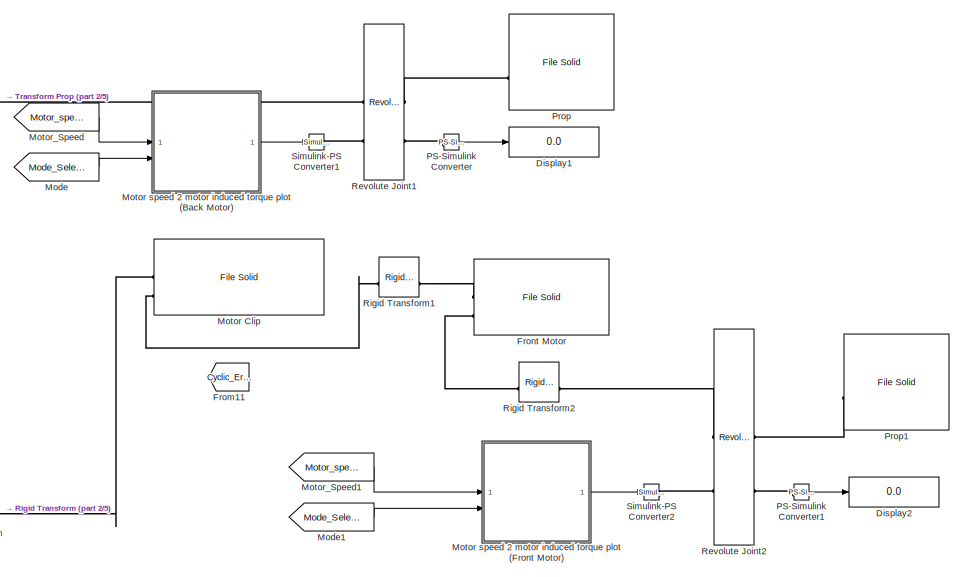
[diagram: root canvas - part 1/5, top center region]
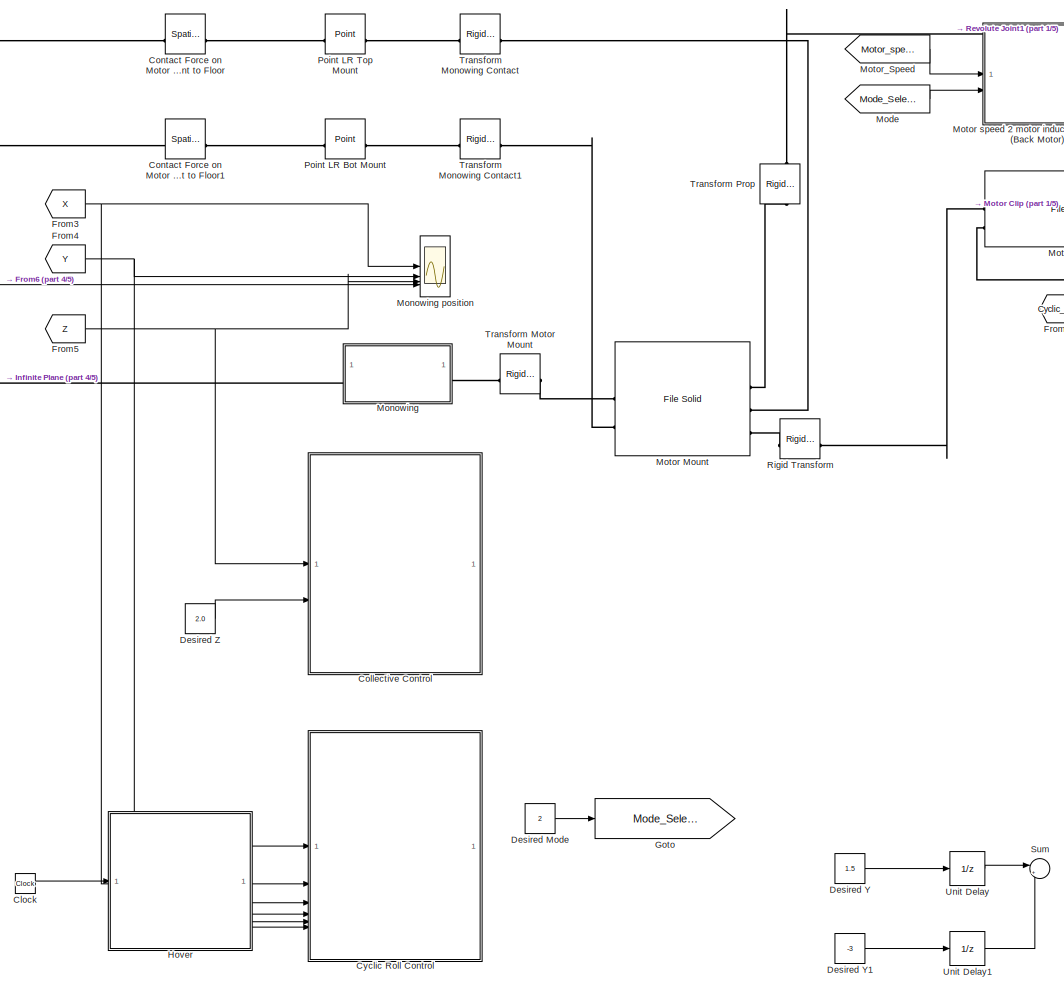
[diagram: root canvas - part 2/5, middle left region]
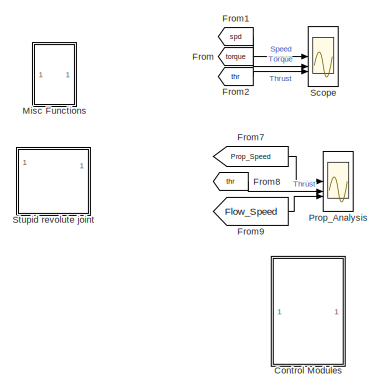
[diagram: root canvas - part 3/5, top right region]
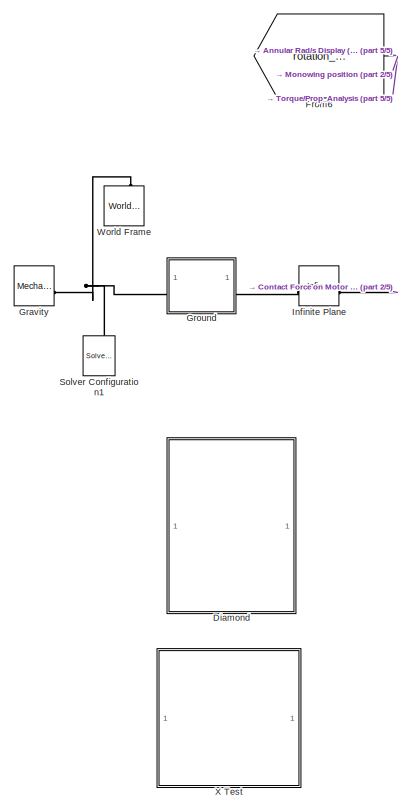
[diagram: root canvas - part 4/5, middle left region]
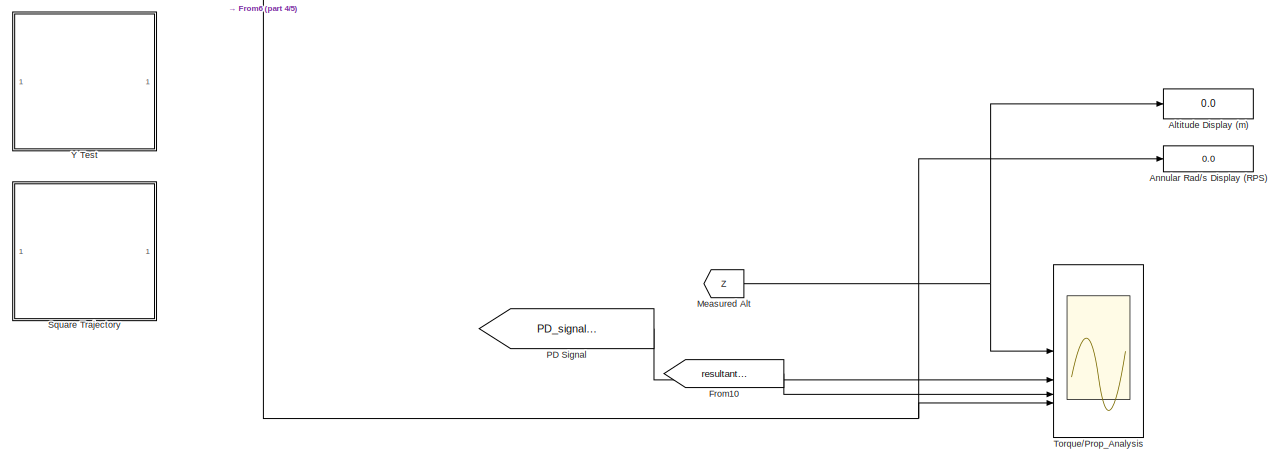
[diagram: root canvas - part 5/5, bottom left region]
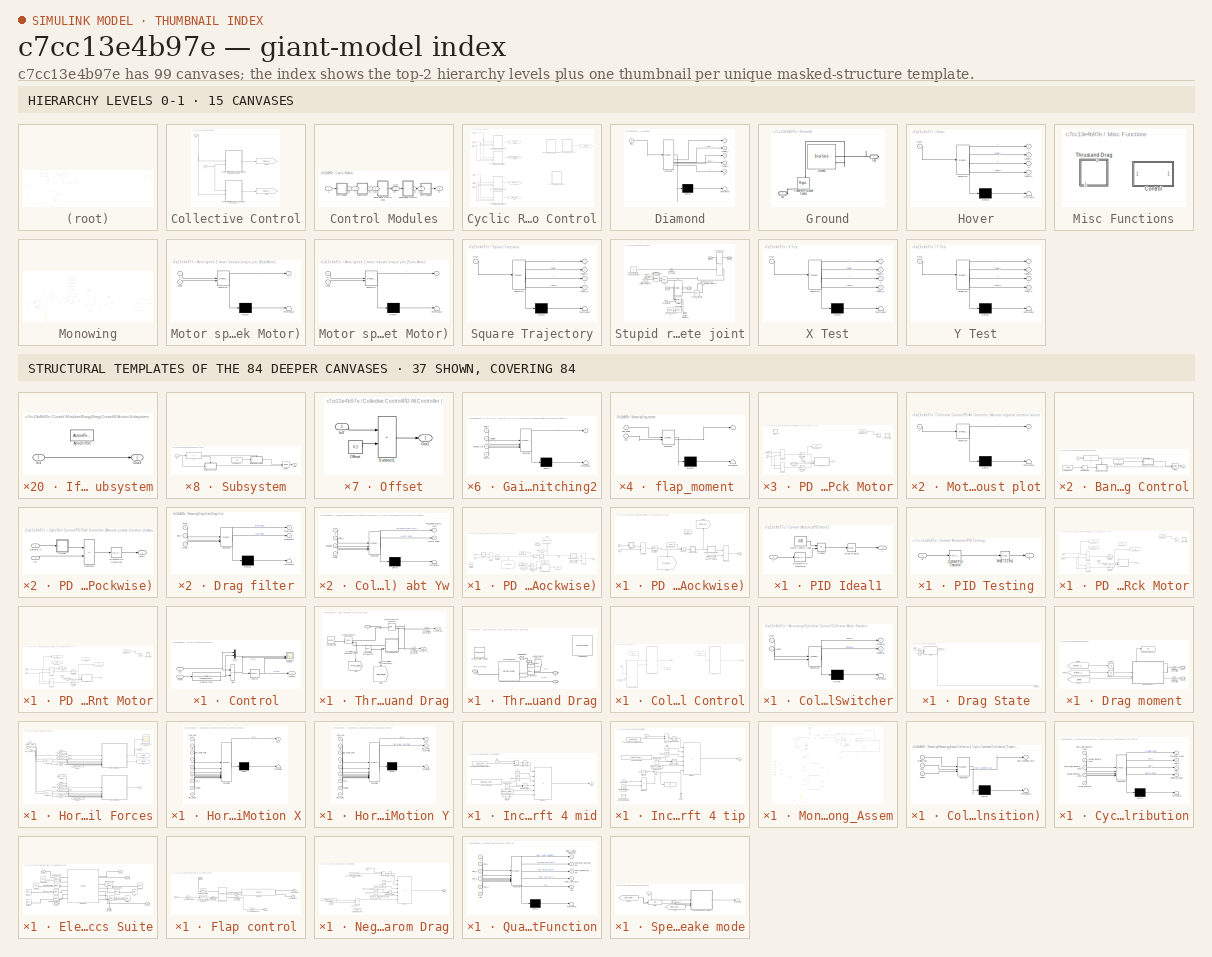
[diagram: thumbnail index - top-2 hierarchy levels (15 canvases) + 37 structural-template representatives of the remaining 84 canvases]
MODEL slx_c7cc13e4b97e
KIND model
CONFIG AbsTol = 1e-3
CONFIG EnableMultiTasking = off
CONFIG FixedStep = auto
CONFIG MaxStep = 1e-3
CONFIG MinStep = auto
CONFIG RelTol = 1e-3
CONFIG SampleTimeConstraint = Unconstrained
CONFIG SolverName = ode23t
CONFIG StartTime = 0.0
CONFIG StopTime = 0
BLOCK [Display] Altitude Display (m)
  Decimation = 1
BLOCK [Display] Annular Rad//s Display (RPS)
  Decimation = 1
BLOCK [Clock] Clock
BLOCK [SubSystem] Collective Control
BLOCK [Goto] Collective Control/Goto
  GotoTag = Torque_from_motor_positive
  TagVisibility = global
BLOCK [Goto] Collective Control/Goto4
  GotoTag = Torque_from_motor_negative
  TagVisibility = global
BLOCK [Inport] Collective Control/In1
BLOCK [SubSystem] Collective Control/PD Alt Controller (Monoco negative direction counter clockwise)
BLOCK [Reference] Collective Control/PD Alt Controller (Monoco negative direction counter clockwise)/Discrete PD Controller  REF=slpidlib/PID Controller
  LibrarySourceBlock = simulink/Discrete/Discrete PID Controller
  SourceBlock = slpidlib/PID Controller
  SourceType = PID 1dof
BLOCK [Reference] Collective Control/PD Alt Controller (Monoco negative direction counter clockwise)/Discrete PD Controller1  REF=slpidlib/PID Controller
  Commented = on
  LibrarySourceBlock = simulink/Discrete/Discrete PID Controller
  SourceBlock = slpidlib/PID Controller
  SourceType = PID 1dof
BLOCK [Display] Collective Control/PD Alt Controller (Monoco negative direction counter clockwise)/Display
  Decimation = 1
BLOCK [Display] Collective Control/PD Alt Controller (Monoco negative direction counter clockwise)/Display1
  Decimation = 1
BLOCK [Display] Collective Control/PD Alt Controller (Monoco negative direction counter clockwise)/Display2
  Decimation = 1
BLOCK [Constant] Collective Control/PD Alt Controller (Monoco negative direction counter clockwise)/Error Motor step input
  Value = 300
BLOCK [From] Collective Control/PD Alt Controller (Monoco negative direction counter clockwise)/From
  GotoTag = Cyclic_Error
  TagVisibility = global
BLOCK [From] Collective Control/PD Alt Controller (Monoco negative direction counter clockwise)/From1
  GotoTag = motor_pulse
  TagVisibility = global
BLOCK [Goto] Collective Control/PD Alt Controller (Monoco negative direction counter clockwise)/Goto
  GotoTag = PD_signal_negative_direction
  NameLocation = left
  TagVisibility = global
BLOCK [Goto] Collective Control/PD Alt Controller (Monoco negative direction counter clockwise)/Goto1
  GotoTag = Motor_speed_dihedral
  NameLocation = right
  TagVisibility = global
BLOCK [Inport] Collective Control/PD Alt Controller (Monoco negative direction counter clockwise)/In1
BLOCK [Inport] Collective Control/PD Alt Controller (Monoco negative direction counter clockwise)/In2
  Port = 2
BLOCK [SubSystem] Collective Control/PD Alt Controller (Monoco negative direction counter clockwise)/Low Pass Filter
BLOCK [If] Collective Control/PD Alt Controller (Monoco negative direction counter clockwise)/Low Pass Filter/If
  IfExpression = u1<(-2200)
BLOCK [SubSystem] Collective Control/PD Alt Controller (Monoco negative direction counter clockwise)/Low Pass Filter/If Action Subsystem
  TreatAsAtomicUnit = on
BLOCK [ActionPort] Collective Control/PD Alt Controller (Monoco negative direction counter clockwise)/Low Pass Filter/If Action Subsystem/Action Port
  ActionPortLabel = else
BLOCK [Inport] Collective Control/PD Alt Controller (Monoco negative direction counter clockwise)/Low Pass Filter/If Action Subsystem/In1
BLOCK [Outport] Collective Control/PD Alt Controller (Monoco negative direction counter clockwise)/Low Pass Filter/If Action Subsystem/Out1
BLOCK [SubSystem] Collective Control/PD Alt Controller (Monoco negative direction counter clockwise)/Low Pass Filter/If Action Subsystem1
  TreatAsAtomicUnit = on
BLOCK [ActionPort] Collective Control/PD Alt Controller (Monoco negative direction counter clockwise)/Low Pass Filter/If Action Subsystem1/Action Port
  ActionPortLabel = if(u1<(-2200))
BLOCK [Inport] Collective Control/PD Alt Controller (Monoco negative direction counter clockwise)/Low Pass Filter/If Action Subsystem1/In1
BLOCK [Outport] Collective Control/PD Alt Controller (Monoco negative direction counter clockwise)/Low Pass Filter/If Action Subsystem1/Out1
BLOCK [Inport] Collective Control/PD Alt Controller (Monoco negative direction counter clockwise)/Low Pass Filter/In2
BLOCK [Constant] Collective Control/PD Alt Controller (Monoco negative direction counter clockwise)/Low Pass Filter/Maximum Allowable
  Value = -2200
BLOCK [Merge] Collective Control/PD Alt Controller (Monoco negative direction counter clockwise)/Low Pass Filter/Merge
BLOCK [Outport] Collective Control/PD Alt Controller (Monoco negative direction counter clockwise)/Low Pass Filter/u
BLOCK [Constant] Collective Control/PD Alt Controller (Monoco negative direction counter clockwise)/Monoco_Radius
  Value = monoco_radius
BLOCK [SubSystem] Collective Control/PD Alt Controller (Monoco negative direction counter clockwise)/Motor Pulsing Filter
  ErrorFcn = Stateflow.Translate.translate
  LibrarySourceBlock = simulink/User-Defined\nFunctions/MATLAB Function
  PermitHierarchicalResolution = ExplicitOnly
  SFBlockType = MATLAB Function
  TreatAsAtomicUnit = on
BLOCK [Demux] Collective Control/PD Alt Controller (Monoco negative direction counter clockwise)/Motor Pulsing Filter/ Demux 
  Outputs = 1
BLOCK [S-Function] Collective Control/PD Alt Controller (Monoco negative direction counter clockwise)/Motor Pulsing Filter/ SFunction 
  EnableBusSupport = on
  FunctionName = sf_sfun
  PortCounts = [2 2]
  SFcnIsStateOwnerBlock = off
  SFunctionDeploymentMode = off
  Tag = Stateflow S-Function 24
BLOCK [Terminator] Collective Control/PD Alt Controller (Monoco negative direction counter clockwise)/Motor Pulsing Filter/ Terminator 
BLOCK [Inport] Collective Control/PD Alt Controller (Monoco negative direction counter clockwise)/Motor Pulsing Filter/toggle
  Port = 2
BLOCK [Inport] Collective Control/PD Alt Controller (Monoco negative direction counter clockwise)/Motor Pulsing Filter/u
BLOCK [Outport] Collective Control/PD Alt Controller (Monoco negative direction counter clockwise)/Motor Pulsing Filter/y
BLOCK [Constant] Collective Control/PD Alt Controller (Monoco negative direction counter clockwise)/Motor Rad//S
  Value = -2290
BLOCK [SubSystem] Collective Control/PD Alt Controller (Monoco negative direction counter clockwise)/Motor speed 2 thrust plot
  ErrorFcn = Stateflow.Translate.translate
  LibrarySourceBlock = simulink/User-Defined\nFunctions/MATLAB Function
  PermitHierarchicalResolution = ExplicitOnly
  SFBlockType = MATLAB Function
  TreatAsAtomicUnit = on
BLOCK [Demux] Collective Control/PD Alt Controller (Monoco negative direction counter clockwise)/Motor speed 2 thrust plot/ Demux 
  Outputs = 1
BLOCK [S-Function] Collective Control/PD Alt Controller (Monoco negative direction counter clockwise)/Motor speed 2 thrust plot/ SFunction 
  EnableBusSupport = on
  FunctionName = sf_sfun
  PortCounts = [1 2]
  SFcnIsStateOwnerBlock = off
  SFunctionDeploymentMode = off
  Tag = Stateflow S-Function 2
BLOCK [Terminator] Collective Control/PD Alt Controller (Monoco negative direction counter clockwise)/Motor speed 2 thrust plot/ Terminator 
BLOCK [Inport] Collective Control/PD Alt Controller (Monoco negative direction counter clockwise)/Motor speed 2 thrust plot/u
BLOCK [Outport] Collective Control/PD Alt Controller (Monoco negative direction counter clockwise)/Motor speed 2 thrust plot/y
BLOCK [Constant] Collective Control/PD Alt Controller (Monoco negative direction counter clockwise)/Motor step input
  Value = -2200
BLOCK [SubSystem] Collective Control/PD Alt Controller (Monoco negative direction counter clockwise)/Offset
BLOCK [Inport] Collective Control/PD Alt Controller (Monoco negative direction counter clockwise)/Offset/In2
BLOCK [Constant] Collective Control/PD Alt Controller (Monoco negative direction counter clockwise)/Offset/Offset
  Value = 0.2
BLOCK [Outport] Collective Control/PD Alt Controller (Monoco negative direction counter clockwise)/Offset/Out1
BLOCK [Sum] Collective Control/PD Alt Controller (Monoco negative direction counter clockwise)/Offset/Subtract1
  IconShape = rectangular
BLOCK [Outport] Collective Control/PD Alt Controller (Monoco negative direction counter clockwise)/Out1
BLOCK [Product] Collective Control/PD Alt Controller (Monoco negative direction counter clockwise)/Product1
BLOCK [Product] Collective Control/PD Alt Controller (Monoco negative direction counter clockwise)/Product2
BLOCK [Product] Collective Control/PD Alt Controller (Monoco negative direction counter clockwise)/Product3
BLOCK [Sum] Collective Control/PD Alt Controller (Monoco negative direction counter clockwise)/Subtract1
  IconShape = rectangular
  Inputs = +-
BLOCK [Sum] Collective Control/PD Alt Controller (Monoco negative direction counter clockwise)/Sum
  Inputs = |++
BLOCK [SubSystem] Collective Control/PD Alt Controller (Monoco positve direction clockwise)
BLOCK [Reference] Collective Control/PD Alt Controller (Monoco positve direction clockwise)/Discrete PD Controller  REF=slpidlib/PID Controller
  LibrarySourceBlock = simulink/Discrete/Discrete PID Controller
  SourceBlock = slpidlib/PID Controller
  SourceType = PID 1dof
BLOCK [Goto] Collective Control/PD Alt Controller (Monoco positve direction clockwise)/Goto
  GotoTag = PD_signal_positive_direction
  NameLocation = left
  TagVisibility = global
BLOCK [Goto] Collective Control/PD Alt Controller (Monoco positve direction clockwise)/Goto1
  GotoTag = Motor_speed_anhedral
  NameLocation = right
  TagVisibility = global
BLOCK [Inport] Collective Control/PD Alt Controller (Monoco positve direction clockwise)/In1
  Port = 2
BLOCK [Inport] Collective Control/PD Alt Controller (Monoco positve direction clockwise)/In2
BLOCK [SubSystem] Collective Control/PD Alt Controller (Monoco positve direction clockwise)/Low Pass Filter
BLOCK [If] Collective Control/PD Alt Controller (Monoco positve direction clockwise)/Low Pass Filter/If
  IfExpression = u1>(2300)
BLOCK [SubSystem] Collective Control/PD Alt Controller (Monoco positve direction clockwise)/Low Pass Filter/If Action Subsystem
  TreatAsAtomicUnit = on
BLOCK [ActionPort] Collective Control/PD Alt Controller (Monoco positve direction clockwise)/Low Pass Filter/If Action Subsystem/Action Port
  ActionPortLabel = else
BLOCK [Inport] Collective Control/PD Alt Controller (Monoco positve direction clockwise)/Low Pass Filter/If Action Subsystem/In1
BLOCK [Outport] Collective Control/PD Alt Controller (Monoco positve direction clockwise)/Low Pass Filter/If Action Subsystem/Out1
BLOCK [SubSystem] Collective Control/PD Alt Controller (Monoco positve direction clockwise)/Low Pass Filter/If Action Subsystem1
  TreatAsAtomicUnit = on
BLOCK [ActionPort] Collective Control/PD Alt Controller (Monoco positve direction clockwise)/Low Pass Filter/If Action Subsystem1/Action Port
  ActionPortLabel = if(u1>(2300))
BLOCK [Inport] Collective Control/PD Alt Controller (Monoco positve direction clockwise)/Low Pass Filter/If Action Subsystem1/In1
BLOCK [Outport] Collective Control/PD Alt Controller (Monoco positve direction clockwise)/Low Pass Filter/If Action Subsystem1/Out1
BLOCK [Inport] Collective Control/PD Alt Controller (Monoco positve direction clockwise)/Low Pass Filter/In2
BLOCK [Constant] Collective Control/PD Alt Controller (Monoco positve direction clockwise)/Low Pass Filter/Maximum Allowable
  Value = 2300
BLOCK [Merge] Collective Control/PD Alt Controller (Monoco positve direction clockwise)/Low Pass Filter/Merge
BLOCK [Outport] Collective Control/PD Alt Controller (Monoco positve direction clockwise)/Low Pass Filter/u
BLOCK [Constant] Collective Control/PD Alt Controller (Monoco positve direction clockwise)/Monoco_Radius
  Value = monoco_radius
BLOCK [Constant] Collective Control/PD Alt Controller (Monoco positve direction clockwise)/Motor Rad//S
  Value = 2290
BLOCK [SubSystem] Collective Control/PD Alt Controller (Monoco positve direction clockwise)/Motor speed 2 thrust plot
  ErrorFcn = Stateflow.Translate.translate
  LibrarySourceBlock = simulink/User-Defined\nFunctions/MATLAB Function
  PermitHierarchicalResolution = ExplicitOnly
  SFBlockType = MATLAB Function
  TreatAsAtomicUnit = on
BLOCK [Demux] Collective Control/PD Alt Controller (Monoco positve direction clockwise)/Motor speed 2 thrust plot/ Demux 
  Outputs = 1
BLOCK [S-Function] Collective Control/PD Alt Controller (Monoco positve direction clockwise)/Motor speed 2 thrust plot/ SFunction 
  EnableBusSupport = on
  FunctionName = sf_sfun
  PortCounts = [1 2]
  SFcnIsStateOwnerBlock = off
  SFunctionDeploymentMode = off
  Tag = Stateflow S-Function 8
BLOCK [Terminator] Collective Control/PD Alt Controller (Monoco positve direction clockwise)/Motor speed 2 thrust plot/ Terminator 
BLOCK [Inport] Collective Control/PD Alt Controller (Monoco positve direction clockwise)/Motor speed 2 thrust plot/u
BLOCK [Outport] Collective Control/PD Alt Controller (Monoco positve direction clockwise)/Motor speed 2 thrust plot/y
BLOCK [Constant] Collective Control/PD Alt Controller (Monoco positve direction clockwise)/Motor step input
  Value = 2300
BLOCK [SubSystem] Collective Control/PD Alt Controller (Monoco positve direction clockwise)/Offset
BLOCK [Inport] Collective Control/PD Alt Controller (Monoco positve direction clockwise)/Offset/In2
BLOCK [Constant] Collective Control/PD Alt Controller (Monoco positve direction clockwise)/Offset/Offset
  Value = 0.2
BLOCK [Outport] Collective Control/PD Alt Controller (Monoco positve direction clockwise)/Offset/Out1
BLOCK [Sum] Collective Control/PD Alt Controller (Monoco positve direction clockwise)/Offset/Subtract1
  IconShape = rectangular
BLOCK [Outport] Collective Control/PD Alt Controller (Monoco positve direction clockwise)/Out1
BLOCK [Product] Collective Control/PD Alt Controller (Monoco positve direction clockwise)/Product2
BLOCK [Product] Collective Control/PD Alt Controller (Monoco positve direction clockwise)/Product3
BLOCK [Sum] Collective Control/PD Alt Controller (Monoco positve direction clockwise)/Subtract1
  IconShape = rectangular
  Inputs = +-
BLOCK [Inport] Collective Control/Z
  Port = 2
BLOCK [Reference] Contact Force on Motor Mount to Floor  REF=sm_lib/Forces and
Torques/Spatial
Contact Force
  NameLocation = top
  SourceBlock = sm_lib/Forces and\nTorques/Spatial\nContact Force
  SourceType = Spatial\nContact Force
BLOCK [Reference] Contact Force on Motor Mount to Floor1  REF=sm_lib/Forces and
Torques/Spatial
Contact Force
  NameLocation = top
  SourceBlock = sm_lib/Forces and\nTorques/Spatial\nContact Force
  SourceType = Spatial\nContact Force
BLOCK [SubSystem] Control Modules
BLOCK [SubSystem] Control Modules/Bang Bang Control
BLOCK [SubSystem] Control Modules/Bang Bang Control Ideal
BLOCK [Constant] Control Modules/Bang Bang Control Ideal/Desired RPS1
  Value = -0.01475
BLOCK [Constant] Control Modules/Bang Bang Control Ideal/Desired RPS2
  Value = -0.0145
BLOCK [If] Control Modules/Bang Bang Control Ideal/If
  IfExpression = u1 > 1
BLOCK [SubSystem] Control Modules/Bang Bang Control Ideal/If Action Subsystem
  TreatAsAtomicUnit = on
BLOCK [ActionPort] Control Modules/Bang Bang Control Ideal/If Action Subsystem/Action Port
  ActionPortLabel = else
BLOCK [Inport] Control Modules/Bang Bang Control Ideal/If Action Subsystem/In1
BLOCK [Outport] Control Modules/Bang Bang Control Ideal/If Action Subsystem/Out1
BLOCK [SubSystem] Control Modules/Bang Bang Control Ideal/If Action Subsystem1
  TreatAsAtomicUnit = on
BLOCK [ActionPort] Control Modules/Bang Bang Control Ideal/If Action Subsystem1/Action Port
  ActionPortLabel = if(u1 > 1)
BLOCK [Inport] Control Modules/Bang Bang Control Ideal/If Action Subsystem1/In1
BLOCK [Outport] Control Modules/Bang Bang Control Ideal/If Action Subsystem1/Out1
BLOCK [Inport] Control Modules/Bang Bang Control Ideal/In1
BLOCK [Merge] Control Modules/Bang Bang Control Ideal/Merge
BLOCK [Outport] Control Modules/Bang Bang Control Ideal/Out1
BLOCK [ZeroOrderHold] Control Modules/Bang Bang Control Ideal/Zero-Order Hold
  SampleTime = -1
BLOCK [Constant] Control Modules/Bang Bang Control/Desired RPS1
  Value = -0.02
BLOCK [Constant] Control Modules/Bang Bang Control/Desired RPS2
  Value = 0
BLOCK [If] Control Modules/Bang Bang Control/If
  IfExpression = u1 > 1
BLOCK [SubSystem] Control Modules/Bang Bang Control/If Action Subsystem
  TreatAsAtomicUnit = on
BLOCK [ActionPort] Control Modules/Bang Bang Control/If Action Subsystem/Action Port
  ActionPortLabel = else
BLOCK [Inport] Control Modules/Bang Bang Control/If Action Subsystem/In1
BLOCK [Outport] Control Modules/Bang Bang Control/If Action Subsystem/Out1
BLOCK [SubSystem] Control Modules/Bang Bang Control/If Action Subsystem1
  TreatAsAtomicUnit = on
BLOCK [ActionPort] Control Modules/Bang Bang Control/If Action Subsystem1/Action Port
  ActionPortLabel = if(u1 > 1)
BLOCK [Inport] Control Modules/Bang Bang Control/If Action Subsystem1/In1
BLOCK [Outport] Control Modules/Bang Bang Control/If Action Subsystem1/Out1
BLOCK [Inport] Control Modules/Bang Bang Control/In1
BLOCK [Merge] Control Modules/Bang Bang Control/Merge
BLOCK [Outport] Control Modules/Bang Bang Control/Out1
BLOCK [ZeroOrderHold] Control Modules/Bang Bang Control/Zero-Order Hold
  SampleTime = -1
BLOCK [Inport] Control Modules/In2
  Port = 2
BLOCK [Inport] Control Modules/In3
  Port = 3
BLOCK [Inport] Control Modules/In4
  Port = 4
BLOCK [Outport] Control Modules/Out2
  Port = 2
BLOCK [Outport] Control Modules/Out3
  Port = 3
BLOCK [Outport] Control Modules/Out4
  Port = 4
BLOCK [SubSystem] Control Modules/PID Ideal1
BLOCK [Reference] Control Modules/PID Ideal1/Discrete PID Controller  REF=slpidlib/PID Controller
  LibrarySourceBlock = simulink/Discrete/Discrete PID Controller
  SourceBlock = slpidlib/PID Controller
  SourceType = PID 1dof
BLOCK [Constant] Control Modules/PID Ideal1/Motor Control Input
  Value = 0.03
BLOCK [Product] Control Modules/PID Ideal1/Product
BLOCK [Reference] Control Modules/PID Ideal1/Wrap To Zero2  REF=simulink/Discontinuities/Wrap To Zero
  SourceBlock = simulink/Discontinuities/Wrap To Zero
  SourceType = Wrap To Zero
BLOCK [Outport] Control Modules/PID Ideal1/Y
BLOCK [Inport] Control Modules/PID Ideal1/u
BLOCK [SubSystem] Control Modules/PID Testing
BLOCK [Reference] Control Modules/PID Testing/Discrete PID Controller  REF=slpidlib/PID Controller
  LibrarySourceBlock = simulink/Discrete/Discrete PID Controller
  SourceBlock = slpidlib/PID Controller
  SourceType = PID 1dof
BLOCK [Reference] Control Modules/PID Testing/Wrap To Zero2  REF=simulink/Discontinuities/Wrap To Zero
  SourceBlock = simulink/Discontinuities/Wrap To Zero
  SourceType = Wrap To Zero
BLOCK [Outport] Control Modules/PID Testing/Y
BLOCK [Inport] Control Modules/PID Testing/u
BLOCK [SubSystem] Control Modules/Subsystem
BLOCK [Constant] Control Modules/Subsystem/Desired RPS1
  Value = -10
BLOCK [If] Control Modules/Subsystem/If
  IfExpression = u1<(-40)
BLOCK [SubSystem] Control Modules/Subsystem/If Action Subsystem
  TreatAsAtomicUnit = on
BLOCK [ActionPort] Control Modules/Subsystem/If Action Subsystem/Action Port
  ActionPortLabel = else
BLOCK [Inport] Control Modules/Subsystem/If Action Subsystem/In1
BLOCK [Outport] Control Modules/Subsystem/If Action Subsystem/Out1
BLOCK [SubSystem] Control Modules/Subsystem/If Action Subsystem1
  TreatAsAtomicUnit = on
BLOCK [ActionPort] Control Modules/Subsystem/If Action Subsystem1/Action Port
  ActionPortLabel = if(u1<(-40))
BLOCK [Inport] Control Modules/Subsystem/If Action Subsystem1/In1
BLOCK [Outport] Control Modules/Subsystem/If Action Subsystem1/Out1
BLOCK [Inport] Control Modules/Subsystem/In2
BLOCK [Merge] Control Modules/Subsystem/Merge
BLOCK [Outport] Control Modules/Subsystem/Out1
BLOCK [Outport] Control Modules/Y
BLOCK [Outport] Control Modules/Y1
  Port = 5
BLOCK [Inport] Control Modules/u
BLOCK [Inport] Control Modules/u1
  Port = 5
BLOCK [SubSystem] Cyclic Roll Control
BLOCK [Goto] Cyclic Roll Control/Goto
  Commented = on
  GotoTag = roll_gain_anhedral
  TagVisibility = global
BLOCK [Goto] Cyclic Roll Control/Goto1
  GotoTag = pitch_gain_dihedral_Back
  TagVisibility = global
BLOCK [Goto] Cyclic Roll Control/Goto2
  GotoTag = pitch_gain_dihedral_Front
  TagVisibility = global
BLOCK [Goto] Cyclic Roll Control/Goto3
  GotoTag = roll_gain_dihedral_Back
  TagVisibility = global
BLOCK [Goto] Cyclic Roll Control/Goto4
  GotoTag = roll_gain_dihedral_Front
  TagVisibility = global
BLOCK [SubSystem] Cyclic Roll Control/PD Pitch Controller (Monoco negative direction counter clockwise) Back Motor
BLOCK [Display] Cyclic Roll Control/PD Pitch Controller (Monoco negative direction counter clockwise) Back Motor/Deg Angle2
  Decimation = 1
BLOCK [From] Cyclic Roll Control/PD Pitch Controller (Monoco negative direction counter clockwise) Back Motor/From1
  GotoTag = Body_Roll
  TagVisibility = global
BLOCK [SubSystem] Cyclic Roll Control/PD Pitch Controller (Monoco negative direction counter clockwise) Back Motor/Gain Switching2
  ErrorFcn = Stateflow.Translate.translate
  LibrarySourceBlock = simulink/User-Defined\nFunctions/MATLAB Function
  PermitHierarchicalResolution = ExplicitOnly
  SFBlockType = MATLAB Function
  TreatAsAtomicUnit = on
BLOCK [Demux] Cyclic Roll Control/PD Pitch Controller (Monoco negative direction counter clockwise) Back Motor/Gain Switching2/ Demux 
  Outputs = 1
BLOCK [S-Function] Cyclic Roll Control/PD Pitch Controller (Monoco negative direction counter clockwise) Back Motor/Gain Switching2/ SFunction 
  EnableBusSupport = on
  FunctionName = sf_sfun
  PortCounts = [4 2]
  SFcnIsStateOwnerBlock = off
  SFunctionDeploymentMode = off
  Tag = Stateflow S-Function 29
BLOCK [Terminator] Cyclic Roll Control/PD Pitch Controller (Monoco negative direction counter clockwise) Back Motor/Gain Switching2/ Terminator 
BLOCK [Inport] Cyclic Roll Control/PD Pitch Controller (Monoco negative direction counter clockwise) Back Motor/Gain Switching2/Toggle
  Port = 2
BLOCK [Inport] Cyclic Roll Control/PD Pitch Controller (Monoco negative direction counter clockwise) Back Motor/Gain Switching2/aggro
BLOCK [Inport] Cyclic Roll Control/PD Pitch Controller (Monoco negative direction counter clockwise) Back Motor/Gain Switching2/annular_roll
  Port = 3
BLOCK [Inport] Cyclic Roll Control/PD Pitch Controller (Monoco negative direction counter clockwise) Back Motor/Gain Switching2/gentle
  Port = 4
BLOCK [Outport] Cyclic Roll Control/PD Pitch Controller (Monoco negative direction counter clockwise) Back Motor/Gain Switching2/y
BLOCK [Inport] Cyclic Roll Control/PD Pitch Controller (Monoco negative direction counter clockwise) Back Motor/In2
  Port = 2
BLOCK [SubSystem] Cyclic Roll Control/PD Pitch Controller (Monoco negative direction counter clockwise) Back Motor/Low Pass Filter
  Commented = on
BLOCK [If] Cyclic Roll Control/PD Pitch Controller (Monoco negative direction counter clockwise) Back Motor/Low Pass Filter/If
  IfExpression = u1<(-2300)
BLOCK [SubSystem] Cyclic Roll Control/PD Pitch Controller (Monoco negative direction counter clockwise) Back Motor/Low Pass Filter/If Action Subsystem
  TreatAsAtomicUnit = on
BLOCK [ActionPort] Cyclic Roll Control/PD Pitch Controller (Monoco negative direction counter clockwise) Back Motor/Low Pass Filter/If Action Subsystem/Action Port
BLOCK [Inport] Cyclic Roll Control/PD Pitch Controller (Monoco negative direction counter clockwise) Back Motor/Low Pass Filter/If Action Subsystem/In1
BLOCK [Outport] Cyclic Roll Control/PD Pitch Controller (Monoco negative direction counter clockwise) Back Motor/Low Pass Filter/If Action Subsystem/Out1
BLOCK [SubSystem] Cyclic Roll Control/PD Pitch Controller (Monoco negative direction counter clockwise) Back Motor/Low Pass Filter/If Action Subsystem1
  TreatAsAtomicUnit = on
BLOCK [ActionPort] Cyclic Roll Control/PD Pitch Controller (Monoco negative direction counter clockwise) Back Motor/Low Pass Filter/If Action Subsystem1/Action Port
BLOCK [Inport] Cyclic Roll Control/PD Pitch Controller (Monoco negative direction counter clockwise) Back Motor/Low Pass Filter/If Action Subsystem1/In1
BLOCK [Outport] Cyclic Roll Control/PD Pitch Controller (Monoco negative direction counter clockwise) Back Motor/Low Pass Filter/If Action Subsystem1/Out1
BLOCK [Inport] Cyclic Roll Control/PD Pitch Controller (Monoco negative direction counter clockwise) Back Motor/Low Pass Filter/In2
BLOCK [Constant] Cyclic Roll Control/PD Pitch Controller (Monoco negative direction counter clockwise) Back Motor/Low Pass Filter/Maximum Allowable
  Value = -2300
BLOCK [Merge] Cyclic Roll Control/PD Pitch Controller (Monoco negative direction counter clockwise) Back Motor/Low Pass Filter/Merge
BLOCK [Outport] Cyclic Roll Control/PD Pitch Controller (Monoco negative direction counter clockwise) Back Motor/Low Pass Filter/u
BLOCK [Constant] Cyclic Roll Control/PD Pitch Controller (Monoco negative direction counter clockwise) Back Motor/Motor step input
  Commented = on
  Value = -2300
BLOCK [SubSystem] Cyclic Roll Control/PD Pitch Controller (Monoco negative direction counter clockwise) Back Motor/Offset
BLOCK [Inport] Cyclic Roll Control/PD Pitch Controller (Monoco negative direction counter clockwise) Back Motor/Offset/In2
BLOCK [Constant] Cyclic Roll Control/PD Pitch Controller (Monoco negative direction counter clockwise) Back Motor/Offset/Offset
  Value = 0.2
BLOCK [Outport] Cyclic Roll Control/PD Pitch Controller (Monoco negative direction counter clockwise) Back Motor/Offset/Out1
BLOCK [Sum] Cyclic Roll Control/PD Pitch Controller (Monoco negative direction counter clockwise) Back Motor/Offset/Subtract1
  IconShape = rectangular
BLOCK [Reference] Cyclic Roll Control/PD Pitch Controller (Monoco negative direction counter clockwise) Back Motor/PD Controller (aggro)  REF=slpidlib/PID Controller
  LibrarySourceBlock = simulink/Discrete/Discrete PID Controller
  SourceBlock = slpidlib/PID Controller
  SourceType = PID 1dof
BLOCK [Reference] Cyclic Roll Control/PD Pitch Controller (Monoco negative direction counter clockwise) Back Motor/PD Controller (gentle)  REF=slpidlib/PID Controller
  LibrarySourceBlock = simulink/Discrete/Discrete PID Controller
  SourceBlock = slpidlib/PID Controller
  SourceType = PID 1dof
BLOCK [Product] Cyclic Roll Control/PD Pitch Controller (Monoco negative direction counter clockwise) Back Motor/Product3
  Commented = on
BLOCK [Inport] Cyclic Roll Control/PD Pitch Controller (Monoco negative direction counter clockwise) Back Motor/Setpoint X
BLOCK [Sum] Cyclic Roll Control/PD Pitch Controller (Monoco negative direction counter clockwise) Back Motor/Subtract1
  IconShape = rectangular
  Inputs = +-
BLOCK [Sum] Cyclic Roll Control/PD Pitch Controller (Monoco negative direction counter clockwise) Back Motor/Subtract2
  IconShape = rectangular
  Inputs = +-
BLOCK [Inport] Cyclic Roll Control/PD Pitch Controller (Monoco negative direction counter clockwise) Back Motor/Toggle
  Port = 3
BLOCK [Outport] Cyclic Roll Control/PD Pitch Controller (Monoco negative direction counter clockwise) Back Motor/y
BLOCK [SubSystem] Cyclic Roll Control/PD Pitch Controller (Monoco negative direction counter clockwise) Front Motor
BLOCK [Display] Cyclic Roll Control/PD Pitch Controller (Monoco negative direction counter clockwise) Front Motor/Deg Angle2
  Decimation = 1
BLOCK [From] Cyclic Roll Control/PD Pitch Controller (Monoco negative direction counter clockwise) Front Motor/From1
  GotoTag = Body_Roll
  TagVisibility = global
BLOCK [SubSystem] Cyclic Roll Control/PD Pitch Controller (Monoco negative direction counter clockwise) Front Motor/Gain Switching2
  ErrorFcn = Stateflow.Translate.translate
  LibrarySourceBlock = simulink/User-Defined\nFunctions/MATLAB Function
  PermitHierarchicalResolution = ExplicitOnly
  SFBlockType = MATLAB Function
  TreatAsAtomicUnit = on
BLOCK [Demux] Cyclic Roll Control/PD Pitch Controller (Monoco negative direction counter clockwise) Front Motor/Gain Switching2/ Demux 
  Outputs = 1
BLOCK [S-Function] Cyclic Roll Control/PD Pitch Controller (Monoco negative direction counter clockwise) Front Motor/Gain Switching2/ SFunction 
  EnableBusSupport = on
  FunctionName = sf_sfun
  PortCounts = [4 2]
  SFcnIsStateOwnerBlock = off
  SFunctionDeploymentMode = off
  Tag = Stateflow S-Function 23
BLOCK [Terminator] Cyclic Roll Control/PD Pitch Controller (Monoco negative direction counter clockwise) Front Motor/Gain Switching2/ Terminator 
BLOCK [Inport] Cyclic Roll Control/PD Pitch Controller (Monoco negative direction counter clockwise) Front Motor/Gain Switching2/Toggle
  Port = 2
BLOCK [Inport] Cyclic Roll Control/PD Pitch Controller (Monoco negative direction counter clockwise) Front Motor/Gain Switching2/aggro
BLOCK [Inport] Cyclic Roll Control/PD Pitch Controller (Monoco negative direction counter clockwise) Front Motor/Gain Switching2/annular_roll
  Port = 3
BLOCK [Inport] Cyclic Roll Control/PD Pitch Controller (Monoco negative direction counter clockwise) Front Motor/Gain Switching2/gentle
  Port = 4
BLOCK [Outport] Cyclic Roll Control/PD Pitch Controller (Monoco negative direction counter clockwise) Front Motor/Gain Switching2/y
BLOCK [Inport] Cyclic Roll Control/PD Pitch Controller (Monoco negative direction counter clockwise) Front Motor/In1
BLOCK [Inport] Cyclic Roll Control/PD Pitch Controller (Monoco negative direction counter clockwise) Front Motor/In2
  Port = 2
BLOCK [SubSystem] Cyclic Roll Control/PD Pitch Controller (Monoco negative direction counter clockwise) Front Motor/Low Pass Filter
  Commented = on
BLOCK [If] Cyclic Roll Control/PD Pitch Controller (Monoco negative direction counter clockwise) Front Motor/Low Pass Filter/If
  IfExpression = u1<(-2300)
BLOCK [SubSystem] Cyclic Roll Control/PD Pitch Controller (Monoco negative direction counter clockwise) Front Motor/Low Pass Filter/If Action Subsystem
  TreatAsAtomicUnit = on
BLOCK [ActionPort] Cyclic Roll Control/PD Pitch Controller (Monoco negative direction counter clockwise) Front Motor/Low Pass Filter/If Action Subsystem/Action Port
BLOCK [Inport] Cyclic Roll Control/PD Pitch Controller (Monoco negative direction counter clockwise) Front Motor/Low Pass Filter/If Action Subsystem/In1
BLOCK [Outport] Cyclic Roll Control/PD Pitch Controller (Monoco negative direction counter clockwise) Front Motor/Low Pass Filter/If Action Subsystem/Out1
BLOCK [SubSystem] Cyclic Roll Control/PD Pitch Controller (Monoco negative direction counter clockwise) Front Motor/Low Pass Filter/If Action Subsystem1
  TreatAsAtomicUnit = on
BLOCK [ActionPort] Cyclic Roll Control/PD Pitch Controller (Monoco negative direction counter clockwise) Front Motor/Low Pass Filter/If Action Subsystem1/Action Port
BLOCK [Inport] Cyclic Roll Control/PD Pitch Controller (Monoco negative direction counter clockwise) Front Motor/Low Pass Filter/If Action Subsystem1/In1
BLOCK [Outport] Cyclic Roll Control/PD Pitch Controller (Monoco negative direction counter clockwise) Front Motor/Low Pass Filter/If Action Subsystem1/Out1
BLOCK [Inport] Cyclic Roll Control/PD Pitch Controller (Monoco negative direction counter clockwise) Front Motor/Low Pass Filter/In2
BLOCK [Constant] Cyclic Roll Control/PD Pitch Controller (Monoco negative direction counter clockwise) Front Motor/Low Pass Filter/Maximum Allowable
  Value = -2300
BLOCK [Merge] Cyclic Roll Control/PD Pitch Controller (Monoco negative direction counter clockwise) Front Motor/Low Pass Filter/Merge
BLOCK [Outport] Cyclic Roll Control/PD Pitch Controller (Monoco negative direction counter clockwise) Front Motor/Low Pass Filter/u
BLOCK [Constant] Cyclic Roll Control/PD Pitch Controller (Monoco negative direction counter clockwise) Front Motor/Motor step input
  Commented = on
  Value = -2300
BLOCK [SubSystem] Cyclic Roll Control/PD Pitch Controller (Monoco negative direction counter clockwise) Front Motor/Offset
BLOCK [Inport] Cyclic Roll Control/PD Pitch Controller (Monoco negative direction counter clockwise) Front Motor/Offset/In2
BLOCK [Constant] Cyclic Roll Control/PD Pitch Controller (Monoco negative direction counter clockwise) Front Motor/Offset/Offset
  Value = 0.2
BLOCK [Outport] Cyclic Roll Control/PD Pitch Controller (Monoco negative direction counter clockwise) Front Motor/Offset/Out1
BLOCK [Sum] Cyclic Roll Control/PD Pitch Controller (Monoco negative direction counter clockwise) Front Motor/Offset/Subtract1
  IconShape = rectangular
BLOCK [Reference] Cyclic Roll Control/PD Pitch Controller (Monoco negative direction counter clockwise) Front Motor/PD Controller (aggro)  REF=slpidlib/PID Controller
  LibrarySourceBlock = simulink/Discrete/Discrete PID Controller
  SourceBlock = slpidlib/PID Controller
  SourceType = PID 1dof
BLOCK [Reference] Cyclic Roll Control/PD Pitch Controller (Monoco negative direction counter clockwise) Front Motor/PD Controller (gentle)  REF=slpidlib/PID Controller
  LibrarySourceBlock = simulink/Discrete/Discrete PID Controller
  SourceBlock = slpidlib/PID Controller
  SourceType = PID 1dof
BLOCK [Product] Cyclic Roll Control/PD Pitch Controller (Monoco negative direction counter clockwise) Front Motor/Product3
  Commented = on
BLOCK [Sum] Cyclic Roll Control/PD Pitch Controller (Monoco negative direction counter clockwise) Front Motor/Subtract1
  IconShape = rectangular
  Inputs = +-
BLOCK [Sum] Cyclic Roll Control/PD Pitch Controller (Monoco negative direction counter clockwise) Front Motor/Subtract2
  IconShape = rectangular
  Inputs = +-
BLOCK [Inport] Cyclic Roll Control/PD Pitch Controller (Monoco negative direction counter clockwise) Front Motor/Toggle
  Port = 3
BLOCK [Outport] Cyclic Roll Control/PD Pitch Controller (Monoco negative direction counter clockwise) Front Motor/y
BLOCK [SubSystem] Cyclic Roll Control/PD Pitch Controller (Monoco negative direction counter clockwise)2
  Commented = on
BLOCK [Display] Cyclic Roll Control/PD Pitch Controller (Monoco negative direction counter clockwise)2/Deg Angle2
  Decimation = 1
BLOCK [From] Cyclic Roll Control/PD Pitch Controller (Monoco negative direction counter clockwise)2/From1
  GotoTag = Body_Roll
  TagVisibility = global
BLOCK [SubSystem] Cyclic Roll Control/PD Pitch Controller (Monoco negative direction counter clockwise)2/Gain Switching2
  ErrorFcn = Stateflow.Translate.translate
  LibrarySourceBlock = simulink/User-Defined\nFunctions/MATLAB Function
  PermitHierarchicalResolution = ExplicitOnly
  SFBlockType = MATLAB Function
  TreatAsAtomicUnit = on
BLOCK [Demux] Cyclic Roll Control/PD Pitch Controller (Monoco negative direction counter clockwise)2/Gain Switching2/ Demux 
  Outputs = 1
BLOCK [S-Function] Cyclic Roll Control/PD Pitch Controller (Monoco negative direction counter clockwise)2/Gain Switching2/ SFunction 
  EnableBusSupport = on
  FunctionName = sf_sfun
  PortCounts = [4 2]
  SFcnIsStateOwnerBlock = off
  SFunctionDeploymentMode = off
  Tag = Stateflow S-Function 28
BLOCK [Terminator] Cyclic Roll Control/PD Pitch Controller (Monoco negative direction counter clockwise)2/Gain Switching2/ Terminator 
BLOCK [Inport] Cyclic Roll Control/PD Pitch Controller (Monoco negative direction counter clockwise)2/Gain Switching2/Toggle
  Port = 2
BLOCK [Inport] Cyclic Roll Control/PD Pitch Controller (Monoco negative direction counter clockwise)2/Gain Switching2/aggro
BLOCK [Inport] Cyclic Roll Control/PD Pitch Controller (Monoco negative direction counter clockwise)2/Gain Switching2/annular_roll
  Port = 3
BLOCK [Inport] Cyclic Roll Control/PD Pitch Controller (Monoco negative direction counter clockwise)2/Gain Switching2/gentle
  Port = 4
BLOCK [Outport] Cyclic Roll Control/PD Pitch Controller (Monoco negative direction counter clockwise)2/Gain Switching2/y
BLOCK [Inport] Cyclic Roll Control/PD Pitch Controller (Monoco negative direction counter clockwise)2/In1
BLOCK [Inport] Cyclic Roll Control/PD Pitch Controller (Monoco negative direction counter clockwise)2/In2
  Port = 2
BLOCK [SubSystem] Cyclic Roll Control/PD Pitch Controller (Monoco negative direction counter clockwise)2/Low Pass Filter
  Commented = on
BLOCK [If] Cyclic Roll Control/PD Pitch Controller (Monoco negative direction counter clockwise)2/Low Pass Filter/If
  IfExpression = u1<(-2300)
BLOCK [SubSystem] Cyclic Roll Control/PD Pitch Controller (Monoco negative direction counter clockwise)2/Low Pass Filter/If Action Subsystem
  TreatAsAtomicUnit = on
BLOCK [ActionPort] Cyclic Roll Control/PD Pitch Controller (Monoco negative direction counter clockwise)2/Low Pass Filter/If Action Subsystem/Action Port
BLOCK [Inport] Cyclic Roll Control/PD Pitch Controller (Monoco negative direction counter clockwise)2/Low Pass Filter/If Action Subsystem/In1
BLOCK [Outport] Cyclic Roll Control/PD Pitch Controller (Monoco negative direction counter clockwise)2/Low Pass Filter/If Action Subsystem/Out1
BLOCK [SubSystem] Cyclic Roll Control/PD Pitch Controller (Monoco negative direction counter clockwise)2/Low Pass Filter/If Action Subsystem1
  TreatAsAtomicUnit = on
BLOCK [ActionPort] Cyclic Roll Control/PD Pitch Controller (Monoco negative direction counter clockwise)2/Low Pass Filter/If Action Subsystem1/Action Port
BLOCK [Inport] Cyclic Roll Control/PD Pitch Controller (Monoco negative direction counter clockwise)2/Low Pass Filter/If Action Subsystem1/In1
BLOCK [Outport] Cyclic Roll Control/PD Pitch Controller (Monoco negative direction counter clockwise)2/Low Pass Filter/If Action Subsystem1/Out1
BLOCK [Inport] Cyclic Roll Control/PD Pitch Controller (Monoco negative direction counter clockwise)2/Low Pass Filter/In2
BLOCK [Constant] Cyclic Roll Control/PD Pitch Controller (Monoco negative direction counter clockwise)2/Low Pass Filter/Maximum Allowable
  Value = -2300
BLOCK [Merge] Cyclic Roll Control/PD Pitch Controller (Monoco negative direction counter clockwise)2/Low Pass Filter/Merge
BLOCK [Outport] Cyclic Roll Control/PD Pitch Controller (Monoco negative direction counter clockwise)2/Low Pass Filter/u
BLOCK [Constant] Cyclic Roll Control/PD Pitch Controller (Monoco negative direction counter clockwise)2/Motor step input
  Commented = on
  Value = -2300
BLOCK [SubSystem] Cyclic Roll Control/PD Pitch Controller (Monoco negative direction counter clockwise)2/Offset
BLOCK [Inport] Cyclic Roll Control/PD Pitch Controller (Monoco negative direction counter clockwise)2/Offset/In2
BLOCK [Constant] Cyclic Roll Control/PD Pitch Controller (Monoco negative direction counter clockwise)2/Offset/Offset
  Value = 0.2
BLOCK [Outport] Cyclic Roll Control/PD Pitch Controller (Monoco negative direction counter clockwise)2/Offset/Out1
BLOCK [Sum] Cyclic Roll Control/PD Pitch Controller (Monoco negative direction counter clockwise)2/Offset/Subtract1
  IconShape = rectangular
BLOCK [Reference] Cyclic Roll Control/PD Pitch Controller (Monoco negative direction counter clockwise)2/PD Controller (aggro)  REF=slpidlib/PID Controller
  LibrarySourceBlock = simulink/Discrete/Discrete PID Controller
  SourceBlock = slpidlib/PID Controller
  SourceType = PID 1dof
BLOCK [Reference] Cyclic Roll Control/PD Pitch Controller (Monoco negative direction counter clockwise)2/PD Controller (gentle)  REF=slpidlib/PID Controller
  LibrarySourceBlock = simulink/Discrete/Discrete PID Controller
  SourceBlock = slpidlib/PID Controller
  SourceType = PID 1dof
BLOCK [Product] Cyclic Roll Control/PD Pitch Controller (Monoco negative direction counter clockwise)2/Product3
  Commented = on
BLOCK [Sum] Cyclic Roll Control/PD Pitch Controller (Monoco negative direction counter clockwise)2/Subtract1
  IconShape = rectangular
  Inputs = +-
BLOCK [Sum] Cyclic Roll Control/PD Pitch Controller (Monoco negative direction counter clockwise)2/Subtract2
  IconShape = rectangular
  Inputs = +-
BLOCK [Inport] Cyclic Roll Control/PD Pitch Controller (Monoco negative direction counter clockwise)2/Toggle
  Port = 3
BLOCK [Outport] Cyclic Roll Control/PD Pitch Controller (Monoco negative direction counter clockwise)2/y
BLOCK [SubSystem] Cyclic Roll Control/PD Pitch Controller (Monoco positve direction clockwise)
  Commented = on
BLOCK [Reference] Cyclic Roll Control/PD Pitch Controller (Monoco positve direction clockwise)/Discrete PD Controller  REF=slpidlib/PID Controller
  LibrarySourceBlock = simulink/Discrete/Discrete PID Controller
  SourceBlock = slpidlib/PID Controller
  SourceType = PID 1dof
BLOCK [Inport] Cyclic Roll Control/PD Pitch Controller (Monoco positve direction clockwise)/In1
  Port = 2
BLOCK [SubSystem] Cyclic Roll Control/PD Pitch Controller (Monoco positve direction clockwise)/Offset
BLOCK [Inport] Cyclic Roll Control/PD Pitch Controller (Monoco positve direction clockwise)/Offset/In2
BLOCK [Constant] Cyclic Roll Control/PD Pitch Controller (Monoco positve direction clockwise)/Offset/Offset
  Value = 0.2
BLOCK [Outport] Cyclic Roll Control/PD Pitch Controller (Monoco positve direction clockwise)/Offset/Out1
BLOCK [Sum] Cyclic Roll Control/PD Pitch Controller (Monoco positve direction clockwise)/Offset/Subtract1
  IconShape = rectangular
BLOCK [Outport] Cyclic Roll Control/PD Pitch Controller (Monoco positve direction clockwise)/Out1
BLOCK [Inport] Cyclic Roll Control/PD Pitch Controller (Monoco positve direction clockwise)/Setpoint X
BLOCK [Sum] Cyclic Roll Control/PD Pitch Controller (Monoco positve direction clockwise)/Subtract1
  IconShape = rectangular
  Inputs = +-
BLOCK [SubSystem] Cyclic Roll Control/PD Roll Controller (Monoco negative direction counter clockwise) Back Motor
BLOCK [Display] Cyclic Roll Control/PD Roll Controller (Monoco negative direction counter clockwise) Back Motor/Deg Angle1
  Decimation = 1
BLOCK [Display] Cyclic Roll Control/PD Roll Controller (Monoco negative direction counter clockwise) Back Motor/Deg Angle2
  Decimation = 1
BLOCK [Display] Cyclic Roll Control/PD Roll Controller (Monoco negative direction counter clockwise) Back Motor/Deg Angle3
  Decimation = 1
BLOCK [Display] Cyclic Roll Control/PD Roll Controller (Monoco negative direction counter clockwise) Back Motor/Deg Angle4
  Decimation = 1
BLOCK [From] Cyclic Roll Control/PD Roll Controller (Monoco negative direction counter clockwise) Back Motor/From
  GotoTag = Body_Roll
  TagVisibility = global
BLOCK [SubSystem] Cyclic Roll Control/PD Roll Controller (Monoco negative direction counter clockwise) Back Motor/Gain Switching
  ErrorFcn = Stateflow.Translate.translate
  LibrarySourceBlock = simulink/User-Defined\nFunctions/MATLAB Function
  PermitHierarchicalResolution = ExplicitOnly
  SFBlockType = MATLAB Function
  TreatAsAtomicUnit = on
BLOCK [Demux] Cyclic Roll Control/PD Roll Controller (Monoco negative direction counter clockwise) Back Motor/Gain Switching/ Demux 
  Outputs = 1
BLOCK [S-Function] Cyclic Roll Control/PD Roll Controller (Monoco negative direction counter clockwise) Back Motor/Gain Switching/ SFunction 
  EnableBusSupport = on
  FunctionName = sf_sfun
  PortCounts = [4 2]
  SFcnIsStateOwnerBlock = off
  SFunctionDeploymentMode = off
  Tag = Stateflow S-Function 27
BLOCK [Terminator] Cyclic Roll Control/PD Roll Controller (Monoco negative direction counter clockwise) Back Motor/Gain Switching/ Terminator 
BLOCK [Inport] Cyclic Roll Control/PD Roll Controller (Monoco negative direction counter clockwise) Back Motor/Gain Switching/Toggle
  Port = 2
BLOCK [Inport] Cyclic Roll Control/PD Roll Controller (Monoco negative direction counter clockwise) Back Motor/Gain Switching/aggro
BLOCK [Inport] Cyclic Roll Control/PD Roll Controller (Monoco negative direction counter clockwise) Back Motor/Gain Switching/annular_roll
  Port = 3
BLOCK [Inport] Cyclic Roll Control/PD Roll Controller (Monoco negative direction counter clockwise) Back Motor/Gain Switching/gentle
  Port = 4
BLOCK [Outport] Cyclic Roll Control/PD Roll Controller (Monoco negative direction counter clockwise) Back Motor/Gain Switching/y
BLOCK [SubSystem] Cyclic Roll Control/PD Roll Controller (Monoco negative direction counter clockwise) Back Motor/Low Pass Filter
  Commented = on
BLOCK [If] Cyclic Roll Control/PD Roll Controller (Monoco negative direction counter clockwise) Back Motor/Low Pass Filter/If
  IfExpression = u1<(-2300)
BLOCK [SubSystem] Cyclic Roll Control/PD Roll Controller (Monoco negative direction counter clockwise) Back Motor/Low Pass Filter/If Action Subsystem
  TreatAsAtomicUnit = on
BLOCK [ActionPort] Cyclic Roll Control/PD Roll Controller (Monoco negative direction counter clockwise) Back Motor/Low Pass Filter/If Action Subsystem/Action Port
BLOCK [Inport] Cyclic Roll Control/PD Roll Controller (Monoco negative direction counter clockwise) Back Motor/Low Pass Filter/If Action Subsystem/In1
BLOCK [Outport] Cyclic Roll Control/PD Roll Controller (Monoco negative direction counter clockwise) Back Motor/Low Pass Filter/If Action Subsystem/Out1
BLOCK [SubSystem] Cyclic Roll Control/PD Roll Controller (Monoco negative direction counter clockwise) Back Motor/Low Pass Filter/If Action Subsystem1
  TreatAsAtomicUnit = on
BLOCK [ActionPort] Cyclic Roll Control/PD Roll Controller (Monoco negative direction counter clockwise) Back Motor/Low Pass Filter/If Action Subsystem1/Action Port
BLOCK [Inport] Cyclic Roll Control/PD Roll Controller (Monoco negative direction counter clockwise) Back Motor/Low Pass Filter/If Action Subsystem1/In1
BLOCK [Outport] Cyclic Roll Control/PD Roll Controller (Monoco negative direction counter clockwise) Back Motor/Low Pass Filter/If Action Subsystem1/Out1
BLOCK [Inport] Cyclic Roll Control/PD Roll Controller (Monoco negative direction counter clockwise) Back Motor/Low Pass Filter/In2
BLOCK [Constant] Cyclic Roll Control/PD Roll Controller (Monoco negative direction counter clockwise) Back Motor/Low Pass Filter/Maximum Allowable
  Value = -2300
BLOCK [Merge] Cyclic Roll Control/PD Roll Controller (Monoco negative direction counter clockwise) Back Motor/Low Pass Filter/Merge
BLOCK [Outport] Cyclic Roll Control/PD Roll Controller (Monoco negative direction counter clockwise) Back Motor/Low Pass Filter/u
BLOCK [Constant] Cyclic Roll Control/PD Roll Controller (Monoco negative direction counter clockwise) Back Motor/Motor step input
  Commented = on
  Value = -2300
BLOCK [Reference] Cyclic Roll Control/PD Roll Controller (Monoco negative direction counter clockwise) Back Motor/PD Controller (aggro)  REF=slpidlib/PID Controller
  LibrarySourceBlock = simulink/Discrete/Discrete PID Controller
  SourceBlock = slpidlib/PID Controller
  SourceType = PID 1dof
BLOCK [Reference] Cyclic Roll Control/PD Roll Controller (Monoco negative direction counter clockwise) Back Motor/PD Controller (gentle)  REF=slpidlib/PID Controller
  LibrarySourceBlock = simulink/Discrete/Discrete PID Controller
  SourceBlock = slpidlib/PID Controller
  SourceType = PID 1dof
BLOCK [Product] Cyclic Roll Control/PD Roll Controller (Monoco negative direction counter clockwise) Back Motor/Product3
  Commented = on
BLOCK [Inport] Cyclic Roll Control/PD Roll Controller (Monoco negative direction counter clockwise) Back Motor/Setpoint Y1
  Port = 2
BLOCK [Sum] Cyclic Roll Control/PD Roll Controller (Monoco negative direction counter clockwise) Back Motor/Subtract1
  IconShape = rectangular
  Inputs = +-
BLOCK [Sum] Cyclic Roll Control/PD Roll Controller (Monoco negative direction counter clockwise) Back Motor/Subtract2
  IconShape = rectangular
  Inputs = +-
BLOCK [Inport] Cyclic Roll Control/PD Roll Controller (Monoco negative direction counter clockwise) Back Motor/Toggle
  Port = 3
BLOCK [Inport] Cyclic Roll Control/PD Roll Controller (Monoco negative direction counter clockwise) Back Motor/Y pos
BLOCK [Outport] Cyclic Roll Control/PD Roll Controller (Monoco negative direction counter clockwise) Back Motor/y
BLOCK [SubSystem] Cyclic Roll Control/PD Roll Controller (Monoco negative direction counter clockwise) Front Motor
BLOCK [Display] Cyclic Roll Control/PD Roll Controller (Monoco negative direction counter clockwise) Front Motor/Deg Angle1
  Decimation = 1
BLOCK [Display] Cyclic Roll Control/PD Roll Controller (Monoco negative direction counter clockwise) Front Motor/Deg Angle2
  Decimation = 1
BLOCK [Display] Cyclic Roll Control/PD Roll Controller (Monoco negative direction counter clockwise) Front Motor/Deg Angle3
  Decimation = 1
BLOCK [Display] Cyclic Roll Control/PD Roll Controller (Monoco negative direction counter clockwise) Front Motor/Deg Angle4
  Decimation = 1
BLOCK [From] Cyclic Roll Control/PD Roll Controller (Monoco negative direction counter clockwise) Front Motor/From
  GotoTag = Body_Roll
  TagVisibility = global
BLOCK [SubSystem] Cyclic Roll Control/PD Roll Controller (Monoco negative direction counter clockwise) Front Motor/Gain Switching
  ErrorFcn = Stateflow.Translate.translate
  LibrarySourceBlock = simulink/User-Defined\nFunctions/MATLAB Function
  PermitHierarchicalResolution = ExplicitOnly
  SFBlockType = MATLAB Function
  TreatAsAtomicUnit = on
BLOCK [Demux] Cyclic Roll Control/PD Roll Controller (Monoco negative direction counter clockwise) Front Motor/Gain Switching/ Demux 
  Outputs = 1
BLOCK [S-Function] Cyclic Roll Control/PD Roll Controller (Monoco negative direction counter clockwise) Front Motor/Gain Switching/ SFunction 
  EnableBusSupport = on
  FunctionName = sf_sfun
  PortCounts = [4 2]
  SFcnIsStateOwnerBlock = off
  SFunctionDeploymentMode = off
  Tag = Stateflow S-Function 18
BLOCK [Terminator] Cyclic Roll Control/PD Roll Controller (Monoco negative direction counter clockwise) Front Motor/Gain Switching/ Terminator 
BLOCK [Inport] Cyclic Roll Control/PD Roll Controller (Monoco negative direction counter clockwise) Front Motor/Gain Switching/Toggle
  Port = 2
BLOCK [Inport] Cyclic Roll Control/PD Roll Controller (Monoco negative direction counter clockwise) Front Motor/Gain Switching/aggro
BLOCK [Inport] Cyclic Roll Control/PD Roll Controller (Monoco negative direction counter clockwise) Front Motor/Gain Switching/annular_roll
  Port = 3
BLOCK [Inport] Cyclic Roll Control/PD Roll Controller (Monoco negative direction counter clockwise) Front Motor/Gain Switching/gentle
  Port = 4
BLOCK [Outport] Cyclic Roll Control/PD Roll Controller (Monoco negative direction counter clockwise) Front Motor/Gain Switching/y
BLOCK [Goto] Cyclic Roll Control/PD Roll Controller (Monoco negative direction counter clockwise) Front Motor/Goto
  GotoTag = Cyclic_Error
  TagVisibility = global
BLOCK [Inport] Cyclic Roll Control/PD Roll Controller (Monoco negative direction counter clockwise) Front Motor/In1
BLOCK [Inport] Cyclic Roll Control/PD Roll Controller (Monoco negative direction counter clockwise) Front Motor/In2
  Port = 2
BLOCK [SubSystem] Cyclic Roll Control/PD Roll Controller (Monoco negative direction counter clockwise) Front Motor/Low Pass Filter
  Commented = on
BLOCK [If] Cyclic Roll Control/PD Roll Controller (Monoco negative direction counter clockwise) Front Motor/Low Pass Filter/If
  IfExpression = u1<(-2300)
BLOCK [SubSystem] Cyclic Roll Control/PD Roll Controller (Monoco negative direction counter clockwise) Front Motor/Low Pass Filter/If Action Subsystem
  TreatAsAtomicUnit = on
BLOCK [ActionPort] Cyclic Roll Control/PD Roll Controller (Monoco negative direction counter clockwise) Front Motor/Low Pass Filter/If Action Subsystem/Action Port
BLOCK [Inport] Cyclic Roll Control/PD Roll Controller (Monoco negative direction counter clockwise) Front Motor/Low Pass Filter/If Action Subsystem/In1
BLOCK [Outport] Cyclic Roll Control/PD Roll Controller (Monoco negative direction counter clockwise) Front Motor/Low Pass Filter/If Action Subsystem/Out1
BLOCK [SubSystem] Cyclic Roll Control/PD Roll Controller (Monoco negative direction counter clockwise) Front Motor/Low Pass Filter/If Action Subsystem1
  TreatAsAtomicUnit = on
BLOCK [ActionPort] Cyclic Roll Control/PD Roll Controller (Monoco negative direction counter clockwise) Front Motor/Low Pass Filter/If Action Subsystem1/Action Port
BLOCK [Inport] Cyclic Roll Control/PD Roll Controller (Monoco negative direction counter clockwise) Front Motor/Low Pass Filter/If Action Subsystem1/In1
BLOCK [Outport] Cyclic Roll Control/PD Roll Controller (Monoco negative direction counter clockwise) Front Motor/Low Pass Filter/If Action Subsystem1/Out1
BLOCK [Inport] Cyclic Roll Control/PD Roll Controller (Monoco negative direction counter clockwise) Front Motor/Low Pass Filter/In2
BLOCK [Constant] Cyclic Roll Control/PD Roll Controller (Monoco negative direction counter clockwise) Front Motor/Low Pass Filter/Maximum Allowable
  Value = -2300
BLOCK [Merge] Cyclic Roll Control/PD Roll Controller (Monoco negative direction counter clockwise) Front Motor/Low Pass Filter/Merge
BLOCK [Outport] Cyclic Roll Control/PD Roll Controller (Monoco negative direction counter clockwise) Front Motor/Low Pass Filter/u
BLOCK [Constant] Cyclic Roll Control/PD Roll Controller (Monoco negative direction counter clockwise) Front Motor/Motor step input
  Commented = on
  Value = -2300
BLOCK [Reference] Cyclic Roll Control/PD Roll Controller (Monoco negative direction counter clockwise) Front Motor/PD Controller (aggro)  REF=slpidlib/PID Controller
  LibrarySourceBlock = simulink/Discrete/Discrete PID Controller
  SourceBlock = slpidlib/PID Controller
  SourceType = PID 1dof
BLOCK [Reference] Cyclic Roll Control/PD Roll Controller (Monoco negative direction counter clockwise) Front Motor/PD Controller (gentle)  REF=slpidlib/PID Controller
  LibrarySourceBlock = simulink/Discrete/Discrete PID Controller
  SourceBlock = slpidlib/PID Controller
  SourceType = PID 1dof
BLOCK [Product] Cyclic Roll Control/PD Roll Controller (Monoco negative direction counter clockwise) Front Motor/Product3
  Commented = on
BLOCK [Sum] Cyclic Roll Control/PD Roll Controller (Monoco negative direction counter clockwise) Front Motor/Subtract1
  IconShape = rectangular
  Inputs = +-
BLOCK [Sum] Cyclic Roll Control/PD Roll Controller (Monoco negative direction counter clockwise) Front Motor/Subtract2
  IconShape = rectangular
  Inputs = +-
BLOCK [Inport] Cyclic Roll Control/PD Roll Controller (Monoco negative direction counter clockwise) Front Motor/Toggle
  Port = 3
BLOCK [Outport] Cyclic Roll Control/PD Roll Controller (Monoco negative direction counter clockwise) Front Motor/y
BLOCK [SubSystem] Cyclic Roll Control/PD Roll Controller (Monoco positve direction clockwise)
  Commented = on
BLOCK [Reference] Cyclic Roll Control/PD Roll Controller (Monoco positve direction clockwise)/Discrete PD Controller  REF=slpidlib/PID Controller
  LibrarySourceBlock = simulink/Discrete/Discrete PID Controller
  SourceBlock = slpidlib/PID Controller
  SourceType = PID 1dof
BLOCK [Inport] Cyclic Roll Control/PD Roll Controller (Monoco positve direction clockwise)/In1
  Port = 2
BLOCK [Inport] Cyclic Roll Control/PD Roll Controller (Monoco positve direction clockwise)/In2
BLOCK [SubSystem] Cyclic Roll Control/PD Roll Controller (Monoco positve direction clockwise)/Offset
BLOCK [Inport] Cyclic Roll Control/PD Roll Controller (Monoco positve direction clockwise)/Offset/In2
BLOCK [Constant] Cyclic Roll Control/PD Roll Controller (Monoco positve direction clockwise)/Offset/Offset
  Value = 0.2
BLOCK [Outport] Cyclic Roll Control/PD Roll Controller (Monoco positve direction clockwise)/Offset/Out1
BLOCK [Sum] Cyclic Roll Control/PD Roll Controller (Monoco positve direction clockwise)/Offset/Subtract1
  IconShape = rectangular
BLOCK [Outport] Cyclic Roll Control/PD Roll Controller (Monoco positve direction clockwise)/Out1
BLOCK [Sum] Cyclic Roll Control/PD Roll Controller (Monoco positve direction clockwise)/Subtract1
  IconShape = rectangular
  Inputs = +-
BLOCK [Inport] Cyclic Roll Control/Setpoint X
  Port = 5
BLOCK [Inport] Cyclic Roll Control/Setpoint Y
  Port = 3
BLOCK [Inport] Cyclic Roll Control/Toggle X
  Port = 6
BLOCK [Inport] Cyclic Roll Control/Toggle Y
  Port = 4
BLOCK [Inport] Cyclic Roll Control/X pos
  Port = 2
BLOCK [Inport] Cyclic Roll Control/Y pos
BLOCK [Constant] Desired Mode
  Value = 2
BLOCK [Constant] Desired Y
  Commented = on
  Value = 1.5
BLOCK [Constant] Desired Y1
  Commented = on
  Value = -3
BLOCK [Constant] Desired Z
  Value = 2.0
BLOCK [SubSystem] Diamond
  ErrorFcn = Stateflow.Translate.translate
  LibrarySourceBlock = simulink/User-Defined\nFunctions/MATLAB Function
  PermitHierarchicalResolution = ExplicitOnly
  SFBlockType = MATLAB Function
  TreatAsAtomicUnit = on
BLOCK [Demux] Diamond/ Demux 
  Outputs = 1
BLOCK [S-Function] Diamond/ SFunction 
  EnableBusSupport = on
  FunctionName = sf_sfun
  PortCounts = [1 6]
  SFcnIsStateOwnerBlock = off
  SFunctionDeploymentMode = off
  Tag = Stateflow S-Function 19
BLOCK [Terminator] Diamond/ Terminator 
BLOCK [Inport] Diamond/Time
BLOCK [Outport] Diamond/X
  Port = 3
BLOCK [Outport] Diamond/Y
BLOCK [Outport] Diamond/Z
  Port = 5
BLOCK [Outport] Diamond/toggle_x
  Port = 4
BLOCK [Outport] Diamond/toggle_y
  Port = 2
BLOCK [Display] Display1
  Decimation = 1
BLOCK [Display] Display2
  Decimation = 1
BLOCK [From] From
  GotoTag = torque
BLOCK [From] From1
  GotoTag = spd
BLOCK [From] From10
  GotoTag = resultant_torque
  TagVisibility = global
BLOCK [From] From11
  GotoTag = Cyclic_Error
  TagVisibility = global
BLOCK [From] From2
  GotoTag = thr
BLOCK [From] From3
  GotoTag = X
  TagVisibility = global
BLOCK [From] From4
  GotoTag = Y
  TagVisibility = global
BLOCK [From] From5
  GotoTag = Z
  TagVisibility = global
BLOCK [From] From6
  GotoTag = rotation_abt_z
  TagVisibility = global
BLOCK [From] From7
  GotoTag = Prop_Speed
BLOCK [From] From8
  GotoTag = thr
BLOCK [From] From9
  GotoTag = Flow_Speed
BLOCK [Reference] Front Motor  REF=sm_lib/Body Elements/File Solid
  SourceBlock = sm_lib/Body Elements/File Solid
  SourceType = File Solid
BLOCK [Goto] Goto
  GotoTag = Mode_Selection
  TagVisibility = global
BLOCK [Reference] Gravity  REF=sm_lib/Utilities/Mechanism
Configuration
  SourceBlock = sm_lib/Utilities/Mechanism\nConfiguration
  SourceType = Mechanism\nConfiguration
BLOCK [SubSystem] Ground
BLOCK [Reference] Ground/Ground  REF=sm_lib/Body Elements/Brick Solid
  SourceBlock = sm_lib/Body Elements/Brick Solid
  SourceType = Brick Solid
BLOCK [PMIOPort] Ground/Top
  Side = Right
BLOCK [Reference] Ground/Transform Ground Center  REF=sm_lib/Frames and
Transforms/Rigid
Transform
  NameLocation = right
  SourceBlock = sm_lib/Frames and\nTransforms/Rigid\nTransform
  SourceType = Rigid\nTransform
BLOCK [PMIOPort] Ground/W
  Port = 2
  Side = Left
BLOCK [SubSystem] Hover
  ErrorFcn = Stateflow.Translate.translate
  LibrarySourceBlock = simulink/User-Defined\nFunctions/MATLAB Function
  PermitHierarchicalResolution = ExplicitOnly
  SFBlockType = MATLAB Function
  TreatAsAtomicUnit = on
BLOCK [Demux] Hover/ Demux 
  Outputs = 1
BLOCK [S-Function] Hover/ SFunction 
  EnableBusSupport = on
  FunctionName = sf_sfun
  PortCounts = [1 5]
  SFcnIsStateOwnerBlock = off
  SFunctionDeploymentMode = off
  Tag = Stateflow S-Function 12
BLOCK [Terminator] Hover/ Terminator 
BLOCK [Inport] Hover/Time
BLOCK [Outport] Hover/X
  Port = 3
BLOCK [Outport] Hover/Y
BLOCK [Outport] Hover/toggle_x
  Port = 4
BLOCK [Outport] Hover/toggle_y
  Port = 2
BLOCK [Reference] Infinite Plane  REF=sm_lib/Curves and Surfaces/Infinite Plane
  SourceBlock = sm_lib/Curves and Surfaces/Infinite Plane
  SourceType = Infinite Plane
BLOCK [From] Measured Alt
  GotoTag = Z
  TagVisibility = global
BLOCK [SubSystem] Misc Functions
BLOCK [SubSystem] Misc Functions/Control
  Commented = on
  NameLocation = top
BLOCK [Sum] Misc Functions/Control/Add
  IconShape = rectangular
  Inputs = +-
BLOCK [Reference] Misc Functions/Control/Control  REF=slpidlib/PID Controller
  SourceBlock = slpidlib/PID Controller
  SourceType = PID 1dof
BLOCK [Mux] Misc Functions/Control/Mux
  DisplayOption = bar
  Inputs = 2
BLOCK [Scope] Misc Functions/Control/Scope
  Floating = off
  NumInputPorts = 3
  ScopeSpecificationString = Simulink.scopes.TimeScopeBlockCfg('CurrentConfiguration', extmgr.ConfigurationSet(extmgr.Configuration('Core','General UI',true),extmgr.Configuration('Core','Source UI',true),extmgr.Configuration('Sources','WiredSimulink',true,'DataLoggingVariableName','ScopeData3'),extmgr.Configuration('Visuals','Time Domain',true,'SerializedDisplays',{struct('MinYLimReal','-51413.90485','MaxYLimReal','107953.943...<+2752ch>
BLOCK [TransferFcn] Misc Functions/Control/Transfer Fcn1
  Denominator = [filtSpd_motor 1]
  ParameterTunability = Optimized
BLOCK [Inport] Misc Functions/Control/meas
  Port = 2
BLOCK [Inport] Misc Functions/Control/ref
BLOCK [Outport] Misc Functions/Control/torque
BLOCK [SubSystem] Misc Functions/Thrust and Drag
  Commented = on
  NameLocation = left
BLOCK [PMIOPort] Misc Functions/Thrust and Drag/F
  Side = Left
BLOCK [Goto] Misc Functions/Thrust and Drag/Goto
  GotoTag = Prop_Speed
  NameLocation = left
  TagVisibility = global
BLOCK [Goto] Misc Functions/Thrust and Drag/Goto1
  GotoTag = Flow_Speed
  NameLocation = left
  TagVisibility = global
BLOCK [Reference] Misc Functions/Thrust and Drag/PS-Simulink Converter  REF=nesl_utility/PS-Simulink
Converter
  SourceBlock = nesl_utility/PS-Simulink\nConverter
  SourceType = PS-Simulink\nConverter
BLOCK [Reference] Misc Functions/Thrust and Drag/PS-Simulink Converter1  REF=nesl_utility/PS-Simulink
Converter
  NameLocation = left
  SourceBlock = nesl_utility/PS-Simulink\nConverter
  SourceType = PS-Simulink\nConverter
BLOCK [Reference] Misc Functions/Thrust and Drag/PS-Simulink Converter2  REF=nesl_utility/PS-Simulink
Converter
  NameLocation = left
  SourceBlock = nesl_utility/PS-Simulink\nConverter
  SourceType = PS-Simulink\nConverter
BLOCK [Reference] Misc Functions/Thrust and Drag/PS-Simulink Converter3  REF=nesl_utility/PS-Simulink
Converter
  SourceBlock = nesl_utility/PS-Simulink\nConverter
  SourceType = PS-Simulink\nConverter
BLOCK [Reference] Misc Functions/Thrust and Drag/Prop Force Thrust and Drag  REF=sm_lib/Forces and
Torques/External Force
and Torque
  Commented = on
  SourceBlock = sm_lib/Forces and\nTorques/External Force\nand Torque
  SourceType = External Force\nand Torque
BLOCK [Reference] Misc Functions/Thrust and Drag/Speed of flow through prop  REF=fl_lib/Physical Signals/Sources/PS Constant
  SourceBlock = fl_lib/Physical Signals/Sources/PS Constant
  SourceType = PS Constant
BLOCK [SubSystem] Misc Functions/Thrust and Drag/Thrust and Drag
  AncestorBlock = quadcopter_library/Propeller/Thrust and Drag
  LibrarySourceBlock = quadcopter_library/Propeller/Thrust and Drag
BLOCK [Reference] Misc Functions/Thrust and Drag/Thrust and Drag/Aerodynamic Propeller  REF=sdl_lib/Engines & Motors/Aerodynamic
Propeller
  Commented = on
  NameLocation = top
  SourceBlock = sdl_lib/Engines & Motors/Aerodynamic\nPropeller
  SourceType = Aerodynamic\nPropeller
BLOCK [Reference] Misc Functions/Thrust and Drag/Thrust and Drag/Angular Velocity Source  REF=fl_lib/Mechanical/Mechanical Sources/Ideal Angular
Velocity Source
  NameLocation = top
  SourceBlock = fl_lib/Mechanical/Mechanical Sources/Ideal Angular\nVelocity Source
  SourceType = Ideal Angular\nVelocity Source
BLOCK [Reference] Misc Functions/Thrust and Drag/Thrust and Drag/Drag Sensor  REF=fl_lib/Mechanical/Mechanical Sensors/Ideal Torque Sensor
  SourceBlock = fl_lib/Mechanical/Mechanical Sensors/Ideal Torque Sensor
  SourceType = Ideal Torque Sensor
BLOCK [Reference] Misc Functions/Thrust and Drag/Thrust and Drag/MRRef IPMSM1  REF=fl_lib/Mechanical/Rotational Elements/Mechanical
Rotational Reference
  SourceBlock = fl_lib/Mechanical/Rotational Elements/Mechanical\nRotational Reference
  SourceType = Mechanical\nRotational Reference
BLOCK [Reference] Misc Functions/Thrust and Drag/Thrust and Drag/Original Demo  REF=sdl_lib/Engines & Motors/Marine Propeller
  Commented = on
  SourceBlock = sdl_lib/Engines & Motors/Marine Propeller
  SourceType = Marine Propeller
BLOCK [PMIOPort] Misc Functions/Thrust and Drag/Thrust and Drag/Q
  Port = 3
  Side = Right
BLOCK [Reference] Misc Functions/Thrust and Drag/Thrust and Drag/Thrust and Drag  REF=sdl_lib/Engines & Motors/Marine Propeller
  SourceBlock = sdl_lib/Engines & Motors/Marine Propeller
  SourceType = Marine Propeller
BLOCK [PMIOPort] Misc Functions/Thrust and Drag/Thrust and Drag/Va
  Port = 2
  Side = Left
BLOCK [PMIOPort] Misc Functions/Thrust and Drag/Thrust and Drag/t
  Port = 4
  Side = Right
BLOCK [PMIOPort] Misc Functions/Thrust and Drag/Thrust and Drag/w
  NameLocation = top
  Side = Left
BLOCK [Reference] Misc Functions/Thrust and Drag/Transform Sensor  REF=sm_lib/Frames and
Transforms/Transform
Sensor
  SourceBlock = sm_lib/Frames and\nTransforms/Transform\nSensor
  SourceType = Transform\nSensor
BLOCK [Reference] Misc Functions/Thrust and Drag/World Frame  REF=sm_lib/Frames and
Transforms/World Frame
  SourceBlock = sm_lib/Frames and\nTransforms/World Frame
  SourceType = World Frame
BLOCK [Outport] Misc Functions/Thrust and Drag/prop thrust
BLOCK [Outport] Misc Functions/Thrust and Drag/prop torque
  Port = 2
BLOCK [From] Mode
  GotoTag = Mode_Selection
  TagVisibility = global
BLOCK [From] Mode1
  GotoTag = Mode_Selection
  TagVisibility = global
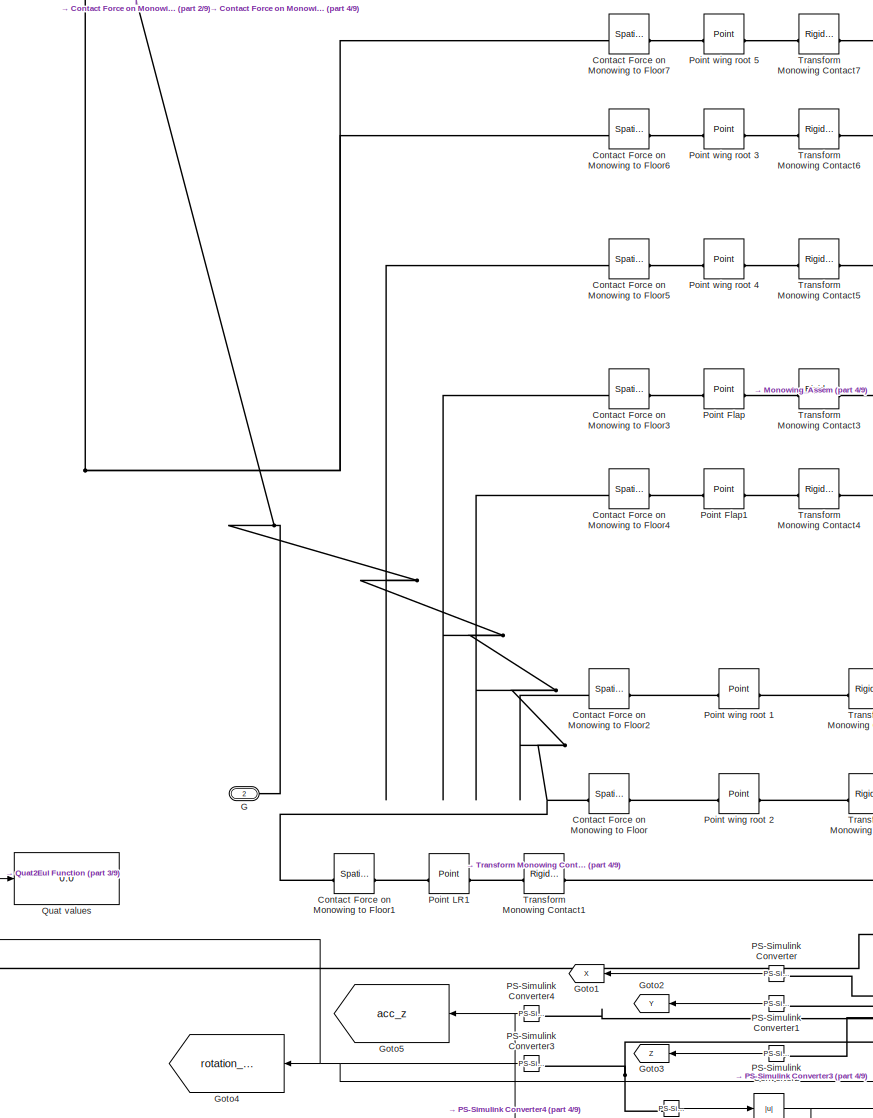
[diagram: Monowing - part 1/9, middle left region]
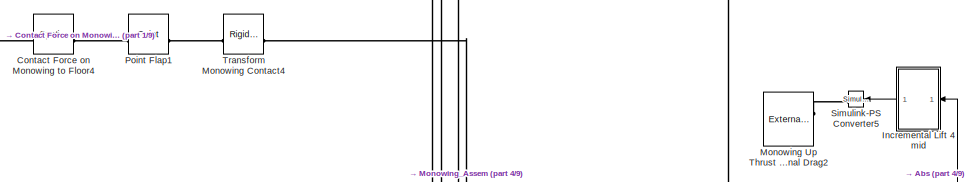
[diagram: Monowing - part 2/9, central region]
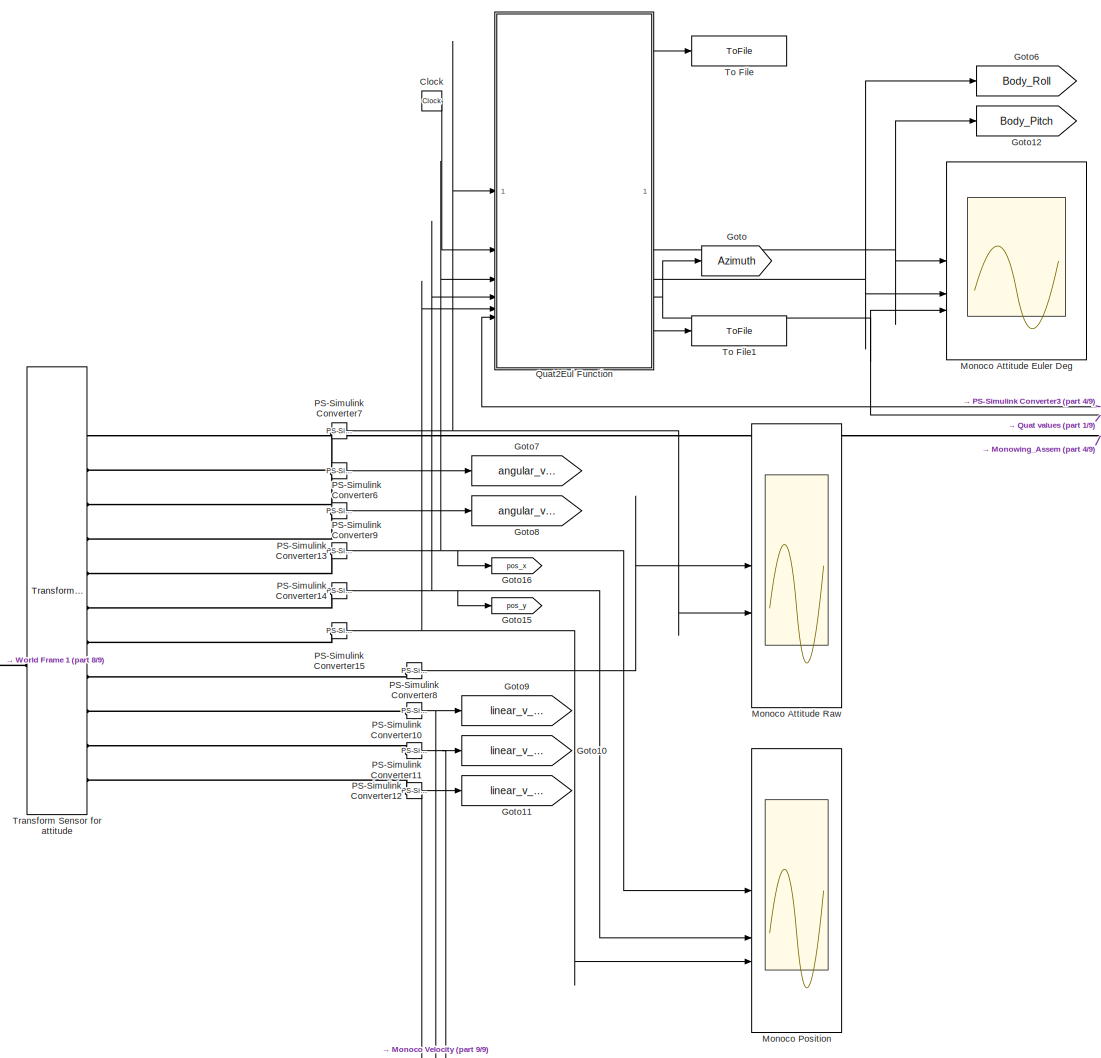
[diagram: Monowing - part 3/9, middle left region]
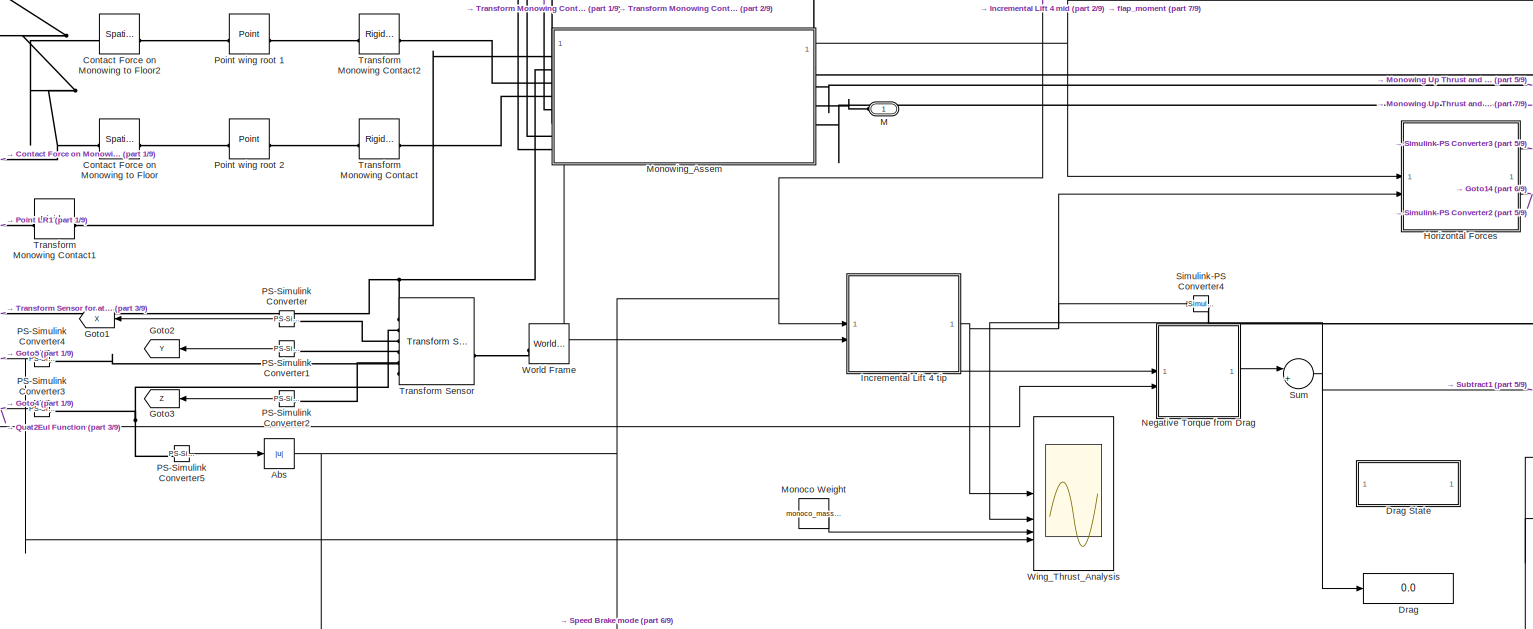
[diagram: Monowing - part 4/9, central region]
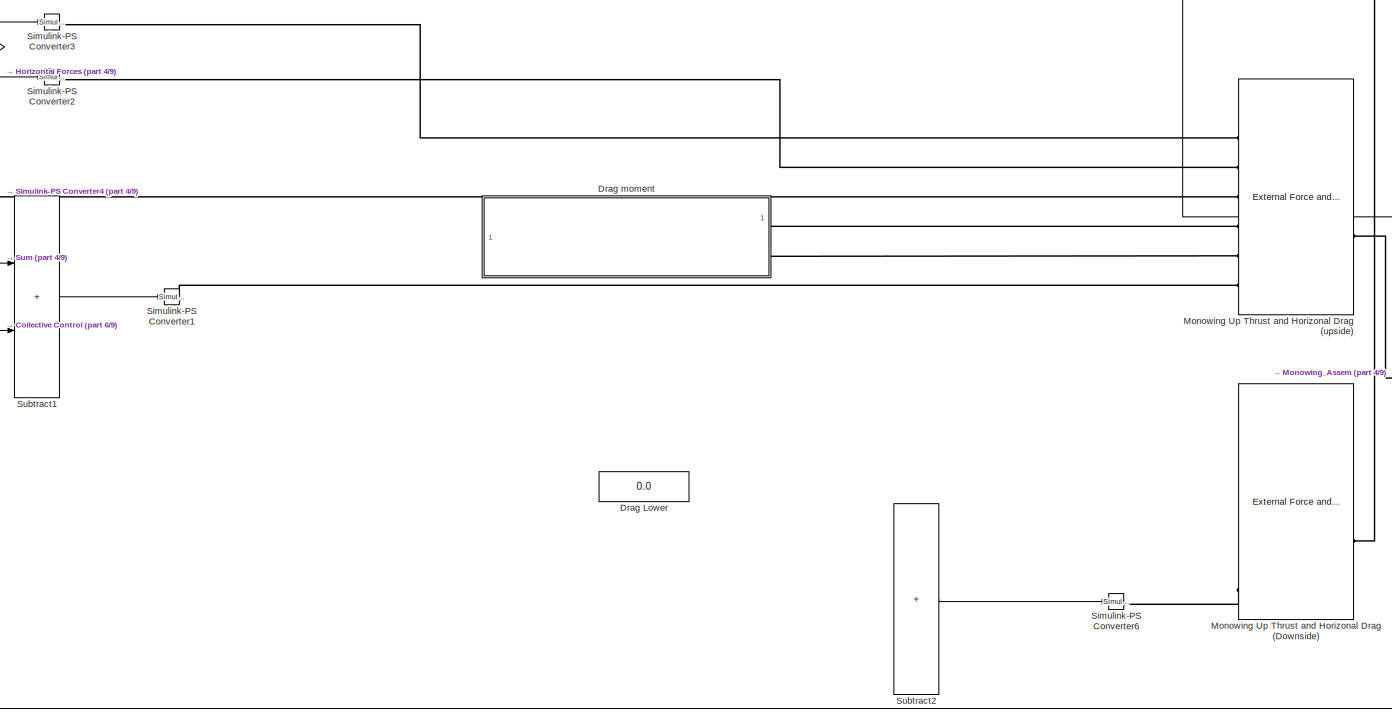
[diagram: Monowing - part 5/9, middle right region]
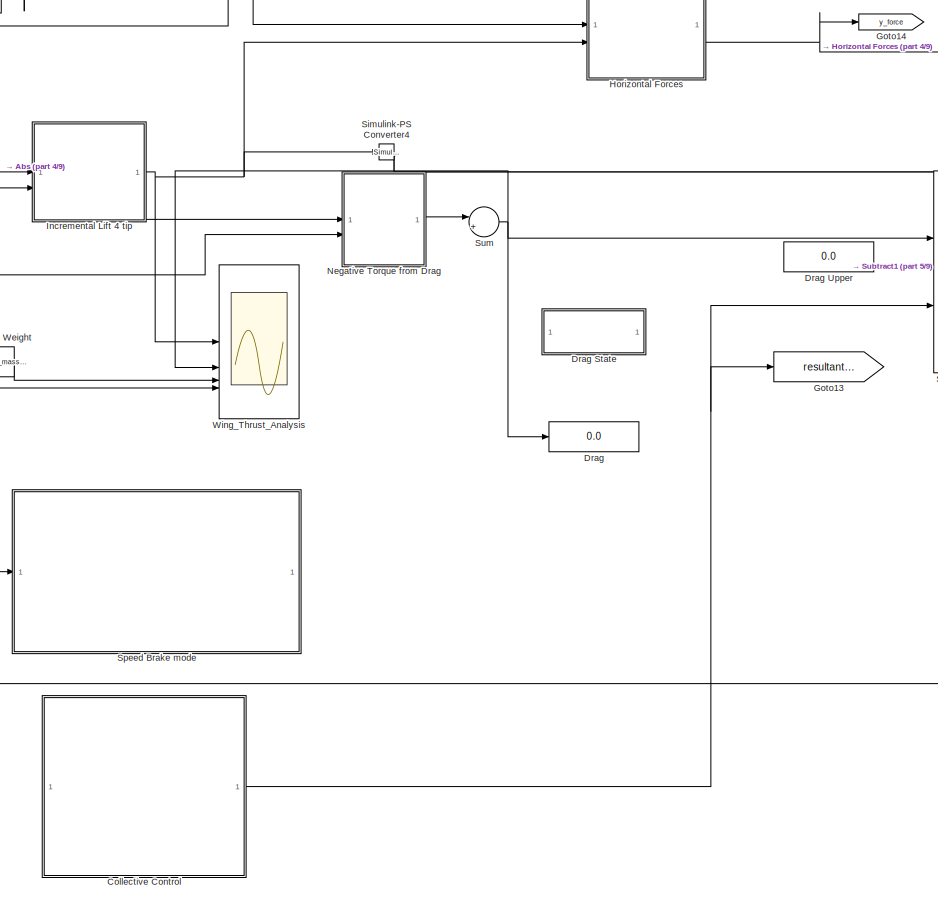
[diagram: Monowing - part 6/9, bottom center region]
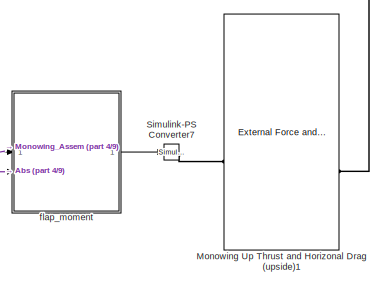
[diagram: Monowing - part 7/9, middle right region]
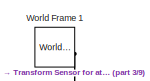
[diagram: Monowing - part 8/9, middle left region]
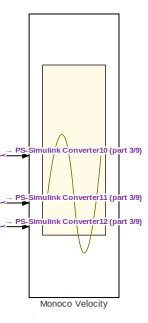
[diagram: Monowing - part 9/9, bottom left region]
BLOCK [SubSystem] Monowing
  NameLocation = top
BLOCK [Scope] Monowing position
  Floating = off
  NumInputPorts = 4
  ScopeSpecificationString = Simulink.scopes.TimeScopeBlockCfg('CurrentConfiguration', extmgr.ConfigurationSet(extmgr.Configuration('Core','General UI',true),extmgr.Configuration('Core','Source UI',true),extmgr.Configuration('Sources','WiredSimulink',true,'DataLoggingVariableName','ScopeData3'),extmgr.Configuration('Visuals','Time Domain',true,'SerializedDisplays',{struct('MinYLimReal','-30','MaxYLimReal','30','YLabelReal','X...<+5805ch>
BLOCK [Abs] Monowing/Abs
  SaturateOnIntegerOverflow = off
BLOCK [Clock] Monowing/Clock
BLOCK [SubSystem] Monowing/Collective Control
BLOCK [Outport] Monowing/Collective Control/Anhedral
  Port = 2
BLOCK [Clock] Monowing/Collective Control/Clock
BLOCK [SubSystem] Monowing/Collective Control/Collective (Anhedral)
  ErrorFcn = Stateflow.Translate.translate
  LibrarySourceBlock = simulink/User-Defined\nFunctions/MATLAB Function
  PermitHierarchicalResolution = ExplicitOnly
  SFBlockType = MATLAB Function
  TreatAsAtomicUnit = on
BLOCK [Demux] Monowing/Collective Control/Collective (Anhedral)/ Demux 
  Outputs = 1
BLOCK [S-Function] Monowing/Collective Control/Collective (Anhedral)/ SFunction 
  EnableBusSupport = on
  FunctionName = sf_sfun
  PortCounts = [2 2]
  SFcnIsStateOwnerBlock = off
  SFunctionDeploymentMode = off
  Tag = Stateflow S-Function 10
BLOCK [Terminator] Monowing/Collective Control/Collective (Anhedral)/ Terminator 
BLOCK [Inport] Monowing/Collective Control/Collective (Anhedral)/Toggle
  Port = 2
BLOCK [Inport] Monowing/Collective Control/Collective (Anhedral)/Torque_negative
BLOCK [Outport] Monowing/Collective Control/Collective (Anhedral)/output
BLOCK [SubSystem] Monowing/Collective Control/Collective (Dihedral)
  ErrorFcn = Stateflow.Translate.translate
  LibrarySourceBlock = simulink/User-Defined\nFunctions/MATLAB Function
  PermitHierarchicalResolution = ExplicitOnly
  SFBlockType = MATLAB Function
  TreatAsAtomicUnit = on
BLOCK [Demux] Monowing/Collective Control/Collective (Dihedral)/ Demux 
  Outputs = 1
BLOCK [S-Function] Monowing/Collective Control/Collective (Dihedral)/ SFunction 
  EnableBusSupport = on
  FunctionName = sf_sfun
  PortCounts = [2 2]
  SFcnIsStateOwnerBlock = off
  SFunctionDeploymentMode = off
  Tag = Stateflow S-Function 7
BLOCK [Terminator] Monowing/Collective Control/Collective (Dihedral)/ Terminator 
BLOCK [Inport] Monowing/Collective Control/Collective (Dihedral)/Toggle
  Port = 2
BLOCK [Inport] Monowing/Collective Control/Collective (Dihedral)/Torque_negative
BLOCK [Outport] Monowing/Collective Control/Collective (Dihedral)/output
BLOCK [SubSystem] Monowing/Collective Control/Collective Mode Switcher
  ErrorFcn = Stateflow.Translate.translate
  LibrarySourceBlock = simulink/User-Defined\nFunctions/MATLAB Function
  PermitHierarchicalResolution = ExplicitOnly
  SFBlockType = MATLAB Function
  TreatAsAtomicUnit = on
BLOCK [Demux] Monowing/Collective Control/Collective Mode Switcher/ Demux 
  Outputs = 1
BLOCK [S-Function] Monowing/Collective Control/Collective Mode Switcher/ SFunction 
  EnableBusSupport = on
  FunctionName = sf_sfun
  PortCounts = [2 3]
  SFcnIsStateOwnerBlock = off
  SFunctionDeploymentMode = off
  Tag = Stateflow S-Function 15
BLOCK [Terminator] Monowing/Collective Control/Collective Mode Switcher/ Terminator 
BLOCK [Inport] Monowing/Collective Control/Collective Mode Switcher/Mode
  Port = 2
BLOCK [Inport] Monowing/Collective Control/Collective Mode Switcher/Time
BLOCK [Outport] Monowing/Collective Control/Collective Mode Switcher/anhedral
  Port = 2
BLOCK [Outport] Monowing/Collective Control/Collective Mode Switcher/dihedral
BLOCK [Outport] Monowing/Collective Control/Dihedral
BLOCK [From] Monowing/Collective Control/From
  GotoTag = Torque_from_motor_negative
  TagVisibility = global
BLOCK [From] Monowing/Collective Control/From2
  GotoTag = Torque_from_motor_negative
  TagVisibility = global
BLOCK [From] Monowing/Collective Control/From3
  GotoTag = Mode_Selection
  TagVisibility = global
BLOCK [Display] Monowing/Collective Control/Torque result
  Decimation = 1
BLOCK [Reference] Monowing/Contact Force on Monowing to Floor  REF=sm_lib/Forces and
Torques/Spatial
Contact Force
  NameLocation = top
  SourceBlock = sm_lib/Forces and\nTorques/Spatial\nContact Force
  SourceType = Spatial\nContact Force
BLOCK [Reference] Monowing/Contact Force on Monowing to Floor1  REF=sm_lib/Forces and
Torques/Spatial
Contact Force
  Commented = on
  NameLocation = top
  SourceBlock = sm_lib/Forces and\nTorques/Spatial\nContact Force
  SourceType = Spatial\nContact Force
BLOCK [Reference] Monowing/Contact Force on Monowing to Floor2  REF=sm_lib/Forces and
Torques/Spatial
Contact Force
  NameLocation = top
  SourceBlock = sm_lib/Forces and\nTorques/Spatial\nContact Force
  SourceType = Spatial\nContact Force
BLOCK [Reference] Monowing/Contact Force on Monowing to Floor3  REF=sm_lib/Forces and
Torques/Spatial
Contact Force
  NameLocation = top
  SourceBlock = sm_lib/Forces and\nTorques/Spatial\nContact Force
  SourceType = Spatial\nContact Force
BLOCK [Reference] Monowing/Contact Force on Monowing to Floor4  REF=sm_lib/Forces and
Torques/Spatial
Contact Force
  NameLocation = top
  SourceBlock = sm_lib/Forces and\nTorques/Spatial\nContact Force
  SourceType = Spatial\nContact Force
BLOCK [Reference] Monowing/Contact Force on Monowing to Floor5  REF=sm_lib/Forces and
Torques/Spatial
Contact Force
  NameLocation = top
  SourceBlock = sm_lib/Forces and\nTorques/Spatial\nContact Force
  SourceType = Spatial\nContact Force
BLOCK [Reference] Monowing/Contact Force on Monowing to Floor6  REF=sm_lib/Forces and
Torques/Spatial
Contact Force
  NameLocation = top
  SourceBlock = sm_lib/Forces and\nTorques/Spatial\nContact Force
  SourceType = Spatial\nContact Force
BLOCK [Reference] Monowing/Contact Force on Monowing to Floor7  REF=sm_lib/Forces and
Torques/Spatial
Contact Force
  NameLocation = top
  SourceBlock = sm_lib/Forces and\nTorques/Spatial\nContact Force
  SourceType = Spatial\nContact Force
BLOCK [Display] Monowing/Drag
  Decimation = 1
BLOCK [Display] Monowing/Drag Lower
  Decimation = 1
BLOCK [SubSystem] Monowing/Drag State
BLOCK [Clock] Monowing/Drag State/Clock3
BLOCK [SubSystem] Monowing/Drag State/Drag filter
  ErrorFcn = Stateflow.Translate.translate
  LibrarySourceBlock = simulink/User-Defined\nFunctions/MATLAB Function
  PermitHierarchicalResolution = ExplicitOnly
  SFBlockType = MATLAB Function
  TreatAsAtomicUnit = on
BLOCK [Demux] Monowing/Drag State/Drag filter/ Demux 
  Outputs = 1
BLOCK [S-Function] Monowing/Drag State/Drag filter/ SFunction 
  EnableBusSupport = on
  FunctionName = sf_sfun
  PortCounts = [3 3]
  SFcnIsStateOwnerBlock = off
  SFunctionDeploymentMode = off
  Tag = Stateflow S-Function 11
BLOCK [Terminator] Monowing/Drag State/Drag filter/ Terminator 
BLOCK [Inport] Monowing/Drag State/Drag filter/Mode
  Port = 3
BLOCK [Inport] Monowing/Drag State/Drag filter/Time
  Port = 2
BLOCK [Inport] Monowing/Drag State/Drag filter/drag
BLOCK [Outport] Monowing/Drag State/Drag filter/drag_lower
  Port = 2
BLOCK [Outport] Monowing/Drag State/Drag filter/drag_upper
BLOCK [From] Monowing/Drag State/From5
  GotoTag = Mode_Selection
  TagVisibility = global
BLOCK [Inport] Monowing/Drag State/drag
BLOCK [Outport] Monowing/Drag State/drag_lower
  Port = 2
BLOCK [Outport] Monowing/Drag State/drag_upper
BLOCK [Display] Monowing/Drag Upper
  Decimation = 1
BLOCK [SubSystem] Monowing/Drag moment
BLOCK [SubSystem] Monowing/Drag moment/Drag Moment (X & Y)
  ErrorFcn = Stateflow.Translate.translate
  LibrarySourceBlock = simulink/User-Defined\nFunctions/MATLAB Function
  PermitHierarchicalResolution = ExplicitOnly
  SFBlockType = MATLAB Function
  TreatAsAtomicUnit = on
BLOCK [Demux] Monowing/Drag moment/Drag Moment (X & Y)/ Demux 
  Outputs = 1
BLOCK [S-Function] Monowing/Drag moment/Drag Moment (X & Y)/ SFunction 
  EnableBusSupport = on
  FunctionName = sf_sfun
  Parameters = drag_linear,drag_quad
  PortCounts = [3 3]
  SFcnIsStateOwnerBlock = off
  SFunctionDeploymentMode = off
  Tag = Stateflow S-Function 5
BLOCK [Terminator] Monowing/Drag moment/Drag Moment (X & Y)/ Terminator 
BLOCK [Inport] Monowing/Drag moment/Drag Moment (X & Y)/azimuth
  Port = 3
BLOCK [Outport] Monowing/Drag moment/Drag Moment (X & Y)/drag_moment_abt_x
  Port = 2
BLOCK [Outport] Monowing/Drag moment/Drag Moment (X & Y)/drag_moment_abt_y
BLOCK [Inport] Monowing/Drag moment/Drag Moment (X & Y)/x
  Port = 2
BLOCK [Inport] Monowing/Drag moment/Drag Moment (X & Y)/y
BLOCK [From] Monowing/Drag moment/From1
  GotoTag = angular_v_abt_y
  TagVisibility = global
BLOCK [From] Monowing/Drag moment/From2
  GotoTag = angular_v_abt_x
  TagVisibility = global
BLOCK [From] Monowing/Drag moment/From3
  GotoTag = Azimuth
  TagVisibility = global
BLOCK [Reference] Monowing/Drag moment/Simulink-PS Converter2  REF=nesl_utility/Simulink-PS
Converter
  SourceBlock = nesl_utility/Simulink-PS\nConverter
  SourceType = Simulink-PS\nConverter
BLOCK [Reference] Monowing/Drag moment/Simulink-PS Converter3  REF=nesl_utility/Simulink-PS
Converter
  SourceBlock = nesl_utility/Simulink-PS\nConverter
  SourceType = Simulink-PS\nConverter
BLOCK [UnitDelay] Monowing/Drag moment/Unit Delay
  HasFrameUpgradeWarning = on
  SampleTime = 10
BLOCK [UnitDelay] Monowing/Drag moment/Unit Delay1
  HasFrameUpgradeWarning = on
  SampleTime = 10
BLOCK [Display] Monowing/Drag moment/drag moment abt y axis
  Decimation = 1
BLOCK [PMIOPort] Monowing/Drag moment/output x
  Side = Right
BLOCK [PMIOPort] Monowing/Drag moment/output y
  Port = 2
  Side = Right
BLOCK [PMIOPort] Monowing/G
  NameLocation = top
  Port = 2
  Side = Right
BLOCK [Goto] Monowing/Goto
  GotoTag = Azimuth
  TagVisibility = global
BLOCK [Goto] Monowing/Goto1
  GotoTag = X
  NameLocation = top
  TagVisibility = global
BLOCK [Goto] Monowing/Goto10
  GotoTag = linear_v_along_y
  TagVisibility = global
BLOCK [Goto] Monowing/Goto11
  GotoTag = linear_v_along_z
  TagVisibility = global
BLOCK [Goto] Monowing/Goto12
  GotoTag = Body_Pitch
  TagVisibility = global
BLOCK [Goto] Monowing/Goto13
  GotoTag = resultant_torque
  TagVisibility = global
BLOCK [Goto] Monowing/Goto14
  GotoTag = y_force
  TagVisibility = global
BLOCK [Goto] Monowing/Goto15
  GotoTag = pos_y
  TagVisibility = global
BLOCK [Goto] Monowing/Goto16
  GotoTag = pos_x
  TagVisibility = global
BLOCK [Goto] Monowing/Goto2
  GotoTag = Y
  NameLocation = top
  TagVisibility = global
BLOCK [Goto] Monowing/Goto3
  GotoTag = Z
  NameLocation = top
  TagVisibility = global
BLOCK [Goto] Monowing/Goto4
  GotoTag = rotation_abt_z
  NameLocation = top
  TagVisibility = global
BLOCK [Goto] Monowing/Goto5
  GotoTag = acc_z
  NameLocation = top
  TagVisibility = global
BLOCK [Goto] Monowing/Goto6
  GotoTag = Body_Roll
  TagVisibility = global
BLOCK [Goto] Monowing/Goto7
  GotoTag = angular_v_abt_x
  TagVisibility = global
BLOCK [Goto] Monowing/Goto8
  GotoTag = angular_v_abt_y
  TagVisibility = global
BLOCK [Goto] Monowing/Goto9
  GotoTag = linear_v_along_x
  TagVisibility = global
BLOCK [SubSystem] Monowing/Horizontal Forces
BLOCK [From] Monowing/Horizontal Forces/From
  GotoTag = pos_y
  TagVisibility = global
BLOCK [From] Monowing/Horizontal Forces/From1
  GotoTag = Body_Roll
  TagVisibility = global
BLOCK [From] Monowing/Horizontal Forces/From10
  GotoTag = Azimuth
  TagVisibility = global
BLOCK [From] Monowing/Horizontal Forces/From11
  GotoTag = Body_Roll
  TagVisibility = global
BLOCK [From] Monowing/Horizontal Forces/From12
  GotoTag = Flap_angle_pitch
  TagVisibility = global
BLOCK [From] Monowing/Horizontal Forces/From13
  GotoTag = pos_x
  TagVisibility = global
BLOCK [From] Monowing/Horizontal Forces/From2
  GotoTag = linear_v_along_x
  TagVisibility = global
BLOCK [From] Monowing/Horizontal Forces/From3
  GotoTag = linear_v_along_y
  TagVisibility = global
BLOCK [From] Monowing/Horizontal Forces/From4
  GotoTag = linear_v_along_z
  TagVisibility = global
BLOCK [From] Monowing/Horizontal Forces/From5
  GotoTag = Azimuth
  TagVisibility = global
BLOCK [From] Monowing/Horizontal Forces/From6
  GotoTag = Flap_angle_roll
  TagVisibility = global
BLOCK [From] Monowing/Horizontal Forces/From7
  GotoTag = linear_v_along_x
  TagVisibility = global
BLOCK [From] Monowing/Horizontal Forces/From8
  GotoTag = linear_v_along_y
  TagVisibility = global
BLOCK [From] Monowing/Horizontal Forces/From9
  GotoTag = linear_v_along_z
  TagVisibility = global
BLOCK [SubSystem] Monowing/Horizontal Forces/Horizontal Motion X
  ErrorFcn = Stateflow.Translate.translate
  LibrarySourceBlock = simulink/User-Defined\nFunctions/MATLAB Function
  PermitHierarchicalResolution = ExplicitOnly
  SFBlockType = MATLAB Function
  TreatAsAtomicUnit = on
BLOCK [Demux] Monowing/Horizontal Forces/Horizontal Motion X/ Demux 
  Outputs = 1
BLOCK [S-Function] Monowing/Horizontal Forces/Horizontal Motion X/ SFunction 
  EnableBusSupport = on
  FunctionName = sf_sfun
  Parameters = klinear,kquad
  PortCounts = [9 2]
  SFcnIsStateOwnerBlock = off
  SFunctionDeploymentMode = off
  Tag = Stateflow S-Function 16
BLOCK [Terminator] Monowing/Horizontal Forces/Horizontal Motion X/ Terminator 
BLOCK [Inport] Monowing/Horizontal Forces/Horizontal Motion X/Lift
  Port = 2
BLOCK [Inport] Monowing/Horizontal Forces/Horizontal Motion X/azimuth
  Port = 8
BLOCK [Inport] Monowing/Horizontal Forces/Horizontal Motion X/flap_angle
  Port = 9
BLOCK [Inport] Monowing/Horizontal Forces/Horizontal Motion X/flap_angle_data
  Port = 3
BLOCK [Outport] Monowing/Horizontal Forces/Horizontal Motion X/force
BLOCK [Inport] Monowing/Horizontal Forces/Horizontal Motion X/pos_x
  Port = 7
BLOCK [Inport] Monowing/Horizontal Forces/Horizontal Motion X/roll_in_deg
BLOCK [Inport] Monowing/Horizontal Forces/Horizontal Motion X/vx
  Port = 4
BLOCK [Inport] Monowing/Horizontal Forces/Horizontal Motion X/vy
  Port = 5
BLOCK [Inport] Monowing/Horizontal Forces/Horizontal Motion X/vz
  Port = 6
BLOCK [SubSystem] Monowing/Horizontal Forces/Horizontal Motion Y
  ErrorFcn = Stateflow.Translate.translate
  LibrarySourceBlock = simulink/User-Defined\nFunctions/MATLAB Function
  PermitHierarchicalResolution = ExplicitOnly
  SFBlockType = MATLAB Function
  TreatAsAtomicUnit = on
BLOCK [Demux] Monowing/Horizontal Forces/Horizontal Motion Y/ Demux 
  Outputs = 1
BLOCK [S-Function] Monowing/Horizontal Forces/Horizontal Motion Y/ SFunction 
  EnableBusSupport = on
  FunctionName = sf_sfun
  Parameters = klinear,kquad
  PortCounts = [9 3]
  SFcnIsStateOwnerBlock = off
  SFunctionDeploymentMode = off
  Tag = Stateflow S-Function 6
BLOCK [Terminator] Monowing/Horizontal Forces/Horizontal Motion Y/ Terminator 
BLOCK [Inport] Monowing/Horizontal Forces/Horizontal Motion Y/Lift
  Port = 2
BLOCK [Inport] Monowing/Horizontal Forces/Horizontal Motion Y/azimuth
  Port = 8
BLOCK [Inport] Monowing/Horizontal Forces/Horizontal Motion Y/flap_angle
  Port = 9
BLOCK [Inport] Monowing/Horizontal Forces/Horizontal Motion Y/flap_angle_data
  Port = 3
BLOCK [Outport] Monowing/Horizontal Forces/Horizontal Motion Y/flap_angle_recording
  Port = 2
BLOCK [Outport] Monowing/Horizontal Forces/Horizontal Motion Y/force
BLOCK [Inport] Monowing/Horizontal Forces/Horizontal Motion Y/pos_y
  Port = 7
BLOCK [Inport] Monowing/Horizontal Forces/Horizontal Motion Y/roll_in_deg
BLOCK [Inport] Monowing/Horizontal Forces/Horizontal Motion Y/vx
  Port = 4
BLOCK [Inport] Monowing/Horizontal Forces/Horizontal Motion Y/vy
  Port = 5
BLOCK [Inport] Monowing/Horizontal Forces/Horizontal Motion Y/vz
  Port = 6
BLOCK [Scope] Monowing/Horizontal Forces/Horizontal_Thrust_Analysis
  Floating = off
  NumInputPorts = 2
  ScopeSpecificationString = Simulink.scopes.TimeScopeBlockCfg('CurrentConfiguration', extmgr.ConfigurationSet(extmgr.Configuration('Core','General UI',true),extmgr.Configuration('Core','Source UI',true),extmgr.Configuration('Sources','WiredSimulink',true,'DataLoggingVariableName','ScopeData1'),extmgr.Configuration('Visuals','Time Domain',true,'SerializedDisplays',{struct('MinYLimReal','-10','MaxYLimReal','10','YLabelReal','H...<+3628ch>
BLOCK [Inport] Monowing/Horizontal Forces/Lift
  Port = 2
BLOCK [ToFile] Monowing/Horizontal Forces/To File1
  Filename = acc_y_roll_deg.mat
  MatrixName = acc_y
BLOCK [ToFile] Monowing/Horizontal Forces/To File2
  Filename = flap_angle.mat
  MatrixName = flap
BLOCK [Inport] Monowing/Horizontal Forces/flap_angle_data
BLOCK [Outport] Monowing/Horizontal Forces/x
BLOCK [Outport] Monowing/Horizontal Forces/y
  Port = 2
BLOCK [SubSystem] Monowing/Incremental Lift 4 mid
  Commented = on
  NameLocation = top
BLOCK [Constant] Monowing/Incremental Lift 4 mid/1//8
  NameLocation = left
  Value = 1/6
BLOCK [Constant] Monowing/Incremental Lift 4 mid/Air_Rho
  NameLocation = left
  Value = air_rho
BLOCK [Constant] Monowing/Incremental Lift 4 mid/Blade Chord
  NameLocation = left
  Value = monoco_wing_area/monoco_radius
BLOCK [Constant] Monowing/Incremental Lift 4 mid/Conversion to Hz (Rotational Freq)
  NameLocation = left
  Value = 0.1591549
BLOCK [Inport] Monowing/Incremental Lift 4 mid/In1
BLOCK [Constant] Monowing/Incremental Lift 4 mid/Lift Coeff
  NameLocation = left
  Value = monoco_wing.CL
BLOCK [Math] Monowing/Incremental Lift 4 mid/Math Function
  Operator = square
BLOCK [Math] Monowing/Incremental Lift 4 mid/Math Function1
  Operator = pow
BLOCK [Constant] Monowing/Incremental Lift 4 mid/Monoco Radius
  NameLocation = left
  Value = monoco_radius-0.176-0.201
BLOCK [Outport] Monowing/Incremental Lift 4 mid/Out1
BLOCK [Product] Monowing/Incremental Lift 4 mid/Product
  Inputs = 6
BLOCK [Product] Monowing/Incremental Lift 4 mid/Product1
BLOCK [Constant] Monowing/Incremental Lift 4 mid/Radius pow
  NameLocation = left
  Value = 3
BLOCK [SubSystem] Monowing/Incremental Lift 4 tip
BLOCK [Constant] Monowing/Incremental Lift 4 tip/1//8
  NameLocation = left
  Value = 1/6
BLOCK [Constant] Monowing/Incremental Lift 4 tip/Air_Rho
  NameLocation = left
  Value = air_rho
BLOCK [Constant] Monowing/Incremental Lift 4 tip/Blade Chord
  NameLocation = left
  Value = monoco_wing_area/monoco_radius
BLOCK [Display] Monowing/Incremental Lift 4 tip/CL
  Decimation = 1
BLOCK [Outport] Monowing/Incremental Lift 4 tip/Coeff_L
  NameLocation = left
  Port = 2
BLOCK [Constant] Monowing/Incremental Lift 4 tip/Conversion to Hz (Rotational Freq)
  NameLocation = left
  Value = 0.1591549
BLOCK [Inport] Monowing/Incremental Lift 4 tip/Flap Angle
  Port = 2
BLOCK [Outport] Monowing/Incremental Lift 4 tip/Lift
BLOCK [Constant] Monowing/Incremental Lift 4 tip/Lift Coeff
  NameLocation = left
  Value = monoco_wing.CL
BLOCK [Math] Monowing/Incremental Lift 4 tip/Math Function
  Operator = square
BLOCK [Math] Monowing/Incremental Lift 4 tip/Math Function1
  Operator = pow
BLOCK [Constant] Monowing/Incremental Lift 4 tip/Monoco Radius
  NameLocation = left
  Value = monoco_radius-0.176
BLOCK [Product] Monowing/Incremental Lift 4 tip/Product
  Inputs = 6
BLOCK [Product] Monowing/Incremental Lift 4 tip/Product1
BLOCK [Product] Monowing/Incremental Lift 4 tip/Product2
BLOCK [Constant] Monowing/Incremental Lift 4 tip/Radius pow
  NameLocation = left
  Value = 3
BLOCK [Sum] Monowing/Incremental Lift 4 tip/Sum
  Inputs = |++
BLOCK [Constant] Monowing/Incremental Lift 4 tip/gradient between AoA and CL
  NameLocation = left
  Value = 0.16
BLOCK [Constant] Monowing/Incremental Lift 4 tip/gradient between AoA and CL (original value)
  NameLocation = left
  Value = 0.16
BLOCK [Inport] Monowing/Incremental Lift 4 tip/rps
BLOCK [PMIOPort] Monowing/M
  NameLocation = top
  Side = Left
BLOCK [Scope] Monowing/Monoco Attitude Euler Deg
  Floating = off
  NumInputPorts = 3
  ScopeSpecificationString = Simulink.scopes.TimeScopeBlockCfg('CurrentConfiguration', extmgr.ConfigurationSet(extmgr.Configuration('Core','General UI',true,'FigureColor',[0 0 0]),extmgr.Configuration('Core','Source UI',true),extmgr.Configuration('Sources','WiredSimulink',true,'DataLoggingVariableName','ScopeData1'),extmgr.Configuration('Visuals','Time Domain',true,'SerializedDisplays',{struct('MinYLimReal','-190','MaxYLimRea...<+5035ch>
BLOCK [Scope] Monowing/Monoco Attitude Raw
  Floating = off
  NumInputPorts = 2
  ScopeSpecificationString = Simulink.scopes.TimeScopeBlockCfg('CurrentConfiguration', extmgr.ConfigurationSet(extmgr.Configuration('Core','General UI',true),extmgr.Configuration('Core','Source UI',true),extmgr.Configuration('Sources','WiredSimulink',true,'DataLoggingVariableName','ScopeData1'),extmgr.Configuration('Visuals','Time Domain',true,'SerializedDisplays',{struct('MinYLimReal','-50','MaxYLimReal','3','YLabelReal','Az...<+3608ch>
BLOCK [Scope] Monowing/Monoco Position
  Floating = off
  NumInputPorts = 3
  ScopeSpecificationString = Simulink.scopes.TimeScopeBlockCfg('CurrentConfiguration', extmgr.ConfigurationSet(extmgr.Configuration('Core','General UI',true),extmgr.Configuration('Core','Source UI',true),extmgr.Configuration('Sources','WiredSimulink',true,'DataLoggingVariableName','ScopeData2'),extmgr.Configuration('Visuals','Time Domain',true,'SerializedDisplays',{struct('MinYLimReal','-5','MaxYLimReal','5','YLabelReal','X',...<+4387ch>
BLOCK [Scope] Monowing/Monoco Velocity
  Floating = off
  NumInputPorts = 3
  ScopeSpecificationString = Simulink.scopes.TimeScopeBlockCfg('CurrentConfiguration', extmgr.ConfigurationSet(extmgr.Configuration('Core','General UI',true),extmgr.Configuration('Core','Source UI',true),extmgr.Configuration('Sources','WiredSimulink',true,'DataLoggingVariableName','ScopeData1'),extmgr.Configuration('Visuals','Time Domain',true,'SerializedDisplays',{struct('MinYLimReal','-50','MaxYLimReal','3','YLabelReal','X'...<+4366ch>
BLOCK [Constant] Monowing/Monoco Weight
  Value = monoco_mass*(9.81/1000)
BLOCK [Reference] Monowing/Monowing Up Thrust and Horizonal Drag (Downside)  REF=sm_lib/Forces and
Torques/External Force
and Torque
  NameLocation = top
  SourceBlock = sm_lib/Forces and\nTorques/External Force\nand Torque
  SourceType = External Force\nand Torque
BLOCK [Reference] Monowing/Monowing Up Thrust and Horizonal Drag (upside)  REF=sm_lib/Forces and
Torques/External Force
and Torque
  NameLocation = top
  SourceBlock = sm_lib/Forces and\nTorques/External Force\nand Torque
  SourceType = External Force\nand Torque
BLOCK [Reference] Monowing/Monowing Up Thrust and Horizonal Drag (upside)1  REF=sm_lib/Forces and
Torques/External Force
and Torque
  NameLocation = top
  SourceBlock = sm_lib/Forces and\nTorques/External Force\nand Torque
  SourceType = External Force\nand Torque
BLOCK [Reference] Monowing/Monowing Up Thrust and Horizonal Drag2  REF=sm_lib/Forces and
Torques/External Force
and Torque
  Commented = on
  SourceBlock = sm_lib/Forces and\nTorques/External Force\nand Torque
  SourceType = External Force\nand Torque
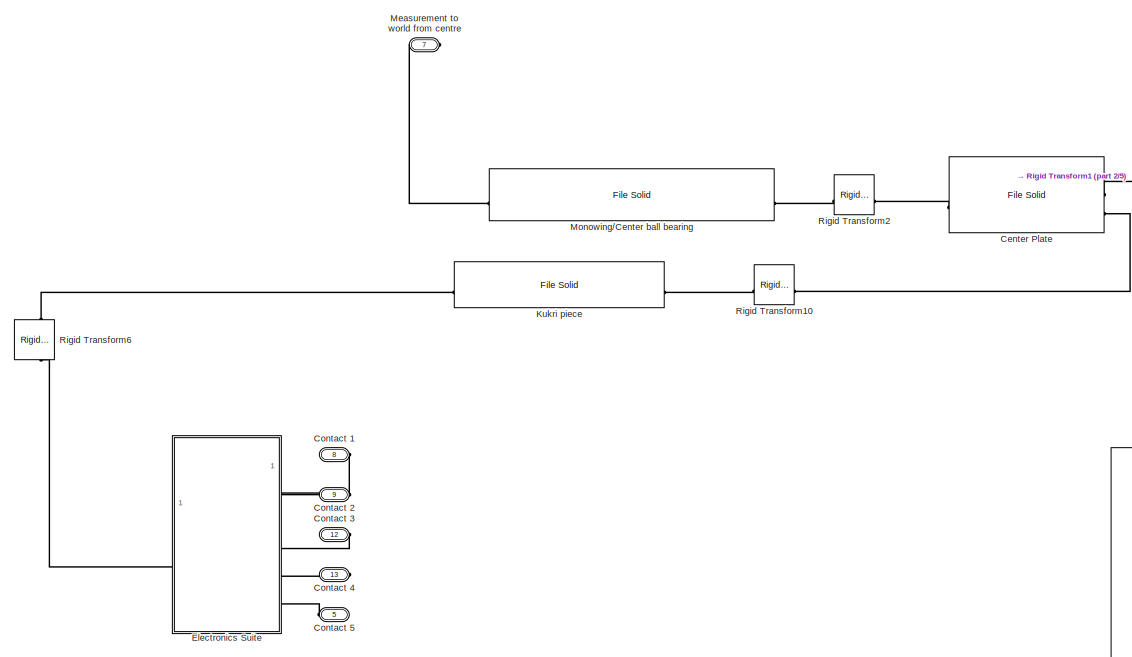
[diagram: Monowing/Monowing_Assem - part 1/5, top center region]
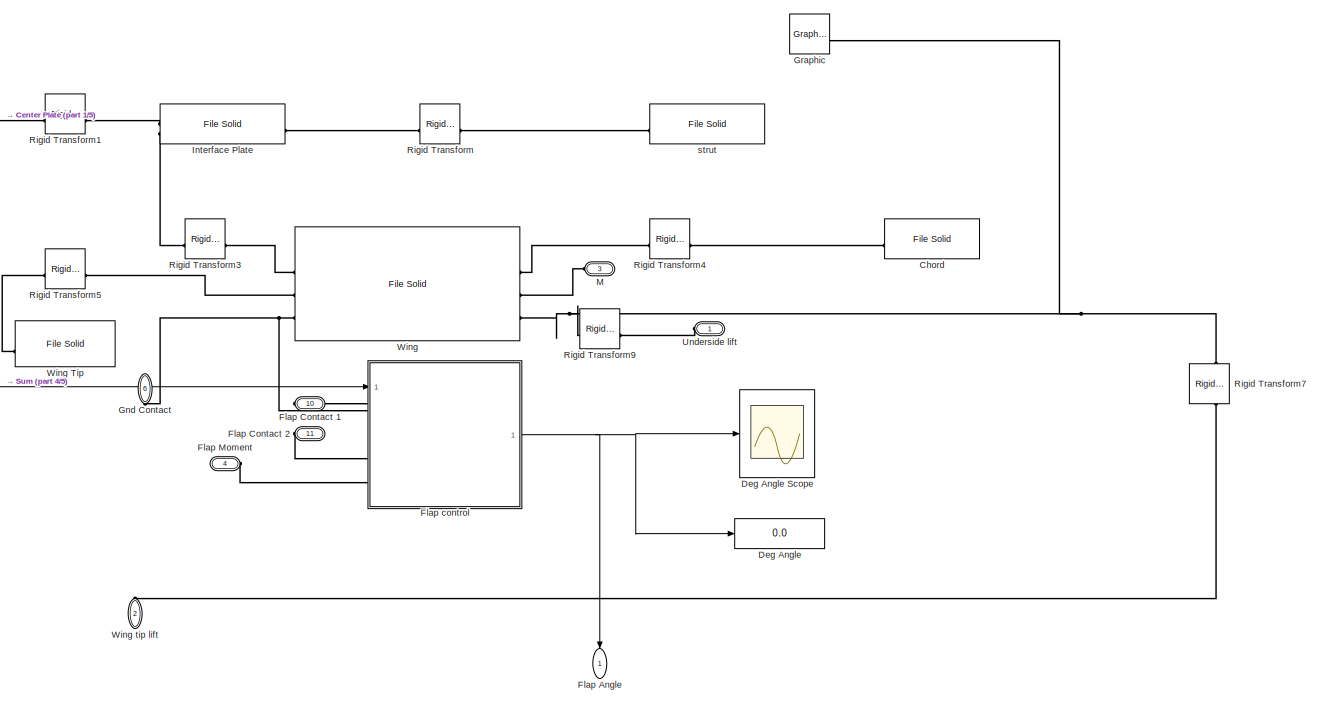
[diagram: Monowing/Monowing_Assem - part 2/5, top right region]
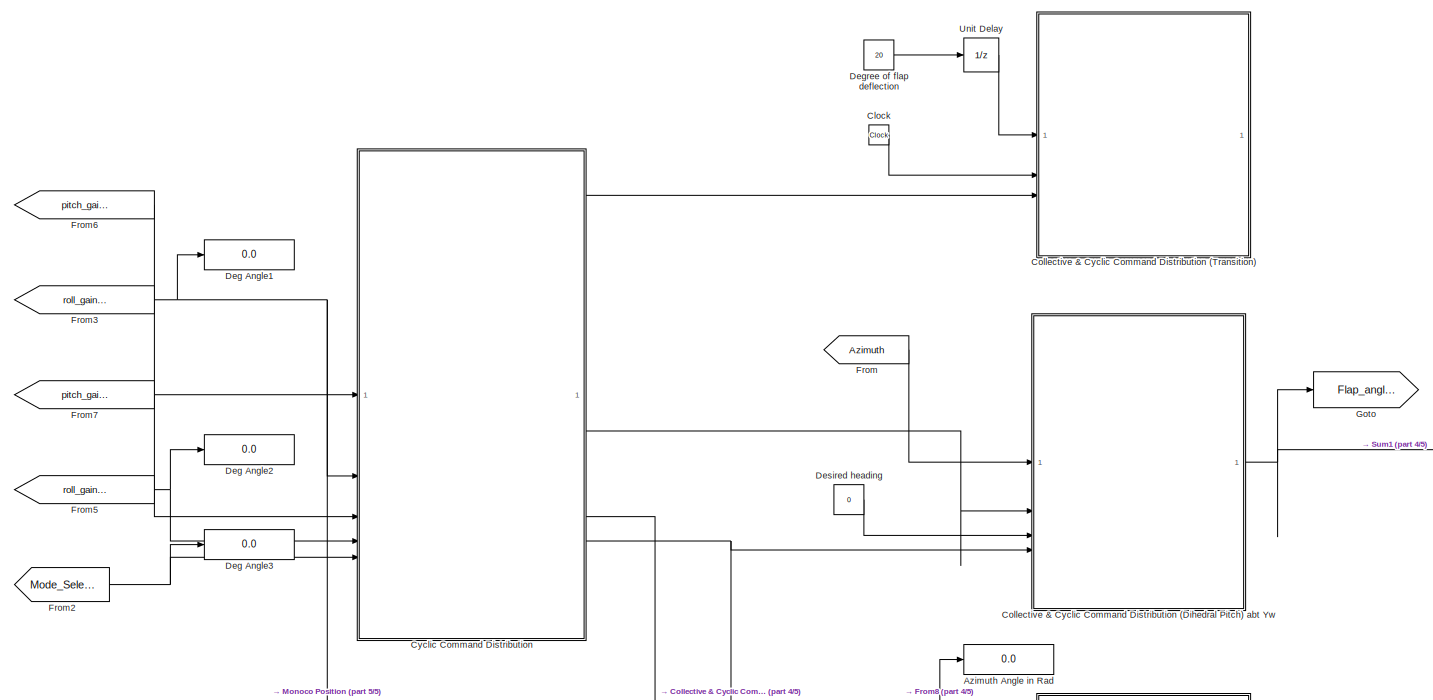
[diagram: Monowing/Monowing_Assem - part 3/5, middle left region]
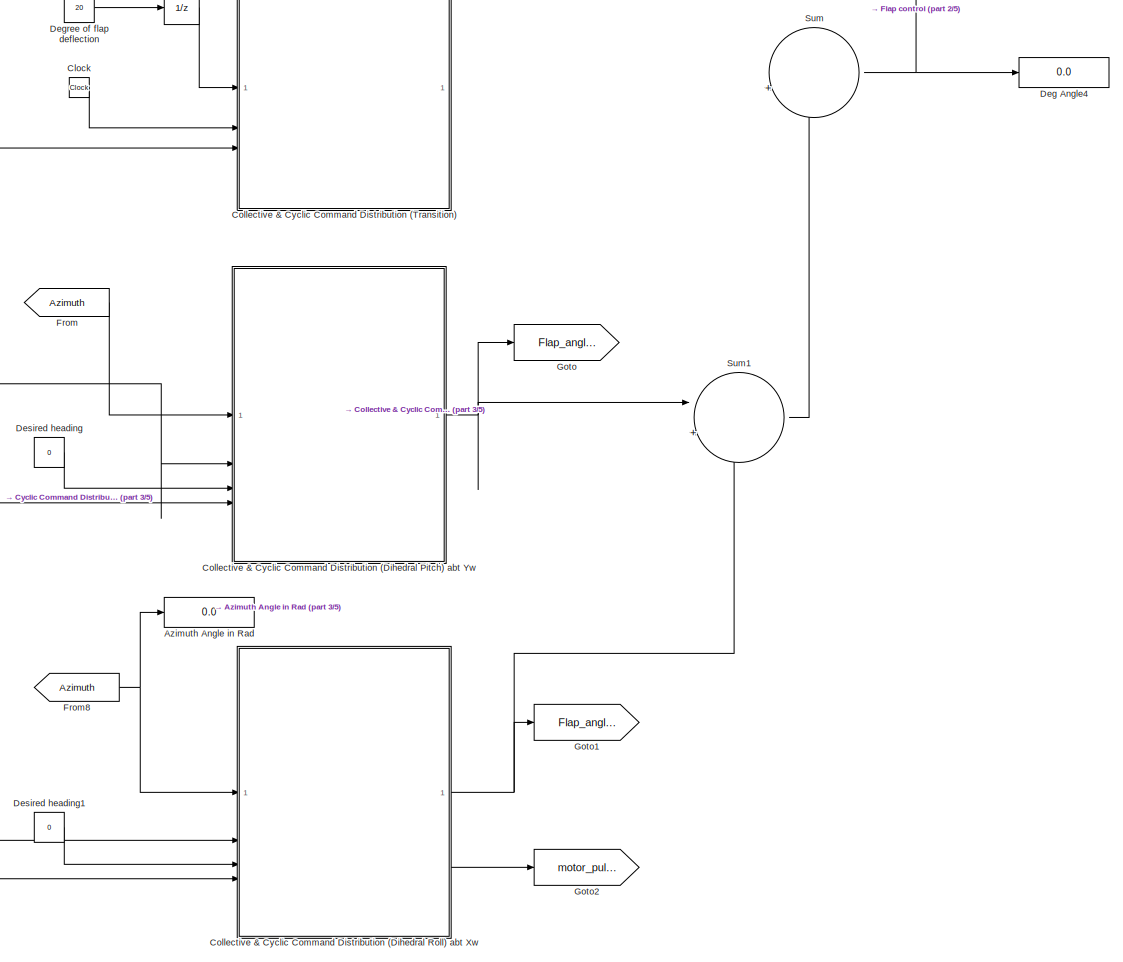
[diagram: Monowing/Monowing_Assem - part 4/5, central region]
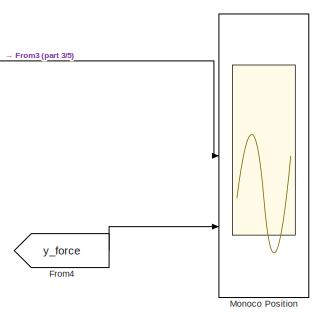
[diagram: Monowing/Monowing_Assem - part 5/5, bottom left region]
BLOCK [SubSystem] Monowing/Monowing_Assem
  NameLocation = top
  PortSchema = {"entries":[{"content":{"sides":[{"content":{"connectorIds":["LConn1","LConn2","LConn3","LConn4","Out1"]},"type":"ConnectorPlacement.EquallySpacedRectSide","uuid":"ac7a8aa6-e60b-47ca-89e5-d63ad1015c78"},{"content":{"connectorIds":["RConn1","RConn2","RConn3","RConn4","RConn5","RConn6","RConn7","RConn8"],"side":"RIGHT"},"type":"ConnectorPlacement.EquallySpacedRectSide","uuid":"7d8b3f85-eefd-43b2-ace...<+350ch>
BLOCK [Reference] Monowing/Monowing_Assem/ strut  REF=sm_lib/Body Elements/File Solid
  SourceBlock = sm_lib/Body Elements/File Solid
  SourceType = File Solid
BLOCK [Display] Monowing/Monowing_Assem/Azimuth Angle in Rad
  Decimation = 1
BLOCK [Reference] Monowing/Monowing_Assem/Center Plate  REF=sm_lib/Body Elements/File Solid
  NameLocation = top
  SourceBlock = sm_lib/Body Elements/File Solid
  SourceType = File Solid
BLOCK [Reference] Monowing/Monowing_Assem/Chord  REF=sm_lib/Body Elements/File Solid
  SourceBlock = sm_lib/Body Elements/File Solid
  SourceType = File Solid
BLOCK [Clock] Monowing/Monowing_Assem/Clock
BLOCK [SubSystem] Monowing/Monowing_Assem/Collective & Cyclic Command Distribution (Dihedral Pitch) abt Yw
  ErrorFcn = Stateflow.Translate.translate
  LibrarySourceBlock = simulink/User-Defined\nFunctions/MATLAB Function
  PermitHierarchicalResolution = ExplicitOnly
  SFBlockType = MATLAB Function
  TreatAsAtomicUnit = on
BLOCK [Demux] Monowing/Monowing_Assem/Collective & Cyclic Command Distribution (Dihedral Pitch) abt Yw/ Demux 
  Outputs = 1
BLOCK [S-Function] Monowing/Monowing_Assem/Collective & Cyclic Command Distribution (Dihedral Pitch) abt Yw/ SFunction 
  EnableBusSupport = on
  FunctionName = sf_sfun
  PortCounts = [4 3]
  SFcnIsStateOwnerBlock = off
  SFunctionDeploymentMode = off
  Tag = Stateflow S-Function 13
BLOCK [Terminator] Monowing/Monowing_Assem/Collective & Cyclic Command Distribution (Dihedral Pitch) abt Yw/ Terminator 
BLOCK [Outport] Monowing/Monowing_Assem/Collective & Cyclic Command Distribution (Dihedral Pitch) abt Yw/Motor_Pulse
  Port = 2
BLOCK [Inport] Monowing/Monowing_Assem/Collective & Cyclic Command Distribution (Dihedral Pitch) abt Yw/Toggle
  Port = 4
BLOCK [Outport] Monowing/Monowing_Assem/Collective & Cyclic Command Distribution (Dihedral Pitch) abt Yw/flap_dihedral_pitch_cmd
BLOCK [Inport] Monowing/Monowing_Assem/Collective & Cyclic Command Distribution (Dihedral Pitch) abt Yw/gain_x
  Port = 2
BLOCK [Inport] Monowing/Monowing_Assem/Collective & Cyclic Command Distribution (Dihedral Pitch) abt Yw/heading
  Port = 3
BLOCK [Inport] Monowing/Monowing_Assem/Collective & Cyclic Command Distribution (Dihedral Pitch) abt Yw/u
BLOCK [SubSystem] Monowing/Monowing_Assem/Collective & Cyclic Command Distribution (Dihedral Roll) abt Xw
  ErrorFcn = Stateflow.Translate.translate
  LibrarySourceBlock = simulink/User-Defined\nFunctions/MATLAB Function
  PermitHierarchicalResolution = ExplicitOnly
  SFBlockType = MATLAB Function
  TreatAsAtomicUnit = on
BLOCK [Demux] Monowing/Monowing_Assem/Collective & Cyclic Command Distribution (Dihedral Roll) abt Xw/ Demux 
  Outputs = 1
BLOCK [S-Function] Monowing/Monowing_Assem/Collective & Cyclic Command Distribution (Dihedral Roll) abt Xw/ SFunction 
  EnableBusSupport = on
  FunctionName = sf_sfun
  PortCounts = [4 3]
  SFcnIsStateOwnerBlock = off
  SFunctionDeploymentMode = off
  Tag = Stateflow S-Function 17
BLOCK [Terminator] Monowing/Monowing_Assem/Collective & Cyclic Command Distribution (Dihedral Roll) abt Xw/ Terminator 
BLOCK [Outport] Monowing/Monowing_Assem/Collective & Cyclic Command Distribution (Dihedral Roll) abt Xw/Motor_Pulse
  Port = 2
BLOCK [Inport] Monowing/Monowing_Assem/Collective & Cyclic Command Distribution (Dihedral Roll) abt Xw/Toggle
  Port = 4
BLOCK [Outport] Monowing/Monowing_Assem/Collective & Cyclic Command Distribution (Dihedral Roll) abt Xw/flap_dihedral_roll_cmd
BLOCK [Inport] Monowing/Monowing_Assem/Collective & Cyclic Command Distribution (Dihedral Roll) abt Xw/gain_y
  Port = 2
BLOCK [Inport] Monowing/Monowing_Assem/Collective & Cyclic Command Distribution (Dihedral Roll) abt Xw/heading
  Port = 3
BLOCK [Inport] Monowing/Monowing_Assem/Collective & Cyclic Command Distribution (Dihedral Roll) abt Xw/u
BLOCK [SubSystem] Monowing/Monowing_Assem/Collective & Cyclic Command Distribution (Transition)
  ErrorFcn = Stateflow.Translate.translate
  LibrarySourceBlock = simulink/User-Defined\nFunctions/MATLAB Function
  PermitHierarchicalResolution = ExplicitOnly
  SFBlockType = MATLAB Function
  TreatAsAtomicUnit = on
BLOCK [Demux] Monowing/Monowing_Assem/Collective & Cyclic Command Distribution (Transition)/ Demux 
  Outputs = 1
BLOCK [S-Function] Monowing/Monowing_Assem/Collective & Cyclic Command Distribution (Transition)/ SFunction 
  EnableBusSupport = on
  FunctionName = sf_sfun
  PortCounts = [3 2]
  SFcnIsStateOwnerBlock = off
  SFunctionDeploymentMode = off
  Tag = Stateflow S-Function 4
BLOCK [Terminator] Monowing/Monowing_Assem/Collective & Cyclic Command Distribution (Transition)/ Terminator 
BLOCK [Inport] Monowing/Monowing_Assem/Collective & Cyclic Command Distribution (Transition)/Time
  Port = 2
BLOCK [Inport] Monowing/Monowing_Assem/Collective & Cyclic Command Distribution (Transition)/Toggle
  Port = 3
BLOCK [Outport] Monowing/Monowing_Assem/Collective & Cyclic Command Distribution (Transition)/flap_transition_cmd
BLOCK [Inport] Monowing/Monowing_Assem/Collective & Cyclic Command Distribution (Transition)/stalling_flap
BLOCK [PMIOPort] Monowing/Monowing_Assem/Contact 1
  NameLocation = top
  Port = 8
  Side = Right
BLOCK [PMIOPort] Monowing/Monowing_Assem/Contact 2
  NameLocation = top
  Port = 9
  Side = Right
BLOCK [PMIOPort] Monowing/Monowing_Assem/Contact 3
  NameLocation = top
  Port = 12
  Side = Right
BLOCK [PMIOPort] Monowing/Monowing_Assem/Contact 4
  NameLocation = top
  Port = 13
  Side = Right
BLOCK [PMIOPort] Monowing/Monowing_Assem/Contact 5
  NameLocation = top
  Port = 5
  Side = Left
BLOCK [SubSystem] Monowing/Monowing_Assem/Cyclic Command Distribution
  ErrorFcn = Stateflow.Translate.translate
  LibrarySourceBlock = simulink/User-Defined\nFunctions/MATLAB Function
  PermitHierarchicalResolution = ExplicitOnly
  SFBlockType = MATLAB Function
  TreatAsAtomicUnit = on
BLOCK [Demux] Monowing/Monowing_Assem/Cyclic Command Distribution/ Demux 
  Outputs = 1
BLOCK [S-Function] Monowing/Monowing_Assem/Cyclic Command Distribution/ SFunction 
  EnableBusSupport = on
  FunctionName = sf_sfun
  PortCounts = [5 5]
  SFcnIsStateOwnerBlock = off
  SFunctionDeploymentMode = off
  Tag = Stateflow S-Function 14
BLOCK [Terminator] Monowing/Monowing_Assem/Cyclic Command Distribution/ Terminator 
BLOCK [Outport] Monowing/Monowing_Assem/Cyclic Command Distribution/Dihedral_Mode
  Port = 4
BLOCK [Inport] Monowing/Monowing_Assem/Cyclic Command Distribution/Mode_Selection
  Port = 5
BLOCK [Outport] Monowing/Monowing_Assem/Cyclic Command Distribution/Transition_Mode
BLOCK [Outport] Monowing/Monowing_Assem/Cyclic Command Distribution/gain_x
  Port = 2
BLOCK [Outport] Monowing/Monowing_Assem/Cyclic Command Distribution/gain_y
  Port = 3
BLOCK [Inport] Monowing/Monowing_Assem/Cyclic Command Distribution/pitch_gain_dihedral_back
  Port = 3
BLOCK [Inport] Monowing/Monowing_Assem/Cyclic Command Distribution/pitch_gain_dihedral_front
BLOCK [Inport] Monowing/Monowing_Assem/Cyclic Command Distribution/roll_gain_dihedral_back
  Port = 4
BLOCK [Inport] Monowing/Monowing_Assem/Cyclic Command Distribution/roll_gain_dihedral_front
  Port = 2
BLOCK [Display] Monowing/Monowing_Assem/Deg Angle
  Decimation = 1
BLOCK [Scope] Monowing/Monowing_Assem/Deg Angle Scope
  Floating = off
  NumInputPorts = 1
  ScopeSpecificationString = Simulink.scopes.TimeScopeBlockCfg('CurrentConfiguration', extmgr.ConfigurationSet(extmgr.Configuration('Core','General UI',true),extmgr.Configuration('Core','Source UI',true),extmgr.Configuration('Sources','WiredSimulink',true,'DataLoggingVariableName','ScopeData1'),extmgr.Configuration('Visuals','Time Domain',true,'SerializedDisplays',{struct('MinYLimReal','-45','MaxYLimReal','45','YLabelReal',''...<+1401ch>
BLOCK [Display] Monowing/Monowing_Assem/Deg Angle1
  Decimation = 1
BLOCK [Display] Monowing/Monowing_Assem/Deg Angle2
  Decimation = 1
BLOCK [Display] Monowing/Monowing_Assem/Deg Angle3
  Decimation = 1
BLOCK [Display] Monowing/Monowing_Assem/Deg Angle4
  Decimation = 1
BLOCK [Constant] Monowing/Monowing_Assem/Degree of flap deflection
  Value = 20
BLOCK [Constant] Monowing/Monowing_Assem/Desired heading
  Value = 0
BLOCK [Constant] Monowing/Monowing_Assem/Desired heading1
  Value = 0
BLOCK [SubSystem] Monowing/Monowing_Assem/Electronics Suite
BLOCK [Reference] Monowing/Monowing_Assem/Electronics Suite/Battery  REF=sm_lib/Body Elements/File Solid
  Commented = on
  SourceBlock = sm_lib/Body Elements/File Solid
  SourceType = File Solid
BLOCK [Reference] Monowing/Monowing_Assem/Electronics Suite/Battery1  REF=sm_lib/Body Elements/File Solid
  Commented = on
  NameLocation = top
  SourceBlock = sm_lib/Body Elements/File Solid
  SourceType = File Solid
BLOCK [PMIOPort] Monowing/Monowing_Assem/Electronics Suite/Conn2
  Port = 2
  Side = Left
BLOCK [PMIOPort] Monowing/Monowing_Assem/Electronics Suite/Contact 1
  Side = Right
BLOCK [PMIOPort] Monowing/Monowing_Assem/Electronics Suite/Contact 2
  NameLocation = top
  Port = 3
  Side = Right
BLOCK [PMIOPort] Monowing/Monowing_Assem/Electronics Suite/Contact 3
  NameLocation = top
  Port = 4
  Side = Right
BLOCK [PMIOPort] Monowing/Monowing_Assem/Electronics Suite/Contact 4
  Port = 5
  Side = Right
BLOCK [PMIOPort] Monowing/Monowing_Assem/Electronics Suite/Contact 5
  NameLocation = top
  Port = 6
  Side = Right
BLOCK [Reference] Monowing/Monowing_Assem/Electronics Suite/Electronics  REF=sm_lib/Body Elements/File Solid
  NameLocation = top
  SourceBlock = sm_lib/Body Elements/File Solid
  SourceType = File Solid
BLOCK [Reference] Monowing/Monowing_Assem/Electronics Suite/Rigid Transform  REF=sm_lib/Frames and
Transforms/Rigid
Transform
  Commented = on
  NameLocation = top
  SourceBlock = sm_lib/Frames and\nTransforms/Rigid\nTransform
  SourceType = Rigid\nTransform
BLOCK [Reference] Monowing/Monowing_Assem/Electronics Suite/Rigid Transform1  REF=sm_lib/Frames and
Transforms/Rigid
Transform
  Commented = on
  NameLocation = top
  SourceBlock = sm_lib/Frames and\nTransforms/Rigid\nTransform
  SourceType = Rigid\nTransform
BLOCK [Reference] Monowing/Monowing_Assem/Electronics Suite/Rigid Transform2  REF=sm_lib/Frames and
Transforms/Rigid
Transform
  Commented = on
  SourceBlock = sm_lib/Frames and\nTransforms/Rigid\nTransform
  SourceType = Rigid\nTransform
BLOCK [Reference] Monowing/Monowing_Assem/Electronics Suite/Rigid Transform3  REF=sm_lib/Frames and
Transforms/Rigid
Transform
  Commented = on
  SourceBlock = sm_lib/Frames and\nTransforms/Rigid\nTransform
  SourceType = Rigid\nTransform
BLOCK [Reference] Monowing/Monowing_Assem/Electronics Suite/Rigid Transform4  REF=sm_lib/Frames and
Transforms/Rigid
Transform
  Commented = on
  NameLocation = top
  SourceBlock = sm_lib/Frames and\nTransforms/Rigid\nTransform
  SourceType = Rigid\nTransform
BLOCK [Reference] Monowing/Monowing_Assem/Electronics Suite/Rigid Transform5  REF=sm_lib/Frames and
Transforms/Rigid
Transform
  Commented = on
  SourceBlock = sm_lib/Frames and\nTransforms/Rigid\nTransform
  SourceType = Rigid\nTransform
BLOCK [Reference] Monowing/Monowing_Assem/Electronics Suite/Rigid Transform6  REF=sm_lib/Frames and
Transforms/Rigid
Transform
  Commented = on
  NameLocation = top
  SourceBlock = sm_lib/Frames and\nTransforms/Rigid\nTransform
  SourceType = Rigid\nTransform
BLOCK [Reference] Monowing/Monowing_Assem/Electronics Suite/esc  REF=sm_lib/Body Elements/File Solid
  Commented = on
  SourceBlock = sm_lib/Body Elements/File Solid
  SourceType = File Solid
BLOCK [Reference] Monowing/Monowing_Assem/Electronics Suite/teensy  REF=sm_lib/Body Elements/File Solid
  Commented = on
  NameLocation = top
  SourceBlock = sm_lib/Body Elements/File Solid
  SourceType = File Solid
BLOCK [Reference] Monowing/Monowing_Assem/Electronics Suite/telem rect  REF=sm_lib/Body Elements/File Solid
  Commented = on
  SourceBlock = sm_lib/Body Elements/File Solid
  SourceType = File Solid
BLOCK [Reference] Monowing/Monowing_Assem/Electronics Suite/telem sq  REF=sm_lib/Body Elements/File Solid
  Commented = on
  NameLocation = top
  SourceBlock = sm_lib/Body Elements/File Solid
  SourceType = File Solid
BLOCK [Reference] Monowing/Monowing_Assem/Electronics Suite/voltage reg  REF=sm_lib/Body Elements/File Solid
  Commented = on
  NameLocation = top
  SourceBlock = sm_lib/Body Elements/File Solid
  SourceType = File Solid
BLOCK [Outport] Monowing/Monowing_Assem/Flap Angle
  NameLocation = left
BLOCK [PMIOPort] Monowing/Monowing_Assem/Flap Contact 1
  Port = 10
  Side = Right
BLOCK [PMIOPort] Monowing/Monowing_Assem/Flap Contact 2
  Port = 11
  Side = Right
BLOCK [PMIOPort] Monowing/Monowing_Assem/Flap Moment
  Port = 4
  Side = Left
BLOCK [SubSystem] Monowing/Monowing_Assem/Flap control
  PortSchema = {"entries":[{"content":{"sides":[{"content":{"connectorIds":["LConn1","LConn2","LConn3","LConn4","In1"]},"type":"ConnectorPlacement.EquallySpacedRectSide","uuid":"1c7c147e-07d6-4292-8f44-26cc109a5078"},{"content":{"connectorIds":["Out1"],"side":"RIGHT"},"type":"ConnectorPlacement.EquallySpacedRectSide","uuid":"69a37138-836f-4c0d-80a7-fdf15f5e4c6b"},{"content":{"connectorIds":[],"side":"TOP"},"type...<+276ch>
BLOCK [PMIOPort] Monowing/Monowing_Assem/Flap control/Conn1
  Side = Left
BLOCK [Gain] Monowing/Monowing_Assem/Flap control/Conversion to deg
  Gain = 180/pi
BLOCK [Gain] Monowing/Monowing_Assem/Flap control/Conversion to rad
  Gain = pi/180
BLOCK [Reference] Monowing/Monowing_Assem/Flap control/File Solid  REF=sm_lib/Body Elements/File Solid
  SourceBlock = sm_lib/Body Elements/File Solid
  SourceType = File Solid
BLOCK [PMIOPort] Monowing/Monowing_Assem/Flap control/Flap Contact 1
  Port = 2
  Side = Left
BLOCK [PMIOPort] Monowing/Monowing_Assem/Flap control/Flap Contact 2
  NameLocation = top
  Port = 3
  Side = Left
BLOCK [PMIOPort] Monowing/Monowing_Assem/Flap control/Flap Moment
  Port = 4
  Side = Left
BLOCK [Outport] Monowing/Monowing_Assem/Flap control/Out1
BLOCK [Reference] Monowing/Monowing_Assem/Flap control/PS-Simulink Converter  REF=nesl_utility/PS-Simulink
Converter
  SourceBlock = nesl_utility/PS-Simulink\nConverter
  SourceType = PS-Simulink\nConverter
BLOCK [Reference] Monowing/Monowing_Assem/Flap control/Revolute Joint  REF=sm_lib/Joints/Revolute Joint
  SourceBlock = sm_lib/Joints/Revolute Joint
  SourceType = Revolute Joint
BLOCK [Reference] Monowing/Monowing_Assem/Flap control/Rigid Transform9  REF=sm_lib/Frames and
Transforms/Rigid
Transform
  SourceBlock = sm_lib/Frames and\nTransforms/Rigid\nTransform
  SourceType = Rigid\nTransform
BLOCK [Reference] Monowing/Monowing_Assem/Flap control/Simulink-PS Converter  REF=nesl_utility/Simulink-PS
Converter
  SourceBlock = nesl_utility/Simulink-PS\nConverter
  SourceType = Simulink-PS\nConverter
BLOCK [Reference] Monowing/Monowing_Assem/Flap control/Transfer Fcn (with initial outputs)  REF=simulink_extras/Additional
Linear/Transfer Fcn
(with initial outputs)
  SourceBlock = simulink_extras/Additional\nLinear/Transfer Fcn\n(with initial outputs)
  SourceType = Transfer Function with Initial Outputs
BLOCK [Inport] Monowing/Monowing_Assem/Flap control/y
BLOCK [From] Monowing/Monowing_Assem/From
  GotoTag = Azimuth
  TagVisibility = global
BLOCK [From] Monowing/Monowing_Assem/From2
  GotoTag = Mode_Selection
  TagVisibility = global
BLOCK [From] Monowing/Monowing_Assem/From3
  GotoTag = roll_gain_dihedral_Front
  TagVisibility = global
BLOCK [From] Monowing/Monowing_Assem/From4
  GotoTag = y_force
  TagVisibility = global
BLOCK [From] Monowing/Monowing_Assem/From5
  GotoTag = roll_gain_dihedral_Back
  TagVisibility = global
BLOCK [From] Monowing/Monowing_Assem/From6
  GotoTag = pitch_gain_dihedral_Front
  TagVisibility = global
BLOCK [From] Monowing/Monowing_Assem/From7
  GotoTag = pitch_gain_dihedral_Back
  TagVisibility = global
BLOCK [From] Monowing/Monowing_Assem/From8
  GotoTag = Azimuth
  TagVisibility = global
BLOCK [PMIOPort] Monowing/Monowing_Assem/Gnd Contact
  NameLocation = right
  Port = 6
  Side = Right
BLOCK [Goto] Monowing/Monowing_Assem/Goto
  GotoTag = Flap_angle_pitch
  TagVisibility = global
BLOCK [Goto] Monowing/Monowing_Assem/Goto1
  GotoTag = Flap_angle_roll
  TagVisibility = global
BLOCK [Goto] Monowing/Monowing_Assem/Goto2
  GotoTag = motor_pulse
  TagVisibility = global
BLOCK [Reference] Monowing/Monowing_Assem/Graphic  REF=sm_lib/Body Elements/Graphic
  Commented = on
  SourceBlock = sm_lib/Body Elements/Graphic
  SourceType = Graphic
BLOCK [Reference] Monowing/Monowing_Assem/Interface Plate  REF=sm_lib/Body Elements/File Solid
  SourceBlock = sm_lib/Body Elements/File Solid
  SourceType = File Solid
BLOCK [Reference] Monowing/Monowing_Assem/Kukri piece  REF=sm_lib/Body Elements/File Solid
  SourceBlock = sm_lib/Body Elements/File Solid
  SourceType = File Solid
BLOCK [PMIOPort] Monowing/Monowing_Assem/M
  NameLocation = top
  Port = 3
  Side = Left
BLOCK [PMIOPort] Monowing/Monowing_Assem/Measurement to world from centre
  NameLocation = top
  Port = 7
  Side = Right
BLOCK [Scope] Monowing/Monowing_Assem/Monoco Position
  Floating = off
  NumInputPorts = 3
  ScopeSpecificationString = Simulink.scopes.TimeScopeBlockCfg('CurrentConfiguration', extmgr.ConfigurationSet(extmgr.Configuration('Core','General UI',true),extmgr.Configuration('Core','Source UI',true),extmgr.Configuration('Sources','WiredSimulink',true,'DataLoggingVariableName','ScopeData1'),extmgr.Configuration('Visuals','Time Domain',true,'SerializedDisplays',{struct('MinYLimReal','-50','MaxYLimReal','10','YLabelReal','X...<+4348ch>
BLOCK [Reference] Monowing/Monowing_Assem/Monowing//Center ball bearing  REF=sm_lib/Body Elements/File Solid
  SourceBlock = sm_lib/Body Elements/File Solid
  SourceType = File Solid
BLOCK [Reference] Monowing/Monowing_Assem/Rigid Transform  REF=sm_lib/Frames and
Transforms/Rigid
Transform
  SourceBlock = sm_lib/Frames and\nTransforms/Rigid\nTransform
  SourceType = Rigid\nTransform
BLOCK [Reference] Monowing/Monowing_Assem/Rigid Transform1  REF=sm_lib/Frames and
Transforms/Rigid
Transform
  SourceBlock = sm_lib/Frames and\nTransforms/Rigid\nTransform
  SourceType = Rigid\nTransform
BLOCK [Reference] Monowing/Monowing_Assem/Rigid Transform10  REF=sm_lib/Frames and
Transforms/Rigid
Transform
  NameLocation = top
  SourceBlock = sm_lib/Frames and\nTransforms/Rigid\nTransform
  SourceType = Rigid\nTransform
BLOCK [Reference] Monowing/Monowing_Assem/Rigid Transform2  REF=sm_lib/Frames and
Transforms/Rigid
Transform
  SourceBlock = sm_lib/Frames and\nTransforms/Rigid\nTransform
  SourceType = Rigid\nTransform
BLOCK [Reference] Monowing/Monowing_Assem/Rigid Transform3  REF=sm_lib/Frames and
Transforms/Rigid
Transform
  SourceBlock = sm_lib/Frames and\nTransforms/Rigid\nTransform
  SourceType = Rigid\nTransform
BLOCK [Reference] Monowing/Monowing_Assem/Rigid Transform4  REF=sm_lib/Frames and
Transforms/Rigid
Transform
  SourceBlock = sm_lib/Frames and\nTransforms/Rigid\nTransform
  SourceType = Rigid\nTransform
BLOCK [Reference] Monowing/Monowing_Assem/Rigid Transform5  REF=sm_lib/Frames and
Transforms/Rigid
Transform
  NameLocation = top
  SourceBlock = sm_lib/Frames and\nTransforms/Rigid\nTransform
  SourceType = Rigid\nTransform
BLOCK [Reference] Monowing/Monowing_Assem/Rigid Transform6  REF=sm_lib/Frames and
Transforms/Rigid
Transform
  NameLocation = left
  SourceBlock = sm_lib/Frames and\nTransforms/Rigid\nTransform
  SourceType = Rigid\nTransform
BLOCK [Reference] Monowing/Monowing_Assem/Rigid Transform7  REF=sm_lib/Frames and
Transforms/Rigid
Transform
  NameLocation = left
  SourceBlock = sm_lib/Frames and\nTransforms/Rigid\nTransform
  SourceType = Rigid\nTransform
BLOCK [Reference] Monowing/Monowing_Assem/Rigid Transform9  REF=sm_lib/Frames and
Transforms/Rigid
Transform
  SourceBlock = sm_lib/Frames and\nTransforms/Rigid\nTransform
  SourceType = Rigid\nTransform
BLOCK [Sum] Monowing/Monowing_Assem/Sum
  Inputs = |++
BLOCK [Sum] Monowing/Monowing_Assem/Sum1
  Inputs = |++
BLOCK [PMIOPort] Monowing/Monowing_Assem/Underside lift
  NameLocation = top
  Side = Left
BLOCK [UnitDelay] Monowing/Monowing_Assem/Unit Delay
  HasFrameUpgradeWarning = on
  SampleTime = 7.2
BLOCK [Reference] Monowing/Monowing_Assem/Wing  REF=sm_lib/Body Elements/File Solid
  SourceBlock = sm_lib/Body Elements/File Solid
  SourceType = File Solid
BLOCK [Reference] Monowing/Monowing_Assem/Wing Tip  REF=sm_lib/Body Elements/File Solid
  SourceBlock = sm_lib/Body Elements/File Solid
  SourceType = File Solid
BLOCK [PMIOPort] Monowing/Monowing_Assem/Wing tip lift
  NameLocation = right
  Port = 2
  Side = Left
BLOCK [SubSystem] Monowing/Negative Torque from Drag
BLOCK [Constant] Monowing/Negative Torque from Drag/1//8
  NameLocation = left
  Value = 1/8
BLOCK [Constant] Monowing/Negative Torque from Drag/Air_Rho
  NameLocation = left
  Value = air_rho
BLOCK [Constant] Monowing/Negative Torque from Drag/Blade Chord
  NameLocation = left
  Value = monoco_wing_area/monoco_radius
BLOCK [Constant] Monowing/Negative Torque from Drag/CL to CD ratio
  NameLocation = left
  Value = 1/(monoco_wing.CL/CDO)
BLOCK [Inport] Monowing/Negative Torque from Drag/Coeff_L
BLOCK [Constant] Monowing/Negative Torque from Drag/Conversion to Hz (Rotational Freq)
  NameLocation = left
  Value = 0.1591549
BLOCK [Outport] Monowing/Negative Torque from Drag/Drag
BLOCK [Math] Monowing/Negative Torque from Drag/Math Function
  Operator = square
BLOCK [Math] Monowing/Negative Torque from Drag/Math Function1
  Operator = pow
BLOCK [Constant] Monowing/Negative Torque from Drag/Monoco Radius
  NameLocation = left
  Value = monoco_radius
BLOCK [Product] Monowing/Negative Torque from Drag/Product
  Inputs = 6
BLOCK [Product] Monowing/Negative Torque from Drag/Product1
BLOCK [Product] Monowing/Negative Torque from Drag/Product2
BLOCK [Constant] Monowing/Negative Torque from Drag/Radius pow
  NameLocation = left
  Value = 4
BLOCK [Constant] Monowing/Negative Torque from Drag/Zero Lift Drag Coeff
  NameLocation = left
  Value = CDO
BLOCK [Inport] Monowing/Negative Torque from Drag/rps
  Port = 2
BLOCK [Reference] Monowing/PS-Simulink Converter  REF=nesl_utility/PS-Simulink
Converter
  NameLocation = top
  SourceBlock = nesl_utility/PS-Simulink\nConverter
  SourceType = PS-Simulink\nConverter
BLOCK [Reference] Monowing/PS-Simulink Converter1  REF=nesl_utility/PS-Simulink
Converter
  NameLocation = top
  SourceBlock = nesl_utility/PS-Simulink\nConverter
  SourceType = PS-Simulink\nConverter
BLOCK [Reference] Monowing/PS-Simulink Converter10  REF=nesl_utility/PS-Simulink
Converter
  SourceBlock = nesl_utility/PS-Simulink\nConverter
  SourceType = PS-Simulink\nConverter
BLOCK [Reference] Monowing/PS-Simulink Converter11  REF=nesl_utility/PS-Simulink
Converter
  SourceBlock = nesl_utility/PS-Simulink\nConverter
  SourceType = PS-Simulink\nConverter
BLOCK [Reference] Monowing/PS-Simulink Converter12  REF=nesl_utility/PS-Simulink
Converter
  SourceBlock = nesl_utility/PS-Simulink\nConverter
  SourceType = PS-Simulink\nConverter
BLOCK [Reference] Monowing/PS-Simulink Converter13  REF=nesl_utility/PS-Simulink
Converter
  SourceBlock = nesl_utility/PS-Simulink\nConverter
  SourceType = PS-Simulink\nConverter
BLOCK [Reference] Monowing/PS-Simulink Converter14  REF=nesl_utility/PS-Simulink
Converter
  SourceBlock = nesl_utility/PS-Simulink\nConverter
  SourceType = PS-Simulink\nConverter
BLOCK [Reference] Monowing/PS-Simulink Converter15  REF=nesl_utility/PS-Simulink
Converter
  SourceBlock = nesl_utility/PS-Simulink\nConverter
  SourceType = PS-Simulink\nConverter
BLOCK [Reference] Monowing/PS-Simulink Converter2  REF=nesl_utility/PS-Simulink
Converter
  NameLocation = top
  SourceBlock = nesl_utility/PS-Simulink\nConverter
  SourceType = PS-Simulink\nConverter
BLOCK [Reference] Monowing/PS-Simulink Converter3  REF=nesl_utility/PS-Simulink
Converter
  NameLocation = top
  SourceBlock = nesl_utility/PS-Simulink\nConverter
  SourceType = PS-Simulink\nConverter
BLOCK [Reference] Monowing/PS-Simulink Converter4  REF=nesl_utility/PS-Simulink
Converter
  NameLocation = top
  SourceBlock = nesl_utility/PS-Simulink\nConverter
  SourceType = PS-Simulink\nConverter
BLOCK [Reference] Monowing/PS-Simulink Converter5  REF=nesl_utility/PS-Simulink
Converter
  SourceBlock = nesl_utility/PS-Simulink\nConverter
  SourceType = PS-Simulink\nConverter
BLOCK [Reference] Monowing/PS-Simulink Converter6  REF=nesl_utility/PS-Simulink
Converter
  SourceBlock = nesl_utility/PS-Simulink\nConverter
  SourceType = PS-Simulink\nConverter
BLOCK [Reference] Monowing/PS-Simulink Converter7  REF=nesl_utility/PS-Simulink
Converter
  SourceBlock = nesl_utility/PS-Simulink\nConverter
  SourceType = PS-Simulink\nConverter
BLOCK [Reference] Monowing/PS-Simulink Converter8  REF=nesl_utility/PS-Simulink
Converter
  SourceBlock = nesl_utility/PS-Simulink\nConverter
  SourceType = PS-Simulink\nConverter
BLOCK [Reference] Monowing/PS-Simulink Converter9  REF=nesl_utility/PS-Simulink
Converter
  SourceBlock = nesl_utility/PS-Simulink\nConverter
  SourceType = PS-Simulink\nConverter
BLOCK [Reference] Monowing/Point Flap  REF=sm_lib/Curves and Surfaces/Point
  NameLocation = top
  SourceBlock = sm_lib/Curves and Surfaces/Point
  SourceType = Point
BLOCK [Reference] Monowing/Point Flap1  REF=sm_lib/Curves and Surfaces/Point
  NameLocation = top
  SourceBlock = sm_lib/Curves and Surfaces/Point
  SourceType = Point
BLOCK [Reference] Monowing/Point LR1  REF=sm_lib/Curves and Surfaces/Point
  Commented = on
  NameLocation = top
  SourceBlock = sm_lib/Curves and Surfaces/Point
  SourceType = Point
BLOCK [Reference] Monowing/Point wing root 1  REF=sm_lib/Curves and Surfaces/Point
  NameLocation = top
  SourceBlock = sm_lib/Curves and Surfaces/Point
  SourceType = Point
BLOCK [Reference] Monowing/Point wing root 2  REF=sm_lib/Curves and Surfaces/Point
  NameLocation = top
  SourceBlock = sm_lib/Curves and Surfaces/Point
  SourceType = Point
BLOCK [Reference] Monowing/Point wing root 3  REF=sm_lib/Curves and Surfaces/Point
  NameLocation = top
  SourceBlock = sm_lib/Curves and Surfaces/Point
  SourceType = Point
BLOCK [Reference] Monowing/Point wing root 4  REF=sm_lib/Curves and Surfaces/Point
  NameLocation = top
  SourceBlock = sm_lib/Curves and Surfaces/Point
  SourceType = Point
BLOCK [Reference] Monowing/Point wing root 5  REF=sm_lib/Curves and Surfaces/Point
  NameLocation = top
  SourceBlock = sm_lib/Curves and Surfaces/Point
  SourceType = Point
BLOCK [Display] Monowing/Quat values
  Decimation = 1
BLOCK [SubSystem] Monowing/Quat2Eul Function
  ErrorFcn = Stateflow.Translate.translate
  LibrarySourceBlock = simulink/User-Defined\nFunctions/MATLAB Function
  PermitHierarchicalResolution = ExplicitOnly
  SFBlockType = MATLAB Function
  TreatAsAtomicUnit = on
BLOCK [Demux] Monowing/Quat2Eul Function/ Demux 
  Outputs = 1
BLOCK [S-Function] Monowing/Quat2Eul Function/ SFunction 
  EnableBusSupport = on
  FunctionName = sf_sfun
  PortCounts = [6 6]
  SFcnIsStateOwnerBlock = off
  SFunctionDeploymentMode = off
  Tag = Stateflow S-Function 3
BLOCK [Terminator] Monowing/Quat2Eul Function/ Terminator 
BLOCK [Outport] Monowing/Quat2Eul Function/Euler_Angles_Collectively
BLOCK [Outport] Monowing/Quat2Eul Function/Pos
  Port = 5
BLOCK [Inport] Monowing/Quat2Eul Function/Time
  Port = 2
BLOCK [Outport] Monowing/Quat2Eul Function/bod_pitch_deg_abt_Xb
  Port = 2
BLOCK [Outport] Monowing/Quat2Eul Function/bod_roll_deg_abt_Yb
  Port = 3
BLOCK [Outport] Monowing/Quat2Eul Function/body_yaw_rad_z
  Port = 4
BLOCK [Inport] Monowing/Quat2Eul Function/pos_x
  Port = 3
BLOCK [Inport] Monowing/Quat2Eul Function/pos_y
  Port = 4
BLOCK [Inport] Monowing/Quat2Eul Function/pos_z
  Port = 5
BLOCK [Inport] Monowing/Quat2Eul Function/rps
  Port = 6
BLOCK [Inport] Monowing/Quat2Eul Function/u
BLOCK [Reference] Monowing/Simulink-PS Converter1  REF=nesl_utility/Simulink-PS
Converter
  SourceBlock = nesl_utility/Simulink-PS\nConverter
  SourceType = Simulink-PS\nConverter
BLOCK [Reference] Monowing/Simulink-PS Converter2  REF=nesl_utility/Simulink-PS
Converter
  SourceBlock = nesl_utility/Simulink-PS\nConverter
  SourceType = Simulink-PS\nConverter
BLOCK [Reference] Monowing/Simulink-PS Converter3  REF=nesl_utility/Simulink-PS
Converter
  SourceBlock = nesl_utility/Simulink-PS\nConverter
  SourceType = Simulink-PS\nConverter
BLOCK [Reference] Monowing/Simulink-PS Converter4  REF=nesl_utility/Simulink-PS
Converter
  SourceBlock = nesl_utility/Simulink-PS\nConverter
  SourceType = Simulink-PS\nConverter
BLOCK [Reference] Monowing/Simulink-PS Converter5  REF=nesl_utility/Simulink-PS
Converter
  Commented = on
  NameLocation = top
  SourceBlock = nesl_utility/Simulink-PS\nConverter
  SourceType = Simulink-PS\nConverter
BLOCK [Reference] Monowing/Simulink-PS Converter6  REF=nesl_utility/Simulink-PS
Converter
  SourceBlock = nesl_utility/Simulink-PS\nConverter
  SourceType = Simulink-PS\nConverter
BLOCK [Reference] Monowing/Simulink-PS Converter7  REF=nesl_utility/Simulink-PS
Converter
  SourceBlock = nesl_utility/Simulink-PS\nConverter
  SourceType = Simulink-PS\nConverter
BLOCK [SubSystem] Monowing/Speed Brake mode
BLOCK [Outport] Monowing/Speed Brake mode/Added Drag
BLOCK [Clock] Monowing/Speed Brake mode/Clock1
BLOCK [From] Monowing/Speed Brake mode/From1
  GotoTag = Body_Pitch
  TagVisibility = global
BLOCK [From] Monowing/Speed Brake mode/From4
  GotoTag = Mode_Selection
  TagVisibility = global
BLOCK [Display] Monowing/Speed Brake mode/Pitch
  Decimation = 1
BLOCK [SubSystem] Monowing/Speed Brake mode/Speed Brake Mode Activation
  ErrorFcn = Stateflow.Translate.translate
  LibrarySourceBlock = simulink/User-Defined\nFunctions/MATLAB Function
  PermitHierarchicalResolution = ExplicitOnly
  SFBlockType = MATLAB Function
  TreatAsAtomicUnit = on
BLOCK [Demux] Monowing/Speed Brake mode/Speed Brake Mode Activation/ Demux 
  Outputs = 1
BLOCK [S-Function] Monowing/Speed Brake mode/Speed Brake Mode Activation/ SFunction 
  EnableBusSupport = on
  FunctionName = sf_sfun
  Parameters = air_rho,monoco_radius,monoco_wing_area
  PortCounts = [4 2]
  SFcnIsStateOwnerBlock = off
  SFunctionDeploymentMode = off
  Tag = Stateflow S-Function 9
BLOCK [Terminator] Monowing/Speed Brake mode/Speed Brake Mode Activation/ Terminator 
BLOCK [Inport] Monowing/Speed Brake mode/Speed Brake Mode Activation/Mode
  Port = 4
BLOCK [Inport] Monowing/Speed Brake mode/Speed Brake Mode Activation/Time
  Port = 3
BLOCK [Inport] Monowing/Speed Brake mode/Speed Brake Mode Activation/pitch
  Port = 2
BLOCK [Inport] Monowing/Speed Brake mode/Speed Brake Mode Activation/rps
BLOCK [Outport] Monowing/Speed Brake mode/Speed Brake Mode Activation/y
BLOCK [Inport] Monowing/Speed Brake mode/rps
BLOCK [Sum] Monowing/Subtract1
  IconShape = rectangular
BLOCK [Sum] Monowing/Subtract2
  IconShape = rectangular
BLOCK [Sum] Monowing/Sum
  Inputs = |++
BLOCK [ToFile] Monowing/To File
  Filename = back_motor_angle.mat
  MatrixName = txyzangle
BLOCK [ToFile] Monowing/To File1
  Filename = back_motor_pos.mat
  MatrixName = txyzposrps
BLOCK [Reference] Monowing/Transform Monowing Contact  REF=sm_lib/Frames and
Transforms/Rigid
Transform
  NameLocation = top
  SourceBlock = sm_lib/Frames and\nTransforms/Rigid\nTransform
  SourceType = Rigid\nTransform
BLOCK [Reference] Monowing/Transform Monowing Contact1  REF=sm_lib/Frames and
Transforms/Rigid
Transform
  Commented = on
  NameLocation = top
  SourceBlock = sm_lib/Frames and\nTransforms/Rigid\nTransform
  SourceType = Rigid\nTransform
BLOCK [Reference] Monowing/Transform Monowing Contact2  REF=sm_lib/Frames and
Transforms/Rigid
Transform
  NameLocation = top
  SourceBlock = sm_lib/Frames and\nTransforms/Rigid\nTransform
  SourceType = Rigid\nTransform
BLOCK [Reference] Monowing/Transform Monowing Contact3  REF=sm_lib/Frames and
Transforms/Rigid
Transform
  NameLocation = top
  SourceBlock = sm_lib/Frames and\nTransforms/Rigid\nTransform
  SourceType = Rigid\nTransform
BLOCK [Reference] Monowing/Transform Monowing Contact4  REF=sm_lib/Frames and
Transforms/Rigid
Transform
  NameLocation = top
  SourceBlock = sm_lib/Frames and\nTransforms/Rigid\nTransform
  SourceType = Rigid\nTransform
BLOCK [Reference] Monowing/Transform Monowing Contact5  REF=sm_lib/Frames and
Transforms/Rigid
Transform
  NameLocation = top
  SourceBlock = sm_lib/Frames and\nTransforms/Rigid\nTransform
  SourceType = Rigid\nTransform
BLOCK [Reference] Monowing/Transform Monowing Contact6  REF=sm_lib/Frames and
Transforms/Rigid
Transform
  NameLocation = top
  SourceBlock = sm_lib/Frames and\nTransforms/Rigid\nTransform
  SourceType = Rigid\nTransform
BLOCK [Reference] Monowing/Transform Monowing Contact7  REF=sm_lib/Frames and
Transforms/Rigid
Transform
  NameLocation = top
  SourceBlock = sm_lib/Frames and\nTransforms/Rigid\nTransform
  SourceType = Rigid\nTransform
BLOCK [Reference] Monowing/Transform Sensor  REF=sm_lib/Frames and
Transforms/Transform
Sensor
  NameLocation = top
  SourceBlock = sm_lib/Frames and\nTransforms/Transform\nSensor
  SourceType = Transform\nSensor
BLOCK [Reference] Monowing/Transform Sensor for attitude  REF=sm_lib/Frames and
Transforms/Transform
Sensor
  SourceBlock = sm_lib/Frames and\nTransforms/Transform\nSensor
  SourceType = Transform\nSensor
BLOCK [Scope] Monowing/Wing_Thrust_Analysis
  Floating = off
  NumInputPorts = 4
  ScopeSpecificationString = Simulink.scopes.TimeScopeBlockCfg('CurrentConfiguration', extmgr.ConfigurationSet(extmgr.Configuration('Core','General UI',true),extmgr.Configuration('Core','Source UI',true),extmgr.Configuration('Sources','WiredSimulink',true,'DataLoggingVariableName','ScopeData2'),extmgr.Configuration('Visuals','Time Domain',true,'SerializedDisplays',{struct('MinYLimReal','0','MaxYLimReal','2','YLabelReal','Lift...<+5810ch>
BLOCK [Reference] Monowing/World Frame  REF=sm_lib/Frames and
Transforms/World Frame
  NameLocation = top
  SourceBlock = sm_lib/Frames and\nTransforms/World Frame
  SourceType = World Frame
BLOCK [Reference] Monowing/World Frame 1  REF=sm_lib/Frames and
Transforms/World Frame
  SourceBlock = sm_lib/Frames and\nTransforms/World Frame
  SourceType = World Frame
BLOCK [SubSystem] Monowing/flap_moment 
  ErrorFcn = Stateflow.Translate.translate
  LibrarySourceBlock = simulink/User-Defined\nFunctions/MATLAB Function
  PermitHierarchicalResolution = ExplicitOnly
  SFBlockType = MATLAB Function
  TreatAsAtomicUnit = on
BLOCK [Demux] Monowing/flap_moment / Demux 
  Outputs = 1
BLOCK [S-Function] Monowing/flap_moment / SFunction 
  EnableBusSupport = on
  FunctionName = sf_sfun
  Parameters = air_rho,flap_radius,flap_surface_area,monoco_radius
  PortCounts = [2 2]
  SFcnIsStateOwnerBlock = off
  SFunctionDeploymentMode = off
  Tag = Stateflow S-Function 21
BLOCK [Terminator] Monowing/flap_moment / Terminator 
BLOCK [Inport] Monowing/flap_moment /flap_angle
BLOCK [Inport] Monowing/flap_moment /rps
  Port = 2
BLOCK [Outport] Monowing/flap_moment /y
BLOCK [Reference] Motor Clip  REF=sm_lib/Body Elements/File Solid
  SourceBlock = sm_lib/Body Elements/File Solid
  SourceType = File Solid
BLOCK [Reference] Motor Mount  REF=sm_lib/Body Elements/File Solid
  SourceBlock = sm_lib/Body Elements/File Solid
  SourceType = File Solid
BLOCK [SubSystem] Motor speed 2 motor induced torque plot (Back Motor)
  ErrorFcn = Stateflow.Translate.translate
  LibrarySourceBlock = simulink/User-Defined\nFunctions/MATLAB Function
  PermitHierarchicalResolution = ExplicitOnly
  SFBlockType = MATLAB Function
  TreatAsAtomicUnit = on
BLOCK [Demux] Motor speed 2 motor induced torque plot (Back Motor)/ Demux 
  Outputs = 1
BLOCK [S-Function] Motor speed 2 motor induced torque plot (Back Motor)/ SFunction 
  EnableBusSupport = on
  FunctionName = sf_sfun
  PortCounts = [2 2]
  SFcnIsStateOwnerBlock = off
  SFunctionDeploymentMode = off
  Tag = Stateflow S-Function 1
BLOCK [Terminator] Motor speed 2 motor induced torque plot (Back Motor)/ Terminator 
BLOCK [Inport] Motor speed 2 motor induced torque plot (Back Motor)/Mode
  Port = 2
BLOCK [Inport] Motor speed 2 motor induced torque plot (Back Motor)/u
BLOCK [Outport] Motor speed 2 motor induced torque plot (Back Motor)/y
BLOCK [SubSystem] Motor speed 2 motor induced torque plot (Front Motor)
  ErrorFcn = Stateflow.Translate.translate
  LibrarySourceBlock = simulink/User-Defined\nFunctions/MATLAB Function
  PermitHierarchicalResolution = ExplicitOnly
  SFBlockType = MATLAB Function
  TreatAsAtomicUnit = on
BLOCK [Demux] Motor speed 2 motor induced torque plot (Front Motor)/ Demux 
  Outputs = 1
BLOCK [S-Function] Motor speed 2 motor induced torque plot (Front Motor)/ SFunction 
  EnableBusSupport = on
  FunctionName = sf_sfun
  PortCounts = [2 2]
  SFcnIsStateOwnerBlock = off
  SFunctionDeploymentMode = off
  Tag = Stateflow S-Function 22
BLOCK [Terminator] Motor speed 2 motor induced torque plot (Front Motor)/ Terminator 
BLOCK [Inport] Motor speed 2 motor induced torque plot (Front Motor)/Mode
  Port = 2
BLOCK [Inport] Motor speed 2 motor induced torque plot (Front Motor)/u
BLOCK [Outport] Motor speed 2 motor induced torque plot (Front Motor)/y
BLOCK [From] Motor_Speed
  GotoTag = Motor_speed_dihedral
  TagVisibility = global
BLOCK [From] Motor_Speed1
  GotoTag = Motor_speed_dihedral
  TagVisibility = global
BLOCK [From] PD Signal
  GotoTag = PD_signal_negative_direction
  TagVisibility = global
BLOCK [Reference] PS-Simulink Converter  REF=nesl_utility/PS-Simulink
Converter
  SourceBlock = nesl_utility/PS-Simulink\nConverter
  SourceType = PS-Simulink\nConverter
BLOCK [Reference] PS-Simulink Converter1  REF=nesl_utility/PS-Simulink
Converter
  SourceBlock = nesl_utility/PS-Simulink\nConverter
  SourceType = PS-Simulink\nConverter
BLOCK [Reference] Point LR Bot Mount  REF=sm_lib/Curves and Surfaces/Point
  NameLocation = top
  SourceBlock = sm_lib/Curves and Surfaces/Point
  SourceType = Point
BLOCK [Reference] Point LR Top Mount  REF=sm_lib/Curves and Surfaces/Point
  NameLocation = top
  SourceBlock = sm_lib/Curves and Surfaces/Point
  SourceType = Point
BLOCK [Reference] Prop  REF=sm_lib/Body Elements/File Solid
  SourceBlock = sm_lib/Body Elements/File Solid
  SourceType = File Solid
BLOCK [Reference] Prop1  REF=sm_lib/Body Elements/File Solid
  SourceBlock = sm_lib/Body Elements/File Solid
  SourceType = File Solid
BLOCK [Scope] Prop_Analysis
  Floating = off
  NumInputPorts = 3
  ScopeSpecificationString = Simulink.scopes.TimeScopeBlockCfg('CurrentConfiguration', extmgr.ConfigurationSet(extmgr.Configuration('Core','General UI',true),extmgr.Configuration('Core','Source UI',true),extmgr.Configuration('Sources','WiredSimulink',true,'DataLoggingVariableName','ScopeData1'),extmgr.Configuration('Visuals','Time Domain',true,'SerializedDisplays',{struct('MinYLimReal','-1000','MaxYLimReal','1000','YLabelReal...<+5097ch>
BLOCK [Reference] Revolute Joint1  REF=sm_lib/Joints/Revolute Joint
  SourceBlock = sm_lib/Joints/Revolute Joint
  SourceType = Revolute Joint
BLOCK [Reference] Revolute Joint2  REF=sm_lib/Joints/Revolute Joint
  SourceBlock = sm_lib/Joints/Revolute Joint
  SourceType = Revolute Joint
BLOCK [Reference] Rigid Transform  REF=sm_lib/Frames and
Transforms/Rigid
Transform
  SourceBlock = sm_lib/Frames and\nTransforms/Rigid\nTransform
  SourceType = Rigid\nTransform
BLOCK [Reference] Rigid Transform1  REF=sm_lib/Frames and
Transforms/Rigid
Transform
  SourceBlock = sm_lib/Frames and\nTransforms/Rigid\nTransform
  SourceType = Rigid\nTransform
BLOCK [Reference] Rigid Transform2  REF=sm_lib/Frames and
Transforms/Rigid
Transform
  SourceBlock = sm_lib/Frames and\nTransforms/Rigid\nTransform
  SourceType = Rigid\nTransform
BLOCK [Scope] Scope
  Floating = off
  NumInputPorts = 3
  ScopeSpecificationString = Simulink.scopes.TimeScopeBlockCfg('CurrentConfiguration', extmgr.ConfigurationSet(extmgr.Configuration('Core','General UI',true),extmgr.Configuration('Core','Source UI',true),extmgr.Configuration('Sources','WiredSimulink',true,'DataLoggingVariableName','ScopeData1'),extmgr.Configuration('Visuals','Time Domain',true,'SerializedDisplays',{struct('MinYLimReal','-927.50118','MaxYLimReal','1000','YLabe...<+5074ch>
BLOCK [Reference] Simulink-PS Converter1  REF=nesl_utility/Simulink-PS
Converter
  SourceBlock = nesl_utility/Simulink-PS\nConverter
  SourceType = Simulink-PS\nConverter
BLOCK [Reference] Simulink-PS Converter2  REF=nesl_utility/Simulink-PS
Converter
  SourceBlock = nesl_utility/Simulink-PS\nConverter
  SourceType = Simulink-PS\nConverter
BLOCK [Reference] Solver Configuration1  REF=nesl_utility/Solver
Configuration
  NameLocation = left
  SourceBlock = nesl_utility/Solver\nConfiguration
  SourceType = Solver\nConfiguration
BLOCK [SubSystem] Square Trajectory
  ErrorFcn = Stateflow.Translate.translate
  LibrarySourceBlock = simulink/User-Defined\nFunctions/MATLAB Function
  PermitHierarchicalResolution = ExplicitOnly
  SFBlockType = MATLAB Function
  TreatAsAtomicUnit = on
BLOCK [Demux] Square Trajectory/ Demux 
  Outputs = 1
BLOCK [S-Function] Square Trajectory/ SFunction 
  EnableBusSupport = on
  FunctionName = sf_sfun
  PortCounts = [1 5]
  SFcnIsStateOwnerBlock = off
  SFunctionDeploymentMode = off
  Tag = Stateflow S-Function 20
BLOCK [Terminator] Square Trajectory/ Terminator 
BLOCK [Inport] Square Trajectory/Time
BLOCK [Outport] Square Trajectory/X
  Port = 3
BLOCK [Outport] Square Trajectory/Y
BLOCK [Outport] Square Trajectory/toggle_x
  Port = 4
BLOCK [Outport] Square Trajectory/toggle_y
  Port = 2
BLOCK [SubSystem] Stupid revolute joint
BLOCK [Reference] Stupid revolute joint/Ambient Temperature  REF=fl_lib/Thermal/Thermal Sources/Temperature Source
  Commented = on
  SourceBlock = fl_lib/Thermal/Thermal Sources/Temperature Source
  SourceType = Temperature Source
BLOCK [Reference] Stupid revolute joint/Battery  REF=batteryecm_lib/Battery
  Commented = on
  SourceBlock = batteryecm_lib/Battery
  SourceType = Battery
BLOCK [PMIOPort] Stupid revolute joint/Conn1
  Side = Left
BLOCK [PMIOPort] Stupid revolute joint/Conn2
  Port = 2
  Side = Right
BLOCK [PMIOPort] Stupid revolute joint/Conn3
  Port = 3
  Side = Left
BLOCK [PMIOPort] Stupid revolute joint/Conn4
  Port = 4
  Side = Left
BLOCK [PMIOPort] Stupid revolute joint/Conn5
  Port = 5
  Side = Right
BLOCK [Reference] Stupid revolute joint/Convection  REF=fl_lib/Thermal/Thermal Elements/Convective Heat
Transfer
  Commented = on
  SourceBlock = fl_lib/Thermal/Thermal Elements/Convective Heat\nTransfer
  SourceType = Convective Heat\nTransfer
BLOCK [Reference] Stupid revolute joint/Electrical Reference  REF=fl_lib/Electrical/Electrical Elements/Electrical Reference
  Commented = on
  NameLocation = right
  SourceBlock = fl_lib/Electrical/Electrical Elements/Electrical Reference
  SourceType = Electrical Reference
BLOCK [Reference] Stupid revolute joint/Mechanical Rotational Reference  REF=fl_lib/Mechanical/Rotational Elements/Mechanical
Rotational Reference
  Commented = on
  NameLocation = top
  SourceBlock = fl_lib/Mechanical/Rotational Elements/Mechanical\nRotational Reference
  SourceType = Mechanical\nRotational Reference
BLOCK [Reference] Stupid revolute joint/Mechanical Rotational Reference1  REF=fl_lib/Mechanical/Rotational Elements/Mechanical
Rotational Reference
  Commented = on
  NameLocation = top
  SourceBlock = fl_lib/Mechanical/Rotational Elements/Mechanical\nRotational Reference
  SourceType = Mechanical\nRotational Reference
BLOCK [Reference] Stupid revolute joint/Motor  REF=ee_lib/Electromechanical/Motor & Drive
(System Level)
  Commented = on
  NameLocation = top
  SourceBlock = ee_lib/Electromechanical/Motor & Drive\n(System Level)
  SourceType = Motor & Drive\n(System Level)
BLOCK [Reference] Stupid revolute joint/PS Terminator  REF=fl_lib/Physical Signals/Sinks/PS Terminator
  Commented = on
  NameLocation = top
  SourceBlock = fl_lib/Physical Signals/Sinks/PS Terminator
  SourceType = PS Terminator
BLOCK [Constant] Stupid revolute joint/Prop spinning for show only LOL, put -0.0003 to show it spinning
  Commented = on
  Value = 0
BLOCK [Reference] Stupid revolute joint/Revolute Joint  REF=sm_lib/Joints/Revolute Joint
  Commented = on
  SourceBlock = sm_lib/Joints/Revolute Joint
  SourceType = Revolute Joint
BLOCK [Reference] Stupid revolute joint/Rotational Multibody Interface  REF=fl_lib/Mechanical/Multibody Interfaces/Rotational Multibody
Interface
  Commented = on
  SourceBlock = fl_lib/Mechanical/Multibody Interfaces/Rotational Multibody\nInterface
  SourceType = Rotational Multibody\nInterface
BLOCK [Reference] Stupid revolute joint/Shaft  REF=fl_lib/Mechanical/Rotational Elements/Inertia
  Commented = on
  NameLocation = top
  SourceBlock = fl_lib/Mechanical/Rotational Elements/Inertia
  SourceType = Inertia
BLOCK [Reference] Stupid revolute joint/Simulink-PS Converter1  REF=nesl_utility/Simulink-PS
Converter
  Commented = on
  SourceBlock = nesl_utility/Simulink-PS\nConverter
  SourceType = Simulink-PS\nConverter
BLOCK [Reference] Stupid revolute joint/Solver Configuration  REF=nesl_utility/Solver
Configuration
  Commented = on
  NameLocation = left
  SourceBlock = nesl_utility/Solver\nConfiguration
  SourceType = Solver\nConfiguration
BLOCK [Sum] Sum
  Commented = on
  Inputs = |++
BLOCK [Scope] Torque//Prop_Analysis
  Floating = off
  NumInputPorts = 4
  ScopeSpecificationString = Simulink.scopes.TimeScopeBlockCfg('CurrentConfiguration', extmgr.ConfigurationSet(extmgr.Configuration('Core','General UI',true),extmgr.Configuration('Core','Source UI',true),extmgr.Configuration('Sources','WiredSimulink',true,'DataLoggingVariableName','ScopeData1'),extmgr.Configuration('Visuals','Time Domain',true,'SerializedDisplays',{struct('MinYLimReal','-0.1','MaxYLimReal','5','YLabelReal','A...<+5864ch>
BLOCK [Reference] Transform Monowing Contact  REF=sm_lib/Frames and
Transforms/Rigid
Transform
  NameLocation = top
  SourceBlock = sm_lib/Frames and\nTransforms/Rigid\nTransform
  SourceType = Rigid\nTransform
BLOCK [Reference] Transform Monowing Contact1  REF=sm_lib/Frames and
Transforms/Rigid
Transform
  NameLocation = top
  SourceBlock = sm_lib/Frames and\nTransforms/Rigid\nTransform
  SourceType = Rigid\nTransform
BLOCK [Reference] Transform Motor Mount  REF=sm_lib/Frames and
Transforms/Rigid
Transform
  SourceBlock = sm_lib/Frames and\nTransforms/Rigid\nTransform
  SourceType = Rigid\nTransform
BLOCK [Reference] Transform Prop  REF=sm_lib/Frames and
Transforms/Rigid
Transform
  NameLocation = left
  SourceBlock = sm_lib/Frames and\nTransforms/Rigid\nTransform
  SourceType = Rigid\nTransform
BLOCK [UnitDelay] Unit Delay
  Commented = on
  HasFrameUpgradeWarning = on
  SampleTime = 6
BLOCK [UnitDelay] Unit Delay1
  Commented = on
  HasFrameUpgradeWarning = on
  SampleTime = 12.6
BLOCK [Reference] World Frame  REF=sm_lib/Frames and
Transforms/World Frame
  NameLocation = right
  SourceBlock = sm_lib/Frames and\nTransforms/World Frame
  SourceType = World Frame
BLOCK [SubSystem] X Test
  ErrorFcn = Stateflow.Translate.translate
  LibrarySourceBlock = simulink/User-Defined\nFunctions/MATLAB Function
  PermitHierarchicalResolution = ExplicitOnly
  SFBlockType = MATLAB Function
  TreatAsAtomicUnit = on
BLOCK [Demux] X Test/ Demux 
  Outputs = 1
BLOCK [S-Function] X Test/ SFunction 
  EnableBusSupport = on
  FunctionName = sf_sfun
  PortCounts = [1 5]
  SFcnIsStateOwnerBlock = off
  SFunctionDeploymentMode = off
  Tag = Stateflow S-Function 26
BLOCK [Terminator] X Test/ Terminator 
BLOCK [Inport] X Test/Time
BLOCK [Outport] X Test/X
  Port = 3
BLOCK [Outport] X Test/Y
BLOCK [Outport] X Test/toggle_x
  Port = 4
BLOCK [Outport] X Test/toggle_y
  Port = 2
BLOCK [SubSystem] Y Test
  ErrorFcn = Stateflow.Translate.translate
  LibrarySourceBlock = simulink/User-Defined\nFunctions/MATLAB Function
  PermitHierarchicalResolution = ExplicitOnly
  SFBlockType = MATLAB Function
  TreatAsAtomicUnit = on
BLOCK [Demux] Y Test/ Demux 
  Outputs = 1
BLOCK [S-Function] Y Test/ SFunction 
  EnableBusSupport = on
  FunctionName = sf_sfun
  PortCounts = [1 5]
  SFcnIsStateOwnerBlock = off
  SFunctionDeploymentMode = off
  Tag = Stateflow S-Function 25
BLOCK [Terminator] Y Test/ Terminator 
BLOCK [Inport] Y Test/Time
BLOCK [Outport] Y Test/X
  Port = 3
BLOCK [Outport] Y Test/Y
BLOCK [Outport] Y Test/toggle_x
  Port = 4
BLOCK [Outport] Y Test/toggle_y
  Port = 2
ANNOTATION Misc Functions/Thrust and Drag/Thrust and Drag: Approach velocity
ANNOTATION Misc Functions/Thrust and Drag/Thrust and Drag: Drag
ANNOTATION Misc Functions/Thrust and Drag/Thrust and Drag: Thrust
ANNOTATION Monowing/Negative Torque from Drag: Drag Coeff
LINE Clock:1 -> Hover:1
NET Collective Control/In1:1 -> Collective Control/PD Alt Controller (Monoco negative direction counter clockwise):1, Collective Control/PD Alt Controller (Monoco positve direction clockwise):2
NET Collective Control/PD Alt Controller (Monoco negative direction counter clockwise)/Discrete PD Controller:1 -> Collective Control/PD Alt Controller (Monoco negative direction counter clockwise)/Goto:1, Collective Control/PD Alt Controller (Monoco negative direction counter clockwise)/Product3:2
LINE Collective Control/PD Alt Controller (Monoco negative direction counter clockwise)/Error Motor step input:1 -> Collective Control/PD Alt Controller (Monoco negative direction counter clockwise)/Product1:1
LINE Collective Control/PD Alt Controller (Monoco negative direction counter clockwise)/From1:1 -> Collective Control/PD Alt Controller (Monoco negative direction counter clockwise)/Motor Pulsing Filter:2
LINE Collective Control/PD Alt Controller (Monoco negative direction counter clockwise)/From:1 -> Collective Control/PD Alt Controller (Monoco negative direction counter clockwise)/Product1:2
LINE Collective Control/PD Alt Controller (Monoco negative direction counter clockwise)/In1:1 -> Collective Control/PD Alt Controller (Monoco negative direction counter clockwise)/Subtract1:2
LINE Collective Control/PD Alt Controller (Monoco negative direction counter clockwise)/In2:1 -> Collective Control/PD Alt Controller (Monoco negative direction counter clockwise)/Offset:1
LINE Collective Control/PD Alt Controller (Monoco negative direction counter clockwise)/Low Pass Filter/If Action Subsystem/In1:1 -> Collective Control/PD Alt Controller (Monoco negative direction counter clockwise)/Low Pass Filter/If Action Subsystem/Out1:1
LINE Collective Control/PD Alt Controller (Monoco negative direction counter clockwise)/Low Pass Filter/If Action Subsystem1/In1:1 -> Collective Control/PD Alt Controller (Monoco negative direction counter clockwise)/Low Pass Filter/If Action Subsystem1/Out1:1
LINE Collective Control/PD Alt Controller (Monoco negative direction counter clockwise)/Low Pass Filter/If Action Subsystem1:1 -> Collective Control/PD Alt Controller (Monoco negative direction counter clockwise)/Low Pass Filter/Merge:1
LINE Collective Control/PD Alt Controller (Monoco negative direction counter clockwise)/Low Pass Filter/If Action Subsystem:1 -> Collective Control/PD Alt Controller (Monoco negative direction counter clockwise)/Low Pass Filter/Merge:2
LINE Collective Control/PD Alt Controller (Monoco negative direction counter clockwise)/Low Pass Filter/If:1 -> Collective Control/PD Alt Controller (Monoco negative direction counter clockwise)/Low Pass Filter/If Action Subsystem1:ifaction
LINE Collective Control/PD Alt Controller (Monoco negative direction counter clockwise)/Low Pass Filter/If:2 -> Collective Control/PD Alt Controller (Monoco negative direction counter clockwise)/Low Pass Filter/If Action Subsystem:ifaction
NET Collective Control/PD Alt Controller (Monoco negative direction counter clockwise)/Low Pass Filter/In2:1 -> Collective Control/PD Alt Controller (Monoco negative direction counter clockwise)/Low Pass Filter/If Action Subsystem:1, Collective Control/PD Alt Controller (Monoco negative direction counter clockwise)/Low Pass Filter/If:1
LINE Collective Control/PD Alt Controller (Monoco negative direction counter clockwise)/Low Pass Filter/Maximum Allowable:1 -> Collective Control/PD Alt Controller (Monoco negative direction counter clockwise)/Low Pass Filter/If Action Subsystem1:1
LINE Collective Control/PD Alt Controller (Monoco negative direction counter clockwise)/Low Pass Filter/Merge:1 -> Collective Control/PD Alt Controller (Monoco negative direction counter clockwise)/Low Pass Filter/u:1
NET Collective Control/PD Alt Controller (Monoco negative direction counter clockwise)/Low Pass Filter:1 -> Collective Control/PD Alt Controller (Monoco negative direction counter clockwise)/Goto1:1, Collective Control/PD Alt Controller (Monoco negative direction counter clockwise)/Sum:1
LINE Collective Control/PD Alt Controller (Monoco negative direction counter clockwise)/Monoco_Radius:1 -> Collective Control/PD Alt Controller (Monoco negative direction counter clockwise)/Product2:2
LINE Collective Control/PD Alt Controller (Monoco negative direction counter clockwise)/Motor Pulsing Filter:1 -> Collective Control/PD Alt Controller (Monoco negative direction counter clockwise)/Display2:1
LINE Collective Control/PD Alt Controller (Monoco negative direction counter clockwise)/Motor speed 2 thrust plot:1 -> Collective Control/PD Alt Controller (Monoco negative direction counter clockwise)/Product2:1
LINE Collective Control/PD Alt Controller (Monoco negative direction counter clockwise)/Motor step input:1 -> Collective Control/PD Alt Controller (Monoco negative direction counter clockwise)/Product3:1
LINE Collective Control/PD Alt Controller (Monoco negative direction counter clockwise)/Offset/In2:1 -> Collective Control/PD Alt Controller (Monoco negative direction counter clockwise)/Offset/Subtract1:1
LINE Collective Control/PD Alt Controller (Monoco negative direction counter clockwise)/Offset/Offset:1 -> Collective Control/PD Alt Controller (Monoco negative direction counter clockwise)/Offset/Subtract1:2
LINE Collective Control/PD Alt Controller (Monoco negative direction counter clockwise)/Offset/Subtract1:1 -> Collective Control/PD Alt Controller (Monoco negative direction counter clockwise)/Offset/Out1:1
LINE Collective Control/PD Alt Controller (Monoco negative direction counter clockwise)/Offset:1 -> Collective Control/PD Alt Controller (Monoco negative direction counter clockwise)/Subtract1:1
NET Collective Control/PD Alt Controller (Monoco negative direction counter clockwise)/Product1:1 -> Collective Control/PD Alt Controller (Monoco negative direction counter clockwise)/Display1:1, Collective Control/PD Alt Controller (Monoco negative direction counter clockwise)/Motor Pulsing Filter:1
LINE Collective Control/PD Alt Controller (Monoco negative direction counter clockwise)/Product2:1 -> Collective Control/PD Alt Controller (Monoco negative direction counter clockwise)/Out1:1
NET Collective Control/PD Alt Controller (Monoco negative direction counter clockwise)/Product3:1 -> Collective Control/PD Alt Controller (Monoco negative direction counter clockwise)/Display:1, Collective Control/PD Alt Controller (Monoco negative direction counter clockwise)/Low Pass Filter:1
LINE Collective Control/PD Alt Controller (Monoco negative direction counter clockwise)/Subtract1:1 -> Collective Control/PD Alt Controller (Monoco negative direction counter clockwise)/Discrete PD Controller:1
LINE Collective Control/PD Alt Controller (Monoco negative direction counter clockwise)/Sum:1 -> Collective Control/PD Alt Controller (Monoco negative direction counter clockwise)/Motor speed 2 thrust plot:1
LINE Collective Control/PD Alt Controller (Monoco negative direction counter clockwise):1 -> Collective Control/Goto4:1
NET Collective Control/PD Alt Controller (Monoco positve direction clockwise)/Discrete PD Controller:1 -> Collective Control/PD Alt Controller (Monoco positve direction clockwise)/Goto:1, Collective Control/PD Alt Controller (Monoco positve direction clockwise)/Product3:2
LINE Collective Control/PD Alt Controller (Monoco positve direction clockwise)/In1:1 -> Collective Control/PD Alt Controller (Monoco positve direction clockwise)/Subtract1:2
LINE Collective Control/PD Alt Controller (Monoco positve direction clockwise)/In2:1 -> Collective Control/PD Alt Controller (Monoco positve direction clockwise)/Offset:1
LINE Collective Control/PD Alt Controller (Monoco positve direction clockwise)/Low Pass Filter/If Action Subsystem/In1:1 -> Collective Control/PD Alt Controller (Monoco positve direction clockwise)/Low Pass Filter/If Action Subsystem/Out1:1
LINE Collective Control/PD Alt Controller (Monoco positve direction clockwise)/Low Pass Filter/If Action Subsystem1/In1:1 -> Collective Control/PD Alt Controller (Monoco positve direction clockwise)/Low Pass Filter/If Action Subsystem1/Out1:1
LINE Collective Control/PD Alt Controller (Monoco positve direction clockwise)/Low Pass Filter/If Action Subsystem1:1 -> Collective Control/PD Alt Controller (Monoco positve direction clockwise)/Low Pass Filter/Merge:1
LINE Collective Control/PD Alt Controller (Monoco positve direction clockwise)/Low Pass Filter/If Action Subsystem:1 -> Collective Control/PD Alt Controller (Monoco positve direction clockwise)/Low Pass Filter/Merge:2
LINE Collective Control/PD Alt Controller (Monoco positve direction clockwise)/Low Pass Filter/If:1 -> Collective Control/PD Alt Controller (Monoco positve direction clockwise)/Low Pass Filter/If Action Subsystem1:ifaction
LINE Collective Control/PD Alt Controller (Monoco positve direction clockwise)/Low Pass Filter/If:2 -> Collective Control/PD Alt Controller (Monoco positve direction clockwise)/Low Pass Filter/If Action Subsystem:ifaction
NET Collective Control/PD Alt Controller (Monoco positve direction clockwise)/Low Pass Filter/In2:1 -> Collective Control/PD Alt Controller (Monoco positve direction clockwise)/Low Pass Filter/If Action Subsystem:1, Collective Control/PD Alt Controller (Monoco positve direction clockwise)/Low Pass Filter/If:1
LINE Collective Control/PD Alt Controller (Monoco positve direction clockwise)/Low Pass Filter/Maximum Allowable:1 -> Collective Control/PD Alt Controller (Monoco positve direction clockwise)/Low Pass Filter/If Action Subsystem1:1
LINE Collective Control/PD Alt Controller (Monoco positve direction clockwise)/Low Pass Filter/Merge:1 -> Collective Control/PD Alt Controller (Monoco positve direction clockwise)/Low Pass Filter/u:1
NET Collective Control/PD Alt Controller (Monoco positve direction clockwise)/Low Pass Filter:1 -> Collective Control/PD Alt Controller (Monoco positve direction clockwise)/Goto1:1, Collective Control/PD Alt Controller (Monoco positve direction clockwise)/Motor speed 2 thrust plot:1
LINE Collective Control/PD Alt Controller (Monoco positve direction clockwise)/Monoco_Radius:1 -> Collective Control/PD Alt Controller (Monoco positve direction clockwise)/Product2:2
LINE Collective Control/PD Alt Controller (Monoco positve direction clockwise)/Motor speed 2 thrust plot:1 -> Collective Control/PD Alt Controller (Monoco positve direction clockwise)/Product2:1
LINE Collective Control/PD Alt Controller (Monoco positve direction clockwise)/Motor step input:1 -> Collective Control/PD Alt Controller (Monoco positve direction clockwise)/Product3:1
LINE Collective Control/PD Alt Controller (Monoco positve direction clockwise)/Offset/In2:1 -> Collective Control/PD Alt Controller (Monoco positve direction clockwise)/Offset/Subtract1:1
LINE Collective Control/PD Alt Controller (Monoco positve direction clockwise)/Offset/Offset:1 -> Collective Control/PD Alt Controller (Monoco positve direction clockwise)/Offset/Subtract1:2
LINE Collective Control/PD Alt Controller (Monoco positve direction clockwise)/Offset/Subtract1:1 -> Collective Control/PD Alt Controller (Monoco positve direction clockwise)/Offset/Out1:1
LINE Collective Control/PD Alt Controller (Monoco positve direction clockwise)/Offset:1 -> Collective Control/PD Alt Controller (Monoco positve direction clockwise)/Subtract1:1
LINE Collective Control/PD Alt Controller (Monoco positve direction clockwise)/Product2:1 -> Collective Control/PD Alt Controller (Monoco positve direction clockwise)/Out1:1
LINE Collective Control/PD Alt Controller (Monoco positve direction clockwise)/Product3:1 -> Collective Control/PD Alt Controller (Monoco positve direction clockwise)/Low Pass Filter:1
LINE Collective Control/PD Alt Controller (Monoco positve direction clockwise)/Subtract1:1 -> Collective Control/PD Alt Controller (Monoco positve direction clockwise)/Discrete PD Controller:1
LINE Collective Control/PD Alt Controller (Monoco positve direction clockwise):1 -> Collective Control/Goto:1
NET Collective Control/Z:1 -> Collective Control/PD Alt Controller (Monoco negative direction counter clockwise):2, Collective Control/PD Alt Controller (Monoco positve direction clockwise):1
LINE Control Modules/Bang Bang Control Ideal/Desired RPS1:1 -> Control Modules/Bang Bang Control Ideal/Zero-Order Hold:1
LINE Control Modules/Bang Bang Control Ideal/Desired RPS2:1 -> Control Modules/Bang Bang Control Ideal/If Action Subsystem1:1
LINE Control Modules/Bang Bang Control Ideal/If Action Subsystem/In1:1 -> Control Modules/Bang Bang Control Ideal/If Action Subsystem/Out1:1
LINE Control Modules/Bang Bang Control Ideal/If Action Subsystem1/In1:1 -> Control Modules/Bang Bang Control Ideal/If Action Subsystem1/Out1:1
LINE Control Modules/Bang Bang Control Ideal/If Action Subsystem1:1 -> Control Modules/Bang Bang Control Ideal/Merge:1
LINE Control Modules/Bang Bang Control Ideal/If Action Subsystem:1 -> Control Modules/Bang Bang Control Ideal/Merge:2
LINE Control Modules/Bang Bang Control Ideal/If:1 -> Control Modules/Bang Bang Control Ideal/If Action Subsystem1:ifaction
LINE Control Modules/Bang Bang Control Ideal/If:2 -> Control Modules/Bang Bang Control Ideal/If Action Subsystem:ifaction
LINE Control Modules/Bang Bang Control Ideal/In1:1 -> Control Modules/Bang Bang Control Ideal/If:1
LINE Control Modules/Bang Bang Control Ideal/Merge:1 -> Control Modules/Bang Bang Control Ideal/Out1:1
LINE Control Modules/Bang Bang Control Ideal/Zero-Order Hold:1 -> Control Modules/Bang Bang Control Ideal/If Action Subsystem:1
LINE Control Modules/Bang Bang Control Ideal:1 -> Control Modules/Out3:1
LINE Control Modules/Bang Bang Control/Desired RPS1:1 -> Control Modules/Bang Bang Control/Zero-Order Hold:1
LINE Control Modules/Bang Bang Control/Desired RPS2:1 -> Control Modules/Bang Bang Control/If Action Subsystem1:1
LINE Control Modules/Bang Bang Control/If Action Subsystem/In1:1 -> Control Modules/Bang Bang Control/If Action Subsystem/Out1:1
LINE Control Modules/Bang Bang Control/If Action Subsystem1/In1:1 -> Control Modules/Bang Bang Control/If Action Subsystem1/Out1:1
LINE Control Modules/Bang Bang Control/If Action Subsystem1:1 -> Control Modules/Bang Bang Control/Merge:1
LINE Control Modules/Bang Bang Control/If Action Subsystem:1 -> Control Modules/Bang Bang Control/Merge:2
LINE Control Modules/Bang Bang Control/If:1 -> Control Modules/Bang Bang Control/If Action Subsystem1:ifaction
LINE Control Modules/Bang Bang Control/If:2 -> Control Modules/Bang Bang Control/If Action Subsystem:ifaction
LINE Control Modules/Bang Bang Control/In1:1 -> Control Modules/Bang Bang Control/If:1
LINE Control Modules/Bang Bang Control/Merge:1 -> Control Modules/Bang Bang Control/Out1:1
LINE Control Modules/Bang Bang Control/Zero-Order Hold:1 -> Control Modules/Bang Bang Control/If Action Subsystem:1
LINE Control Modules/Bang Bang Control:1 -> Control Modules/Out4:1
LINE Control Modules/In2:1 -> Control Modules/Subsystem:1
LINE Control Modules/In3:1 -> Control Modules/Bang Bang Control Ideal:1
LINE Control Modules/In4:1 -> Control Modules/Bang Bang Control:1
LINE Control Modules/PID Ideal1/Discrete PID Controller:1 -> Control Modules/PID Ideal1/Product:2
LINE Control Modules/PID Ideal1/Motor Control Input:1 -> Control Modules/PID Ideal1/Product:1
LINE Control Modules/PID Ideal1/Product:1 -> Control Modules/PID Ideal1/Wrap To Zero2:1
LINE Control Modules/PID Ideal1/Wrap To Zero2:1 -> Control Modules/PID Ideal1/Y:1
LINE Control Modules/PID Ideal1/u:1 -> Control Modules/PID Ideal1/Discrete PID Controller:1
LINE Control Modules/PID Ideal1:1 -> Control Modules/Y:1
LINE Control Modules/PID Testing/Discrete PID Controller:1 -> Control Modules/PID Testing/Wrap To Zero2:1
LINE Control Modules/PID Testing/Wrap To Zero2:1 -> Control Modules/PID Testing/Y:1
LINE Control Modules/PID Testing/u:1 -> Control Modules/PID Testing/Discrete PID Controller:1
LINE Control Modules/PID Testing:1 -> Control Modules/Y1:1
LINE Control Modules/Subsystem/Desired RPS1:1 -> Control Modules/Subsystem/If Action Subsystem1:1
LINE Control Modules/Subsystem/If Action Subsystem/In1:1 -> Control Modules/Subsystem/If Action Subsystem/Out1:1
LINE Control Modules/Subsystem/If Action Subsystem1/In1:1 -> Control Modules/Subsystem/If Action Subsystem1/Out1:1
LINE Control Modules/Subsystem/If Action Subsystem1:1 -> Control Modules/Subsystem/Merge:1
LINE Control Modules/Subsystem/If Action Subsystem:1 -> Control Modules/Subsystem/Merge:2
LINE Control Modules/Subsystem/If:1 -> Control Modules/Subsystem/If Action Subsystem1:ifaction
LINE Control Modules/Subsystem/If:2 -> Control Modules/Subsystem/If Action Subsystem:ifaction
NET Control Modules/Subsystem/In2:1 -> Control Modules/Subsystem/If Action Subsystem:1, Control Modules/Subsystem/If:1
LINE Control Modules/Subsystem/Merge:1 -> Control Modules/Subsystem/Out1:1
LINE Control Modules/Subsystem:1 -> Control Modules/Out2:1
LINE Control Modules/u1:1 -> Control Modules/PID Testing:1
LINE Control Modules/u:1 -> Control Modules/PID Ideal1:1
LINE Cyclic Roll Control/PD Pitch Controller (Monoco negative direction counter clockwise) Back Motor/From1:1 -> Cyclic Roll Control/PD Pitch Controller (Monoco negative direction counter clockwise) Back Motor/Gain Switching2:3
LINE Cyclic Roll Control/PD Pitch Controller (Monoco negative direction counter clockwise) Back Motor/Gain Switching2:1 -> Cyclic Roll Control/PD Pitch Controller (Monoco negative direction counter clockwise) Back Motor/y:1
NET Cyclic Roll Control/PD Pitch Controller (Monoco negative direction counter clockwise) Back Motor/In2:1 -> Cyclic Roll Control/PD Pitch Controller (Monoco negative direction counter clockwise) Back Motor/Subtract1:2, Cyclic Roll Control/PD Pitch Controller (Monoco negative direction counter clockwise) Back Motor/Subtract2:2
LINE Cyclic Roll Control/PD Pitch Controller (Monoco negative direction counter clockwise) Back Motor/Low Pass Filter/If Action Subsystem/In1:1 -> Cyclic Roll Control/PD Pitch Controller (Monoco negative direction counter clockwise) Back Motor/Low Pass Filter/If Action Subsystem/Out1:1
LINE Cyclic Roll Control/PD Pitch Controller (Monoco negative direction counter clockwise) Back Motor/Low Pass Filter/If Action Subsystem1/In1:1 -> Cyclic Roll Control/PD Pitch Controller (Monoco negative direction counter clockwise) Back Motor/Low Pass Filter/If Action Subsystem1/Out1:1
LINE Cyclic Roll Control/PD Pitch Controller (Monoco negative direction counter clockwise) Back Motor/Low Pass Filter/If Action Subsystem1:1 -> Cyclic Roll Control/PD Pitch Controller (Monoco negative direction counter clockwise) Back Motor/Low Pass Filter/Merge:1
LINE Cyclic Roll Control/PD Pitch Controller (Monoco negative direction counter clockwise) Back Motor/Low Pass Filter/If Action Subsystem:1 -> Cyclic Roll Control/PD Pitch Controller (Monoco negative direction counter clockwise) Back Motor/Low Pass Filter/Merge:2
LINE Cyclic Roll Control/PD Pitch Controller (Monoco negative direction counter clockwise) Back Motor/Low Pass Filter/If:1 -> Cyclic Roll Control/PD Pitch Controller (Monoco negative direction counter clockwise) Back Motor/Low Pass Filter/If Action Subsystem1:ifaction
LINE Cyclic Roll Control/PD Pitch Controller (Monoco negative direction counter clockwise) Back Motor/Low Pass Filter/If:2 -> Cyclic Roll Control/PD Pitch Controller (Monoco negative direction counter clockwise) Back Motor/Low Pass Filter/If Action Subsystem:ifaction
NET Cyclic Roll Control/PD Pitch Controller (Monoco negative direction counter clockwise) Back Motor/Low Pass Filter/In2:1 -> Cyclic Roll Control/PD Pitch Controller (Monoco negative direction counter clockwise) Back Motor/Low Pass Filter/If Action Subsystem:1, Cyclic Roll Control/PD Pitch Controller (Monoco negative direction counter clockwise) Back Motor/Low Pass Filter/If:1
LINE Cyclic Roll Control/PD Pitch Controller (Monoco negative direction counter clockwise) Back Motor/Low Pass Filter/Maximum Allowable:1 -> Cyclic Roll Control/PD Pitch Controller (Monoco negative direction counter clockwise) Back Motor/Low Pass Filter/If Action Subsystem1:1
LINE Cyclic Roll Control/PD Pitch Controller (Monoco negative direction counter clockwise) Back Motor/Low Pass Filter/Merge:1 -> Cyclic Roll Control/PD Pitch Controller (Monoco negative direction counter clockwise) Back Motor/Low Pass Filter/u:1
LINE Cyclic Roll Control/PD Pitch Controller (Monoco negative direction counter clockwise) Back Motor/Motor step input:1 -> Cyclic Roll Control/PD Pitch Controller (Monoco negative direction counter clockwise) Back Motor/Product3:1
LINE Cyclic Roll Control/PD Pitch Controller (Monoco negative direction counter clockwise) Back Motor/Offset/In2:1 -> Cyclic Roll Control/PD Pitch Controller (Monoco negative direction counter clockwise) Back Motor/Offset/Subtract1:1
LINE Cyclic Roll Control/PD Pitch Controller (Monoco negative direction counter clockwise) Back Motor/Offset/Offset:1 -> Cyclic Roll Control/PD Pitch Controller (Monoco negative direction counter clockwise) Back Motor/Offset/Subtract1:2
LINE Cyclic Roll Control/PD Pitch Controller (Monoco negative direction counter clockwise) Back Motor/Offset/Subtract1:1 -> Cyclic Roll Control/PD Pitch Controller (Monoco negative direction counter clockwise) Back Motor/Offset/Out1:1
NET Cyclic Roll Control/PD Pitch Controller (Monoco negative direction counter clockwise) Back Motor/PD Controller (aggro):1 -> Cyclic Roll Control/PD Pitch Controller (Monoco negative direction counter clockwise) Back Motor/Deg Angle2:1, Cyclic Roll Control/PD Pitch Controller (Monoco negative direction counter clockwise) Back Motor/Gain Switching2:1
LINE Cyclic Roll Control/PD Pitch Controller (Monoco negative direction counter clockwise) Back Motor/PD Controller (gentle):1 -> Cyclic Roll Control/PD Pitch Controller (Monoco negative direction counter clockwise) Back Motor/Gain Switching2:4
NET Cyclic Roll Control/PD Pitch Controller (Monoco negative direction counter clockwise) Back Motor/Setpoint X:1 -> Cyclic Roll Control/PD Pitch Controller (Monoco negative direction counter clockwise) Back Motor/Subtract1:1, Cyclic Roll Control/PD Pitch Controller (Monoco negative direction counter clockwise) Back Motor/Subtract2:1
LINE Cyclic Roll Control/PD Pitch Controller (Monoco negative direction counter clockwise) Back Motor/Subtract1:1 -> Cyclic Roll Control/PD Pitch Controller (Monoco negative direction counter clockwise) Back Motor/PD Controller (aggro):1
LINE Cyclic Roll Control/PD Pitch Controller (Monoco negative direction counter clockwise) Back Motor/Subtract2:1 -> Cyclic Roll Control/PD Pitch Controller (Monoco negative direction counter clockwise) Back Motor/PD Controller (gentle):1
LINE Cyclic Roll Control/PD Pitch Controller (Monoco negative direction counter clockwise) Back Motor/Toggle:1 -> Cyclic Roll Control/PD Pitch Controller (Monoco negative direction counter clockwise) Back Motor/Gain Switching2:2
LINE Cyclic Roll Control/PD Pitch Controller (Monoco negative direction counter clockwise) Back Motor:1 -> Cyclic Roll Control/Goto2:1
LINE Cyclic Roll Control/PD Pitch Controller (Monoco negative direction counter clockwise) Front Motor/From1:1 -> Cyclic Roll Control/PD Pitch Controller (Monoco negative direction counter clockwise) Front Motor/Gain Switching2:3
LINE Cyclic Roll Control/PD Pitch Controller (Monoco negative direction counter clockwise) Front Motor/Gain Switching2:1 -> Cyclic Roll Control/PD Pitch Controller (Monoco negative direction counter clockwise) Front Motor/y:1
NET Cyclic Roll Control/PD Pitch Controller (Monoco negative direction counter clockwise) Front Motor/In1:1 -> Cyclic Roll Control/PD Pitch Controller (Monoco negative direction counter clockwise) Front Motor/Subtract1:1, Cyclic Roll Control/PD Pitch Controller (Monoco negative direction counter clockwise) Front Motor/Subtract2:1
NET Cyclic Roll Control/PD Pitch Controller (Monoco negative direction counter clockwise) Front Motor/In2:1 -> Cyclic Roll Control/PD Pitch Controller (Monoco negative direction counter clockwise) Front Motor/Subtract1:2, Cyclic Roll Control/PD Pitch Controller (Monoco negative direction counter clockwise) Front Motor/Subtract2:2
LINE Cyclic Roll Control/PD Pitch Controller (Monoco negative direction counter clockwise) Front Motor/Low Pass Filter/If Action Subsystem/In1:1 -> Cyclic Roll Control/PD Pitch Controller (Monoco negative direction counter clockwise) Front Motor/Low Pass Filter/If Action Subsystem/Out1:1
LINE Cyclic Roll Control/PD Pitch Controller (Monoco negative direction counter clockwise) Front Motor/Low Pass Filter/If Action Subsystem1/In1:1 -> Cyclic Roll Control/PD Pitch Controller (Monoco negative direction counter clockwise) Front Motor/Low Pass Filter/If Action Subsystem1/Out1:1
LINE Cyclic Roll Control/PD Pitch Controller (Monoco negative direction counter clockwise) Front Motor/Low Pass Filter/If Action Subsystem1:1 -> Cyclic Roll Control/PD Pitch Controller (Monoco negative direction counter clockwise) Front Motor/Low Pass Filter/Merge:1
LINE Cyclic Roll Control/PD Pitch Controller (Monoco negative direction counter clockwise) Front Motor/Low Pass Filter/If Action Subsystem:1 -> Cyclic Roll Control/PD Pitch Controller (Monoco negative direction counter clockwise) Front Motor/Low Pass Filter/Merge:2
LINE Cyclic Roll Control/PD Pitch Controller (Monoco negative direction counter clockwise) Front Motor/Low Pass Filter/If:1 -> Cyclic Roll Control/PD Pitch Controller (Monoco negative direction counter clockwise) Front Motor/Low Pass Filter/If Action Subsystem1:ifaction
LINE Cyclic Roll Control/PD Pitch Controller (Monoco negative direction counter clockwise) Front Motor/Low Pass Filter/If:2 -> Cyclic Roll Control/PD Pitch Controller (Monoco negative direction counter clockwise) Front Motor/Low Pass Filter/If Action Subsystem:ifaction
NET Cyclic Roll Control/PD Pitch Controller (Monoco negative direction counter clockwise) Front Motor/Low Pass Filter/In2:1 -> Cyclic Roll Control/PD Pitch Controller (Monoco negative direction counter clockwise) Front Motor/Low Pass Filter/If Action Subsystem:1, Cyclic Roll Control/PD Pitch Controller (Monoco negative direction counter clockwise) Front Motor/Low Pass Filter/If:1
LINE Cyclic Roll Control/PD Pitch Controller (Monoco negative direction counter clockwise) Front Motor/Low Pass Filter/Maximum Allowable:1 -> Cyclic Roll Control/PD Pitch Controller (Monoco negative direction counter clockwise) Front Motor/Low Pass Filter/If Action Subsystem1:1
LINE Cyclic Roll Control/PD Pitch Controller (Monoco negative direction counter clockwise) Front Motor/Low Pass Filter/Merge:1 -> Cyclic Roll Control/PD Pitch Controller (Monoco negative direction counter clockwise) Front Motor/Low Pass Filter/u:1
LINE Cyclic Roll Control/PD Pitch Controller (Monoco negative direction counter clockwise) Front Motor/Motor step input:1 -> Cyclic Roll Control/PD Pitch Controller (Monoco negative direction counter clockwise) Front Motor/Product3:1
LINE Cyclic Roll Control/PD Pitch Controller (Monoco negative direction counter clockwise) Front Motor/Offset/In2:1 -> Cyclic Roll Control/PD Pitch Controller (Monoco negative direction counter clockwise) Front Motor/Offset/Subtract1:1
LINE Cyclic Roll Control/PD Pitch Controller (Monoco negative direction counter clockwise) Front Motor/Offset/Offset:1 -> Cyclic Roll Control/PD Pitch Controller (Monoco negative direction counter clockwise) Front Motor/Offset/Subtract1:2
LINE Cyclic Roll Control/PD Pitch Controller (Monoco negative direction counter clockwise) Front Motor/Offset/Subtract1:1 -> Cyclic Roll Control/PD Pitch Controller (Monoco negative direction counter clockwise) Front Motor/Offset/Out1:1
NET Cyclic Roll Control/PD Pitch Controller (Monoco negative direction counter clockwise) Front Motor/PD Controller (aggro):1 -> Cyclic Roll Control/PD Pitch Controller (Monoco negative direction counter clockwise) Front Motor/Deg Angle2:1, Cyclic Roll Control/PD Pitch Controller (Monoco negative direction counter clockwise) Front Motor/Gain Switching2:1
LINE Cyclic Roll Control/PD Pitch Controller (Monoco negative direction counter clockwise) Front Motor/PD Controller (gentle):1 -> Cyclic Roll Control/PD Pitch Controller (Monoco negative direction counter clockwise) Front Motor/Gain Switching2:4
LINE Cyclic Roll Control/PD Pitch Controller (Monoco negative direction counter clockwise) Front Motor/Subtract1:1 -> Cyclic Roll Control/PD Pitch Controller (Monoco negative direction counter clockwise) Front Motor/PD Controller (aggro):1
LINE Cyclic Roll Control/PD Pitch Controller (Monoco negative direction counter clockwise) Front Motor/Subtract2:1 -> Cyclic Roll Control/PD Pitch Controller (Monoco negative direction counter clockwise) Front Motor/PD Controller (gentle):1
LINE Cyclic Roll Control/PD Pitch Controller (Monoco negative direction counter clockwise) Front Motor/Toggle:1 -> Cyclic Roll Control/PD Pitch Controller (Monoco negative direction counter clockwise) Front Motor/Gain Switching2:2
LINE Cyclic Roll Control/PD Pitch Controller (Monoco negative direction counter clockwise) Front Motor:1 -> Cyclic Roll Control/Goto1:1
LINE Cyclic Roll Control/PD Pitch Controller (Monoco negative direction counter clockwise)2/From1:1 -> Cyclic Roll Control/PD Pitch Controller (Monoco negative direction counter clockwise)2/Gain Switching2:3
LINE Cyclic Roll Control/PD Pitch Controller (Monoco negative direction counter clockwise)2/Gain Switching2:1 -> Cyclic Roll Control/PD Pitch Controller (Monoco negative direction counter clockwise)2/y:1
NET Cyclic Roll Control/PD Pitch Controller (Monoco negative direction counter clockwise)2/In1:1 -> Cyclic Roll Control/PD Pitch Controller (Monoco negative direction counter clockwise)2/Subtract1:1, Cyclic Roll Control/PD Pitch Controller (Monoco negative direction counter clockwise)2/Subtract2:1
NET Cyclic Roll Control/PD Pitch Controller (Monoco negative direction counter clockwise)2/In2:1 -> Cyclic Roll Control/PD Pitch Controller (Monoco negative direction counter clockwise)2/Subtract1:2, Cyclic Roll Control/PD Pitch Controller (Monoco negative direction counter clockwise)2/Subtract2:2
LINE Cyclic Roll Control/PD Pitch Controller (Monoco negative direction counter clockwise)2/Low Pass Filter/If Action Subsystem/In1:1 -> Cyclic Roll Control/PD Pitch Controller (Monoco negative direction counter clockwise)2/Low Pass Filter/If Action Subsystem/Out1:1
LINE Cyclic Roll Control/PD Pitch Controller (Monoco negative direction counter clockwise)2/Low Pass Filter/If Action Subsystem1/In1:1 -> Cyclic Roll Control/PD Pitch Controller (Monoco negative direction counter clockwise)2/Low Pass Filter/If Action Subsystem1/Out1:1
LINE Cyclic Roll Control/PD Pitch Controller (Monoco negative direction counter clockwise)2/Low Pass Filter/If Action Subsystem1:1 -> Cyclic Roll Control/PD Pitch Controller (Monoco negative direction counter clockwise)2/Low Pass Filter/Merge:1
LINE Cyclic Roll Control/PD Pitch Controller (Monoco negative direction counter clockwise)2/Low Pass Filter/If Action Subsystem:1 -> Cyclic Roll Control/PD Pitch Controller (Monoco negative direction counter clockwise)2/Low Pass Filter/Merge:2
LINE Cyclic Roll Control/PD Pitch Controller (Monoco negative direction counter clockwise)2/Low Pass Filter/If:1 -> Cyclic Roll Control/PD Pitch Controller (Monoco negative direction counter clockwise)2/Low Pass Filter/If Action Subsystem1:ifaction
LINE Cyclic Roll Control/PD Pitch Controller (Monoco negative direction counter clockwise)2/Low Pass Filter/If:2 -> Cyclic Roll Control/PD Pitch Controller (Monoco negative direction counter clockwise)2/Low Pass Filter/If Action Subsystem:ifaction
NET Cyclic Roll Control/PD Pitch Controller (Monoco negative direction counter clockwise)2/Low Pass Filter/In2:1 -> Cyclic Roll Control/PD Pitch Controller (Monoco negative direction counter clockwise)2/Low Pass Filter/If Action Subsystem:1, Cyclic Roll Control/PD Pitch Controller (Monoco negative direction counter clockwise)2/Low Pass Filter/If:1
LINE Cyclic Roll Control/PD Pitch Controller (Monoco negative direction counter clockwise)2/Low Pass Filter/Maximum Allowable:1 -> Cyclic Roll Control/PD Pitch Controller (Monoco negative direction counter clockwise)2/Low Pass Filter/If Action Subsystem1:1
LINE Cyclic Roll Control/PD Pitch Controller (Monoco negative direction counter clockwise)2/Low Pass Filter/Merge:1 -> Cyclic Roll Control/PD Pitch Controller (Monoco negative direction counter clockwise)2/Low Pass Filter/u:1
LINE Cyclic Roll Control/PD Pitch Controller (Monoco negative direction counter clockwise)2/Motor step input:1 -> Cyclic Roll Control/PD Pitch Controller (Monoco negative direction counter clockwise)2/Product3:1
LINE Cyclic Roll Control/PD Pitch Controller (Monoco negative direction counter clockwise)2/Offset/In2:1 -> Cyclic Roll Control/PD Pitch Controller (Monoco negative direction counter clockwise)2/Offset/Subtract1:1
LINE Cyclic Roll Control/PD Pitch Controller (Monoco negative direction counter clockwise)2/Offset/Offset:1 -> Cyclic Roll Control/PD Pitch Controller (Monoco negative direction counter clockwise)2/Offset/Subtract1:2
LINE Cyclic Roll Control/PD Pitch Controller (Monoco negative direction counter clockwise)2/Offset/Subtract1:1 -> Cyclic Roll Control/PD Pitch Controller (Monoco negative direction counter clockwise)2/Offset/Out1:1
NET Cyclic Roll Control/PD Pitch Controller (Monoco negative direction counter clockwise)2/PD Controller (aggro):1 -> Cyclic Roll Control/PD Pitch Controller (Monoco negative direction counter clockwise)2/Deg Angle2:1, Cyclic Roll Control/PD Pitch Controller (Monoco negative direction counter clockwise)2/Gain Switching2:1
LINE Cyclic Roll Control/PD Pitch Controller (Monoco negative direction counter clockwise)2/PD Controller (gentle):1 -> Cyclic Roll Control/PD Pitch Controller (Monoco negative direction counter clockwise)2/Gain Switching2:4
LINE Cyclic Roll Control/PD Pitch Controller (Monoco negative direction counter clockwise)2/Subtract1:1 -> Cyclic Roll Control/PD Pitch Controller (Monoco negative direction counter clockwise)2/PD Controller (aggro):1
LINE Cyclic Roll Control/PD Pitch Controller (Monoco negative direction counter clockwise)2/Subtract2:1 -> Cyclic Roll Control/PD Pitch Controller (Monoco negative direction counter clockwise)2/PD Controller (gentle):1
LINE Cyclic Roll Control/PD Pitch Controller (Monoco negative direction counter clockwise)2/Toggle:1 -> Cyclic Roll Control/PD Pitch Controller (Monoco negative direction counter clockwise)2/Gain Switching2:2
LINE Cyclic Roll Control/PD Pitch Controller (Monoco positve direction clockwise)/Discrete PD Controller:1 -> Cyclic Roll Control/PD Pitch Controller (Monoco positve direction clockwise)/Out1:1
LINE Cyclic Roll Control/PD Pitch Controller (Monoco positve direction clockwise)/In1:1 -> Cyclic Roll Control/PD Pitch Controller (Monoco positve direction clockwise)/Subtract1:2
LINE Cyclic Roll Control/PD Pitch Controller (Monoco positve direction clockwise)/Offset/In2:1 -> Cyclic Roll Control/PD Pitch Controller (Monoco positve direction clockwise)/Offset/Subtract1:1
LINE Cyclic Roll Control/PD Pitch Controller (Monoco positve direction clockwise)/Offset/Offset:1 -> Cyclic Roll Control/PD Pitch Controller (Monoco positve direction clockwise)/Offset/Subtract1:2
LINE Cyclic Roll Control/PD Pitch Controller (Monoco positve direction clockwise)/Offset/Subtract1:1 -> Cyclic Roll Control/PD Pitch Controller (Monoco positve direction clockwise)/Offset/Out1:1
LINE Cyclic Roll Control/PD Pitch Controller (Monoco positve direction clockwise)/Offset:1 -> Cyclic Roll Control/PD Pitch Controller (Monoco positve direction clockwise)/Subtract1:1
LINE Cyclic Roll Control/PD Pitch Controller (Monoco positve direction clockwise)/Setpoint X:1 -> Cyclic Roll Control/PD Pitch Controller (Monoco positve direction clockwise)/Offset:1
LINE Cyclic Roll Control/PD Pitch Controller (Monoco positve direction clockwise)/Subtract1:1 -> Cyclic Roll Control/PD Pitch Controller (Monoco positve direction clockwise)/Discrete PD Controller:1
LINE Cyclic Roll Control/PD Roll Controller (Monoco negative direction counter clockwise) Back Motor/From:1 -> Cyclic Roll Control/PD Roll Controller (Monoco negative direction counter clockwise) Back Motor/Gain Switching:3
LINE Cyclic Roll Control/PD Roll Controller (Monoco negative direction counter clockwise) Back Motor/Gain Switching:1 -> Cyclic Roll Control/PD Roll Controller (Monoco negative direction counter clockwise) Back Motor/y:1
LINE Cyclic Roll Control/PD Roll Controller (Monoco negative direction counter clockwise) Back Motor/Low Pass Filter/If Action Subsystem/In1:1 -> Cyclic Roll Control/PD Roll Controller (Monoco negative direction counter clockwise) Back Motor/Low Pass Filter/If Action Subsystem/Out1:1
LINE Cyclic Roll Control/PD Roll Controller (Monoco negative direction counter clockwise) Back Motor/Low Pass Filter/If Action Subsystem1/In1:1 -> Cyclic Roll Control/PD Roll Controller (Monoco negative direction counter clockwise) Back Motor/Low Pass Filter/If Action Subsystem1/Out1:1
LINE Cyclic Roll Control/PD Roll Controller (Monoco negative direction counter clockwise) Back Motor/Low Pass Filter/If Action Subsystem1:1 -> Cyclic Roll Control/PD Roll Controller (Monoco negative direction counter clockwise) Back Motor/Low Pass Filter/Merge:1
LINE Cyclic Roll Control/PD Roll Controller (Monoco negative direction counter clockwise) Back Motor/Low Pass Filter/If Action Subsystem:1 -> Cyclic Roll Control/PD Roll Controller (Monoco negative direction counter clockwise) Back Motor/Low Pass Filter/Merge:2
LINE Cyclic Roll Control/PD Roll Controller (Monoco negative direction counter clockwise) Back Motor/Low Pass Filter/If:1 -> Cyclic Roll Control/PD Roll Controller (Monoco negative direction counter clockwise) Back Motor/Low Pass Filter/If Action Subsystem1:ifaction
LINE Cyclic Roll Control/PD Roll Controller (Monoco negative direction counter clockwise) Back Motor/Low Pass Filter/If:2 -> Cyclic Roll Control/PD Roll Controller (Monoco negative direction counter clockwise) Back Motor/Low Pass Filter/If Action Subsystem:ifaction
NET Cyclic Roll Control/PD Roll Controller (Monoco negative direction counter clockwise) Back Motor/Low Pass Filter/In2:1 -> Cyclic Roll Control/PD Roll Controller (Monoco negative direction counter clockwise) Back Motor/Low Pass Filter/If Action Subsystem:1, Cyclic Roll Control/PD Roll Controller (Monoco negative direction counter clockwise) Back Motor/Low Pass Filter/If:1
LINE Cyclic Roll Control/PD Roll Controller (Monoco negative direction counter clockwise) Back Motor/Low Pass Filter/Maximum Allowable:1 -> Cyclic Roll Control/PD Roll Controller (Monoco negative direction counter clockwise) Back Motor/Low Pass Filter/If Action Subsystem1:1
LINE Cyclic Roll Control/PD Roll Controller (Monoco negative direction counter clockwise) Back Motor/Low Pass Filter/Merge:1 -> Cyclic Roll Control/PD Roll Controller (Monoco negative direction counter clockwise) Back Motor/Low Pass Filter/u:1
LINE Cyclic Roll Control/PD Roll Controller (Monoco negative direction counter clockwise) Back Motor/Motor step input:1 -> Cyclic Roll Control/PD Roll Controller (Monoco negative direction counter clockwise) Back Motor/Product3:1
NET Cyclic Roll Control/PD Roll Controller (Monoco negative direction counter clockwise) Back Motor/PD Controller (aggro):1 -> Cyclic Roll Control/PD Roll Controller (Monoco negative direction counter clockwise) Back Motor/Deg Angle2:1, Cyclic Roll Control/PD Roll Controller (Monoco negative direction counter clockwise) Back Motor/Gain Switching:1
LINE Cyclic Roll Control/PD Roll Controller (Monoco negative direction counter clockwise) Back Motor/PD Controller (gentle):1 -> Cyclic Roll Control/PD Roll Controller (Monoco negative direction counter clockwise) Back Motor/Gain Switching:4
NET Cyclic Roll Control/PD Roll Controller (Monoco negative direction counter clockwise) Back Motor/Setpoint Y1:1 -> Cyclic Roll Control/PD Roll Controller (Monoco negative direction counter clockwise) Back Motor/Subtract1:2, Cyclic Roll Control/PD Roll Controller (Monoco negative direction counter clockwise) Back Motor/Subtract2:2
LINE Cyclic Roll Control/PD Roll Controller (Monoco negative direction counter clockwise) Back Motor/Subtract1:1 -> Cyclic Roll Control/PD Roll Controller (Monoco negative direction counter clockwise) Back Motor/PD Controller (aggro):1
LINE Cyclic Roll Control/PD Roll Controller (Monoco negative direction counter clockwise) Back Motor/Subtract2:1 -> Cyclic Roll Control/PD Roll Controller (Monoco negative direction counter clockwise) Back Motor/PD Controller (gentle):1
LINE Cyclic Roll Control/PD Roll Controller (Monoco negative direction counter clockwise) Back Motor/Toggle:1 -> Cyclic Roll Control/PD Roll Controller (Monoco negative direction counter clockwise) Back Motor/Gain Switching:2
NET Cyclic Roll Control/PD Roll Controller (Monoco negative direction counter clockwise) Back Motor/Y pos:1 -> Cyclic Roll Control/PD Roll Controller (Monoco negative direction counter clockwise) Back Motor/Deg Angle3:1, Cyclic Roll Control/PD Roll Controller (Monoco negative direction counter clockwise) Back Motor/Subtract1:1, Cyclic Roll Control/PD Roll Controller (Monoco negative direction counter clockwise) Back Motor/Subtract2:1
LINE Cyclic Roll Control/PD Roll Controller (Monoco negative direction counter clockwise) Back Motor:1 -> Cyclic Roll Control/Goto3:1
LINE Cyclic Roll Control/PD Roll Controller (Monoco negative direction counter clockwise) Front Motor/From:1 -> Cyclic Roll Control/PD Roll Controller (Monoco negative direction counter clockwise) Front Motor/Gain Switching:3
LINE Cyclic Roll Control/PD Roll Controller (Monoco negative direction counter clockwise) Front Motor/Gain Switching:1 -> Cyclic Roll Control/PD Roll Controller (Monoco negative direction counter clockwise) Front Motor/y:1
NET Cyclic Roll Control/PD Roll Controller (Monoco negative direction counter clockwise) Front Motor/In1:1 -> Cyclic Roll Control/PD Roll Controller (Monoco negative direction counter clockwise) Front Motor/Deg Angle3:1, Cyclic Roll Control/PD Roll Controller (Monoco negative direction counter clockwise) Front Motor/Subtract1:1, Cyclic Roll Control/PD Roll Controller (Monoco negative direction counter clockwise) Front Motor/Subtract2:1
NET Cyclic Roll Control/PD Roll Controller (Monoco negative direction counter clockwise) Front Motor/In2:1 -> Cyclic Roll Control/PD Roll Controller (Monoco negative direction counter clockwise) Front Motor/Subtract1:2, Cyclic Roll Control/PD Roll Controller (Monoco negative direction counter clockwise) Front Motor/Subtract2:2
LINE Cyclic Roll Control/PD Roll Controller (Monoco negative direction counter clockwise) Front Motor/Low Pass Filter/If Action Subsystem/In1:1 -> Cyclic Roll Control/PD Roll Controller (Monoco negative direction counter clockwise) Front Motor/Low Pass Filter/If Action Subsystem/Out1:1
LINE Cyclic Roll Control/PD Roll Controller (Monoco negative direction counter clockwise) Front Motor/Low Pass Filter/If Action Subsystem1/In1:1 -> Cyclic Roll Control/PD Roll Controller (Monoco negative direction counter clockwise) Front Motor/Low Pass Filter/If Action Subsystem1/Out1:1
LINE Cyclic Roll Control/PD Roll Controller (Monoco negative direction counter clockwise) Front Motor/Low Pass Filter/If Action Subsystem1:1 -> Cyclic Roll Control/PD Roll Controller (Monoco negative direction counter clockwise) Front Motor/Low Pass Filter/Merge:1
LINE Cyclic Roll Control/PD Roll Controller (Monoco negative direction counter clockwise) Front Motor/Low Pass Filter/If Action Subsystem:1 -> Cyclic Roll Control/PD Roll Controller (Monoco negative direction counter clockwise) Front Motor/Low Pass Filter/Merge:2
LINE Cyclic Roll Control/PD Roll Controller (Monoco negative direction counter clockwise) Front Motor/Low Pass Filter/If:1 -> Cyclic Roll Control/PD Roll Controller (Monoco negative direction counter clockwise) Front Motor/Low Pass Filter/If Action Subsystem1:ifaction
LINE Cyclic Roll Control/PD Roll Controller (Monoco negative direction counter clockwise) Front Motor/Low Pass Filter/If:2 -> Cyclic Roll Control/PD Roll Controller (Monoco negative direction counter clockwise) Front Motor/Low Pass Filter/If Action Subsystem:ifaction
NET Cyclic Roll Control/PD Roll Controller (Monoco negative direction counter clockwise) Front Motor/Low Pass Filter/In2:1 -> Cyclic Roll Control/PD Roll Controller (Monoco negative direction counter clockwise) Front Motor/Low Pass Filter/If Action Subsystem:1, Cyclic Roll Control/PD Roll Controller (Monoco negative direction counter clockwise) Front Motor/Low Pass Filter/If:1
LINE Cyclic Roll Control/PD Roll Controller (Monoco negative direction counter clockwise) Front Motor/Low Pass Filter/Maximum Allowable:1 -> Cyclic Roll Control/PD Roll Controller (Monoco negative direction counter clockwise) Front Motor/Low Pass Filter/If Action Subsystem1:1
LINE Cyclic Roll Control/PD Roll Controller (Monoco negative direction counter clockwise) Front Motor/Low Pass Filter/Merge:1 -> Cyclic Roll Control/PD Roll Controller (Monoco negative direction counter clockwise) Front Motor/Low Pass Filter/u:1
LINE Cyclic Roll Control/PD Roll Controller (Monoco negative direction counter clockwise) Front Motor/Motor step input:1 -> Cyclic Roll Control/PD Roll Controller (Monoco negative direction counter clockwise) Front Motor/Product3:1
NET Cyclic Roll Control/PD Roll Controller (Monoco negative direction counter clockwise) Front Motor/PD Controller (aggro):1 -> Cyclic Roll Control/PD Roll Controller (Monoco negative direction counter clockwise) Front Motor/Deg Angle2:1, Cyclic Roll Control/PD Roll Controller (Monoco negative direction counter clockwise) Front Motor/Gain Switching:1
LINE Cyclic Roll Control/PD Roll Controller (Monoco negative direction counter clockwise) Front Motor/PD Controller (gentle):1 -> Cyclic Roll Control/PD Roll Controller (Monoco negative direction counter clockwise) Front Motor/Gain Switching:4
NET Cyclic Roll Control/PD Roll Controller (Monoco negative direction counter clockwise) Front Motor/Subtract1:1 -> Cyclic Roll Control/PD Roll Controller (Monoco negative direction counter clockwise) Front Motor/Goto:1, Cyclic Roll Control/PD Roll Controller (Monoco negative direction counter clockwise) Front Motor/PD Controller (aggro):1
LINE Cyclic Roll Control/PD Roll Controller (Monoco negative direction counter clockwise) Front Motor/Subtract2:1 -> Cyclic Roll Control/PD Roll Controller (Monoco negative direction counter clockwise) Front Motor/PD Controller (gentle):1
LINE Cyclic Roll Control/PD Roll Controller (Monoco negative direction counter clockwise) Front Motor/Toggle:1 -> Cyclic Roll Control/PD Roll Controller (Monoco negative direction counter clockwise) Front Motor/Gain Switching:2
LINE Cyclic Roll Control/PD Roll Controller (Monoco negative direction counter clockwise) Front Motor:1 -> Cyclic Roll Control/Goto4:1
LINE Cyclic Roll Control/PD Roll Controller (Monoco positve direction clockwise)/Discrete PD Controller:1 -> Cyclic Roll Control/PD Roll Controller (Monoco positve direction clockwise)/Out1:1
LINE Cyclic Roll Control/PD Roll Controller (Monoco positve direction clockwise)/In1:1 -> Cyclic Roll Control/PD Roll Controller (Monoco positve direction clockwise)/Subtract1:2
LINE Cyclic Roll Control/PD Roll Controller (Monoco positve direction clockwise)/In2:1 -> Cyclic Roll Control/PD Roll Controller (Monoco positve direction clockwise)/Offset:1
LINE Cyclic Roll Control/PD Roll Controller (Monoco positve direction clockwise)/Offset/In2:1 -> Cyclic Roll Control/PD Roll Controller (Monoco positve direction clockwise)/Offset/Subtract1:1
LINE Cyclic Roll Control/PD Roll Controller (Monoco positve direction clockwise)/Offset/Offset:1 -> Cyclic Roll Control/PD Roll Controller (Monoco positve direction clockwise)/Offset/Subtract1:2
LINE Cyclic Roll Control/PD Roll Controller (Monoco positve direction clockwise)/Offset/Subtract1:1 -> Cyclic Roll Control/PD Roll Controller (Monoco positve direction clockwise)/Offset/Out1:1
LINE Cyclic Roll Control/PD Roll Controller (Monoco positve direction clockwise)/Offset:1 -> Cyclic Roll Control/PD Roll Controller (Monoco positve direction clockwise)/Subtract1:1
LINE Cyclic Roll Control/PD Roll Controller (Monoco positve direction clockwise)/Subtract1:1 -> Cyclic Roll Control/PD Roll Controller (Monoco positve direction clockwise)/Discrete PD Controller:1
LINE Cyclic Roll Control/PD Roll Controller (Monoco positve direction clockwise):1 -> Cyclic Roll Control/Goto:1
NET Cyclic Roll Control/Setpoint X:1 -> Cyclic Roll Control/PD Pitch Controller (Monoco negative direction counter clockwise) Back Motor:2, Cyclic Roll Control/PD Pitch Controller (Monoco negative direction counter clockwise) Front Motor:2
NET Cyclic Roll Control/Setpoint Y:1 -> Cyclic Roll Control/PD Roll Controller (Monoco negative direction counter clockwise) Back Motor:2, Cyclic Roll Control/PD Roll Controller (Monoco negative direction counter clockwise) Front Motor:2
NET Cyclic Roll Control/Toggle X:1 -> Cyclic Roll Control/PD Pitch Controller (Monoco negative direction counter clockwise) Back Motor:3, Cyclic Roll Control/PD Pitch Controller (Monoco negative direction counter clockwise) Front Motor:3
NET Cyclic Roll Control/Toggle Y:1 -> Cyclic Roll Control/PD Roll Controller (Monoco negative direction counter clockwise) Back Motor:3, Cyclic Roll Control/PD Roll Controller (Monoco negative direction counter clockwise) Front Motor:3
NET Cyclic Roll Control/X pos:1 -> Cyclic Roll Control/PD Pitch Controller (Monoco negative direction counter clockwise) Back Motor:1, Cyclic Roll Control/PD Pitch Controller (Monoco negative direction counter clockwise) Front Motor:1
NET Cyclic Roll Control/Y pos:1 -> Cyclic Roll Control/PD Roll Controller (Monoco negative direction counter clockwise) Back Motor:1, Cyclic Roll Control/PD Roll Controller (Monoco negative direction counter clockwise) Front Motor:1
LINE Desired Mode:1 -> Goto:1
LINE Desired Y1:1 -> Unit Delay1:1
LINE Desired Y:1 -> Unit Delay:1
LINE Desired Z:1 -> Collective Control:2
LINE From10:1 -> Torque//Prop_Analysis:3
LINE From1:1 -> Scope:1
LINE From2:1 -> Scope:3
NET From3:1 -> Cyclic Roll Control:2, Monowing position:1
NET From4:1 -> Cyclic Roll Control:1, Monowing position:2
NET From5:1 -> Collective Control:1, Monowing position:3
NET From6:1 -> Annular Rad//s Display (RPS):1, Monowing position:4, Torque//Prop_Analysis:4
LINE From7:1 -> Prop_Analysis:1
LINE From8:1 -> Prop_Analysis:2
LINE From9:1 -> Prop_Analysis:3
LINE From:1 -> Scope:2
LINE Hover:1 -> Cyclic Roll Control:3
LINE Hover:2 -> Cyclic Roll Control:4
LINE Hover:3 -> Cyclic Roll Control:5
LINE Hover:4 -> Cyclic Roll Control:6
NET Measured Alt:1 -> Altitude Display (m):1, Torque//Prop_Analysis:1
NET Misc Functions/Control/Add:1 -> Misc Functions/Control/Control:1, Misc Functions/Control/Scope:2
NET Misc Functions/Control/Control:1 -> Misc Functions/Control/Scope:3, Misc Functions/Control/torque:1
LINE Misc Functions/Control/Mux:1 -> Misc Functions/Control/Scope:1
NET Misc Functions/Control/Transfer Fcn1:1 -> Misc Functions/Control/Add:2, Misc Functions/Control/Mux:2
LINE Misc Functions/Control/meas:1 -> Misc Functions/Control/Transfer Fcn1:1
NET Misc Functions/Control/ref:1 -> Misc Functions/Control/Add:1, Misc Functions/Control/Mux:1
LINE Misc Functions/Thrust and Drag/PS-Simulink Converter1:1 -> Misc Functions/Thrust and Drag/Goto:1
LINE Misc Functions/Thrust and Drag/PS-Simulink Converter2:1 -> Misc Functions/Thrust and Drag/Goto1:1
LINE Misc Functions/Thrust and Drag/PS-Simulink Converter3:1 -> Misc Functions/Thrust and Drag/prop torque:1
LINE Misc Functions/Thrust and Drag/PS-Simulink Converter:1 -> Misc Functions/Thrust and Drag/prop thrust:1
LINE Mode1:1 -> Motor speed 2 motor induced torque plot (Front Motor):2
LINE Mode:1 -> Motor speed 2 motor induced torque plot (Back Motor):2
NET Monowing/Abs:1 -> Monowing/Incremental Lift 4 mid:1, Monowing/Incremental Lift 4 tip:1, Monowing/Speed Brake mode:1, Monowing/flap_moment :2
LINE Monowing/Clock:1 -> Monowing/Quat2Eul Function:2
LINE Monowing/Collective Control/Clock:1 -> Monowing/Collective Control/Collective Mode Switcher:1
LINE Monowing/Collective Control/Collective (Anhedral):1 -> Monowing/Collective Control/Anhedral:1
NET Monowing/Collective Control/Collective (Dihedral):1 -> Monowing/Collective Control/Dihedral:1, Monowing/Collective Control/Torque result:1
LINE Monowing/Collective Control/Collective Mode Switcher:1 -> Monowing/Collective Control/Collective (Dihedral):2
LINE Monowing/Collective Control/From2:1 -> Monowing/Collective Control/Collective (Anhedral):1
LINE Monowing/Collective Control/From3:1 -> Monowing/Collective Control/Collective Mode Switcher:2
LINE Monowing/Collective Control/From:1 -> Monowing/Collective Control/Collective (Dihedral):1
NET Monowing/Collective Control:1 -> Monowing/Goto13:1, Monowing/Subtract1:2
LINE Monowing/Drag State/Clock3:1 -> Monowing/Drag State/Drag filter:2
LINE Monowing/Drag State/Drag filter:1 -> Monowing/Drag State/drag_upper:1
LINE Monowing/Drag State/Drag filter:2 -> Monowing/Drag State/drag_lower:1
LINE Monowing/Drag State/From5:1 -> Monowing/Drag State/Drag filter:3
LINE Monowing/Drag State/drag:1 -> Monowing/Drag State/Drag filter:1
NET Monowing/Drag moment/Drag Moment (X & Y):1 -> Monowing/Drag moment/Simulink-PS Converter2:1, Monowing/Drag moment/drag moment abt y axis:1
LINE Monowing/Drag moment/Drag Moment (X & Y):2 -> Monowing/Drag moment/Simulink-PS Converter3:1
LINE Monowing/Drag moment/From1:1 -> Monowing/Drag moment/Unit Delay:1
LINE Monowing/Drag moment/From2:1 -> Monowing/Drag moment/Unit Delay1:1
LINE Monowing/Drag moment/From3:1 -> Monowing/Drag moment/Drag Moment (X & Y):3
LINE Monowing/Drag moment/Unit Delay1:1 -> Monowing/Drag moment/Drag Moment (X & Y):2
LINE Monowing/Drag moment/Unit Delay:1 -> Monowing/Drag moment/Drag Moment (X & Y):1
LINE Monowing/Horizontal Forces/From10:1 -> Monowing/Horizontal Forces/Horizontal Motion X:8
LINE Monowing/Horizontal Forces/From11:1 -> Monowing/Horizontal Forces/Horizontal Motion X:1
LINE Monowing/Horizontal Forces/From12:1 -> Monowing/Horizontal Forces/Horizontal Motion X:9
LINE Monowing/Horizontal Forces/From13:1 -> Monowing/Horizontal Forces/Horizontal Motion X:7
LINE Monowing/Horizontal Forces/From1:1 -> Monowing/Horizontal Forces/Horizontal Motion Y:1
LINE Monowing/Horizontal Forces/From2:1 -> Monowing/Horizontal Forces/Horizontal Motion Y:4
LINE Monowing/Horizontal Forces/From3:1 -> Monowing/Horizontal Forces/Horizontal Motion Y:5
LINE Monowing/Horizontal Forces/From4:1 -> Monowing/Horizontal Forces/Horizontal Motion Y:6
LINE Monowing/Horizontal Forces/From5:1 -> Monowing/Horizontal Forces/Horizontal Motion Y:8
LINE Monowing/Horizontal Forces/From6:1 -> Monowing/Horizontal Forces/Horizontal Motion Y:9
LINE Monowing/Horizontal Forces/From7:1 -> Monowing/Horizontal Forces/Horizontal Motion X:4
LINE Monowing/Horizontal Forces/From8:1 -> Monowing/Horizontal Forces/Horizontal Motion X:5
LINE Monowing/Horizontal Forces/From9:1 -> Monowing/Horizontal Forces/Horizontal Motion X:6
LINE Monowing/Horizontal Forces/From:1 -> Monowing/Horizontal Forces/Horizontal Motion Y:7
LINE Monowing/Horizontal Forces/Horizontal Motion X:1 -> Monowing/Horizontal Forces/x:1
NET Monowing/Horizontal Forces/Horizontal Motion Y:1 -> Monowing/Horizontal Forces/Horizontal_Thrust_Analysis:1, Monowing/Horizontal Forces/y:1
LINE Monowing/Horizontal Forces/Horizontal Motion Y:2 -> Monowing/Horizontal Forces/To File2:1
NET Monowing/Horizontal Forces/Lift:1 -> Monowing/Horizontal Forces/Horizontal Motion X:2, Monowing/Horizontal Forces/Horizontal Motion Y:2
NET Monowing/Horizontal Forces/flap_angle_data:1 -> Monowing/Horizontal Forces/Horizontal Motion X:3, Monowing/Horizontal Forces/Horizontal Motion Y:3
LINE Monowing/Horizontal Forces:1 -> Monowing/Simulink-PS Converter3:1
NET Monowing/Horizontal Forces:2 -> Monowing/Goto14:1, Monowing/Simulink-PS Converter2:1
LINE Monowing/Incremental Lift 4 mid/1//8:1 -> Monowing/Incremental Lift 4 mid/Product:2
LINE Monowing/Incremental Lift 4 mid/Air_Rho:1 -> Monowing/Incremental Lift 4 mid/Product:3
LINE Monowing/Incremental Lift 4 mid/Blade Chord:1 -> Monowing/Incremental Lift 4 mid/Product:5
LINE Monowing/Incremental Lift 4 mid/Conversion to Hz (Rotational Freq):1 -> Monowing/Incremental Lift 4 mid/Product1:2
LINE Monowing/Incremental Lift 4 mid/In1:1 -> Monowing/Incremental Lift 4 mid/Product1:1
LINE Monowing/Incremental Lift 4 mid/Lift Coeff:1 -> Monowing/Incremental Lift 4 mid/Product:6
LINE Monowing/Incremental Lift 4 mid/Math Function1:1 -> Monowing/Incremental Lift 4 mid/Product:4
LINE Monowing/Incremental Lift 4 mid/Math Function:1 -> Monowing/Incremental Lift 4 mid/Product:1
LINE Monowing/Incremental Lift 4 mid/Monoco Radius:1 -> Monowing/Incremental Lift 4 mid/Math Function1:1
LINE Monowing/Incremental Lift 4 mid/Product1:1 -> Monowing/Incremental Lift 4 mid/Math Function:1
LINE Monowing/Incremental Lift 4 mid/Product:1 -> Monowing/Incremental Lift 4 mid/Out1:1
LINE Monowing/Incremental Lift 4 mid/Radius pow:1 -> Monowing/Incremental Lift 4 mid/Math Function1:2
LINE Monowing/Incremental Lift 4 mid:1 -> Monowing/Simulink-PS Converter5:1
LINE Monowing/Incremental Lift 4 tip/1//8:1 -> Monowing/Incremental Lift 4 tip/Product:2
LINE Monowing/Incremental Lift 4 tip/Air_Rho:1 -> Monowing/Incremental Lift 4 tip/Product:3
LINE Monowing/Incremental Lift 4 tip/Blade Chord:1 -> Monowing/Incremental Lift 4 tip/Product:5
LINE Monowing/Incremental Lift 4 tip/Conversion to Hz (Rotational Freq):1 -> Monowing/Incremental Lift 4 tip/Product1:2
LINE Monowing/Incremental Lift 4 tip/Flap Angle:1 -> Monowing/Incremental Lift 4 tip/Product2:1
LINE Monowing/Incremental Lift 4 tip/Lift Coeff:1 -> Monowing/Incremental Lift 4 tip/Sum:1
LINE Monowing/Incremental Lift 4 tip/Math Function1:1 -> Monowing/Incremental Lift 4 tip/Product:4
LINE Monowing/Incremental Lift 4 tip/Math Function:1 -> Monowing/Incremental Lift 4 tip/Product:1
LINE Monowing/Incremental Lift 4 tip/Monoco Radius:1 -> Monowing/Incremental Lift 4 tip/Math Function1:1
LINE Monowing/Incremental Lift 4 tip/Product1:1 -> Monowing/Incremental Lift 4 tip/Math Function:1
LINE Monowing/Incremental Lift 4 tip/Product2:1 -> Monowing/Incremental Lift 4 tip/Sum:2
LINE Monowing/Incremental Lift 4 tip/Product:1 -> Monowing/Incremental Lift 4 tip/Lift:1
LINE Monowing/Incremental Lift 4 tip/Radius pow:1 -> Monowing/Incremental Lift 4 tip/Math Function1:2
NET Monowing/Incremental Lift 4 tip/Sum:1 -> Monowing/Incremental Lift 4 tip/CL:1, Monowing/Incremental Lift 4 tip/Coeff_L:1, Monowing/Incremental Lift 4 tip/Product:6
LINE Monowing/Incremental Lift 4 tip/gradient between AoA and CL:1 -> Monowing/Incremental Lift 4 tip/Product2:2
LINE Monowing/Incremental Lift 4 tip/rps:1 -> Monowing/Incremental Lift 4 tip/Product1:1
NET Monowing/Incremental Lift 4 tip:1 -> Monowing/Horizontal Forces:2, Monowing/Simulink-PS Converter4:1, Monowing/Wing_Thrust_Analysis:1
LINE Monowing/Incremental Lift 4 tip:2 -> Monowing/Negative Torque from Drag:1
LINE Monowing/Monoco Weight:1 -> Monowing/Wing_Thrust_Analysis:3
LINE Monowing/Monowing_Assem/Clock:1 -> Monowing/Monowing_Assem/Collective & Cyclic Command Distribution (Transition):2
NET Monowing/Monowing_Assem/Collective & Cyclic Command Distribution (Dihedral Pitch) abt Yw:1 -> Monowing/Monowing_Assem/Goto:1, Monowing/Monowing_Assem/Sum1:1
NET Monowing/Monowing_Assem/Collective & Cyclic Command Distribution (Dihedral Roll) abt Xw:1 -> Monowing/Monowing_Assem/Goto1:1, Monowing/Monowing_Assem/Sum1:2
LINE Monowing/Monowing_Assem/Collective & Cyclic Command Distribution (Dihedral Roll) abt Xw:2 -> Monowing/Monowing_Assem/Goto2:1
LINE Monowing/Monowing_Assem/Cyclic Command Distribution:1 -> Monowing/Monowing_Assem/Collective & Cyclic Command Distribution (Transition):3
LINE Monowing/Monowing_Assem/Cyclic Command Distribution:2 -> Monowing/Monowing_Assem/Collective & Cyclic Command Distribution (Dihedral Pitch) abt Yw:2
LINE Monowing/Monowing_Assem/Cyclic Command Distribution:3 -> Monowing/Monowing_Assem/Collective & Cyclic Command Distribution (Dihedral Roll) abt Xw:2
NET Monowing/Monowing_Assem/Cyclic Command Distribution:4 -> Monowing/Monowing_Assem/Collective & Cyclic Command Distribution (Dihedral Pitch) abt Yw:4, Monowing/Monowing_Assem/Collective & Cyclic Command Distribution (Dihedral Roll) abt Xw:4
LINE Monowing/Monowing_Assem/Degree of flap deflection:1 -> Monowing/Monowing_Assem/Unit Delay:1
LINE Monowing/Monowing_Assem/Desired heading1:1 -> Monowing/Monowing_Assem/Collective & Cyclic Command Distribution (Dihedral Roll) abt Xw:3
LINE Monowing/Monowing_Assem/Desired heading:1 -> Monowing/Monowing_Assem/Collective & Cyclic Command Distribution (Dihedral Pitch) abt Yw:3
LINE Monowing/Monowing_Assem/Flap control/Conversion to deg:1 -> Monowing/Monowing_Assem/Flap control/Out1:1
LINE Monowing/Monowing_Assem/Flap control/Conversion to rad:1 -> Monowing/Monowing_Assem/Flap control/Transfer Fcn (with initial outputs):1
LINE Monowing/Monowing_Assem/Flap control/PS-Simulink Converter:1 -> Monowing/Monowing_Assem/Flap control/Conversion to deg:1
LINE Monowing/Monowing_Assem/Flap control/Transfer Fcn (with initial outputs):1 -> Monowing/Monowing_Assem/Flap control/Simulink-PS Converter:1
LINE Monowing/Monowing_Assem/Flap control/y:1 -> Monowing/Monowing_Assem/Flap control/Conversion to rad:1
NET Monowing/Monowing_Assem/Flap control:1 -> Monowing/Monowing_Assem/Deg Angle Scope:1, Monowing/Monowing_Assem/Deg Angle:1, Monowing/Monowing_Assem/Flap Angle:1
NET Monowing/Monowing_Assem/From2:1 -> Monowing/Monowing_Assem/Cyclic Command Distribution:5, Monowing/Monowing_Assem/Deg Angle3:1
NET Monowing/Monowing_Assem/From3:1 -> Monowing/Monowing_Assem/Cyclic Command Distribution:2, Monowing/Monowing_Assem/Deg Angle1:1, Monowing/Monowing_Assem/Monoco Position:1
LINE Monowing/Monowing_Assem/From4:1 -> Monowing/Monowing_Assem/Monoco Position:3
NET Monowing/Monowing_Assem/From5:1 -> Monowing/Monowing_Assem/Cyclic Command Distribution:4, Monowing/Monowing_Assem/Deg Angle2:1
LINE Monowing/Monowing_Assem/From6:1 -> Monowing/Monowing_Assem/Cyclic Command Distribution:1
LINE Monowing/Monowing_Assem/From7:1 -> Monowing/Monowing_Assem/Cyclic Command Distribution:3
NET Monowing/Monowing_Assem/From8:1 -> Monowing/Monowing_Assem/Azimuth Angle in Rad:1, Monowing/Monowing_Assem/Collective & Cyclic Command Distribution (Dihedral Roll) abt Xw:1
LINE Monowing/Monowing_Assem/From:1 -> Monowing/Monowing_Assem/Collective & Cyclic Command Distribution (Dihedral Pitch) abt Yw:1
LINE Monowing/Monowing_Assem/Sum1:1 -> Monowing/Monowing_Assem/Sum:2
NET Monowing/Monowing_Assem/Sum:1 -> Monowing/Monowing_Assem/Deg Angle4:1, Monowing/Monowing_Assem/Flap control:1
LINE Monowing/Monowing_Assem/Unit Delay:1 -> Monowing/Monowing_Assem/Collective & Cyclic Command Distribution (Transition):1
NET Monowing/Monowing_Assem:1 -> Monowing/Horizontal Forces:1, Monowing/Incremental Lift 4 tip:2, Monowing/flap_moment :1
LINE Monowing/Negative Torque from Drag/1//8:1 -> Monowing/Negative Torque from Drag/Product:2
LINE Monowing/Negative Torque from Drag/Air_Rho:1 -> Monowing/Negative Torque from Drag/Product:3
LINE Monowing/Negative Torque from Drag/Blade Chord:1 -> Monowing/Negative Torque from Drag/Product:5
LINE Monowing/Negative Torque from Drag/CL to CD ratio:1 -> Monowing/Negative Torque from Drag/Product2:1
LINE Monowing/Negative Torque from Drag/Coeff_L:1 -> Monowing/Negative Torque from Drag/Product2:2
LINE Monowing/Negative Torque from Drag/Conversion to Hz (Rotational Freq):1 -> Monowing/Negative Torque from Drag/Product1:2
LINE Monowing/Negative Torque from Drag/Math Function1:1 -> Monowing/Negative Torque from Drag/Product:4
LINE Monowing/Negative Torque from Drag/Math Function:1 -> Monowing/Negative Torque from Drag/Product:1
LINE Monowing/Negative Torque from Drag/Monoco Radius:1 -> Monowing/Negative Torque from Drag/Math Function1:1
LINE Monowing/Negative Torque from Drag/Product1:1 -> Monowing/Negative Torque from Drag/Math Function:1
LINE Monowing/Negative Torque from Drag/Product2:1 -> Monowing/Negative Torque from Drag/Product:6
LINE Monowing/Negative Torque from Drag/Product:1 -> Monowing/Negative Torque from Drag/Drag:1
LINE Monowing/Negative Torque from Drag/Radius pow:1 -> Monowing/Negative Torque from Drag/Math Function1:2
LINE Monowing/Negative Torque from Drag/rps:1 -> Monowing/Negative Torque from Drag/Product1:1
LINE Monowing/Negative Torque from Drag:1 -> Monowing/Sum:1
NET Monowing/PS-Simulink Converter10:1 -> Monowing/Goto9:1, Monowing/Monoco Velocity:1
NET Monowing/PS-Simulink Converter11:1 -> Monowing/Goto10:1, Monowing/Monoco Velocity:2
NET Monowing/PS-Simulink Converter12:1 -> Monowing/Goto11:1, Monowing/Monoco Velocity:3
NET Monowing/PS-Simulink Converter13:1 -> Monowing/Goto16:1, Monowing/Monoco Position:1, Monowing/Quat2Eul Function:3
NET Monowing/PS-Simulink Converter14:1 -> Monowing/Goto15:1, Monowing/Monoco Position:2, Monowing/Quat2Eul Function:4
NET Monowing/PS-Simulink Converter15:1 -> Monowing/Monoco Position:3, Monowing/Quat2Eul Function:5
LINE Monowing/PS-Simulink Converter1:1 -> Monowing/Goto2:1
LINE Monowing/PS-Simulink Converter2:1 -> Monowing/Goto3:1
NET Monowing/PS-Simulink Converter3:1 -> Monowing/Goto4:1, Monowing/Negative Torque from Drag:2, Monowing/Quat2Eul Function:6
NET Monowing/PS-Simulink Converter4:1 -> Monowing/Goto5:1, Monowing/Wing_Thrust_Analysis:4
LINE Monowing/PS-Simulink Converter5:1 -> Monowing/Abs:1
LINE Monowing/PS-Simulink Converter6:1 -> Monowing/Goto7:1
NET Monowing/PS-Simulink Converter7:1 -> Monowing/Monoco Attitude Raw:2, Monowing/Quat2Eul Function:1
LINE Monowing/PS-Simulink Converter8:1 -> Monowing/Monoco Attitude Raw:1
LINE Monowing/PS-Simulink Converter9:1 -> Monowing/Goto8:1
LINE Monowing/PS-Simulink Converter:1 -> Monowing/Goto1:1
LINE Monowing/Quat2Eul Function:1 -> Monowing/To File:1
NET Monowing/Quat2Eul Function:2 -> Monowing/Goto12:1, Monowing/Monoco Attitude Euler Deg:1
NET Monowing/Quat2Eul Function:3 -> Monowing/Goto6:1, Monowing/Monoco Attitude Euler Deg:2
NET Monowing/Quat2Eul Function:4 -> Monowing/Goto:1, Monowing/Monoco Attitude Euler Deg:3, Monowing/Quat values:1
LINE Monowing/Quat2Eul Function:5 -> Monowing/To File1:1
LINE Monowing/Speed Brake mode/Clock1:1 -> Monowing/Speed Brake mode/Speed Brake Mode Activation:3
NET Monowing/Speed Brake mode/From1:1 -> Monowing/Speed Brake mode/Pitch:1, Monowing/Speed Brake mode/Speed Brake Mode Activation:2
LINE Monowing/Speed Brake mode/From4:1 -> Monowing/Speed Brake mode/Speed Brake Mode Activation:4
LINE Monowing/Speed Brake mode/Speed Brake Mode Activation:1 -> Monowing/Speed Brake mode/Added Drag:1
LINE Monowing/Speed Brake mode/rps:1 -> Monowing/Speed Brake mode/Speed Brake Mode Activation:1
LINE Monowing/Subtract1:1 -> Monowing/Simulink-PS Converter1:1
LINE Monowing/Subtract2:1 -> Monowing/Simulink-PS Converter6:1
NET Monowing/Sum:1 -> Monowing/Drag:1, Monowing/Subtract1:1, Monowing/Wing_Thrust_Analysis:2
LINE Monowing/flap_moment :1 -> Monowing/Simulink-PS Converter7:1
LINE Motor speed 2 motor induced torque plot (Back Motor):1 -> Simulink-PS Converter1:1
LINE Motor speed 2 motor induced torque plot (Front Motor):1 -> Simulink-PS Converter2:1
LINE Motor_Speed1:1 -> Motor speed 2 motor induced torque plot (Front Motor):1
LINE Motor_Speed:1 -> Motor speed 2 motor induced torque plot (Back Motor):1
LINE PD Signal:1 -> Torque//Prop_Analysis:2
LINE PS-Simulink Converter1:1 -> Display2:1
LINE PS-Simulink Converter:1 -> Display1:1
LINE Stupid revolute joint/Prop spinning for show only LOL, put -0.0003 to show it spinning:1 -> Stupid revolute joint/Simulink-PS Converter1:1
LINE Unit Delay1:1 -> Sum:2
LINE Unit Delay:1 -> Sum:1
PLINE Contact Force on Motor Mount to Floor1:LConn1 -- Point LR Bot Mount:RConn1
PNET net1: Contact Force on Motor Mount to Floor1:RConn1 -- Contact Force on Motor Mount to Floor:RConn1 -- Infinite Plane:RConn1 -- Monowing:RConn1
PLINE Contact Force on Motor Mount to Floor:LConn1 -- Point LR Top Mount:RConn1
PLINE Front Motor:LConn1 -- Rigid Transform1:RConn1
PLINE Front Motor:LConn2 -- Rigid Transform2:LConn1
PNET net2: Gravity:RConn1 -- Ground:LConn1 -- Solver Configuration1:RConn1 -- World Frame:RConn1
PLINE Ground/Ground:LConn1 -- Ground/Top:RConn1
PLINE Ground/Ground:LConn2 -- Ground/Transform Ground Center:RConn1
PLINE Ground/Transform Ground Center:LConn1 -- Ground/W:RConn1
PLINE Ground:RConn1 -- Infinite Plane:LConn1
PNET net3: Misc Functions/Thrust and Drag/F:RConn1 -- Misc Functions/Thrust and Drag/Prop Force Thrust and Drag:RConn1 -- Misc Functions/Thrust and Drag/Transform Sensor:RConn1
PNET net4: Misc Functions/Thrust and Drag/PS-Simulink Converter1:LConn1 -- Misc Functions/Thrust and Drag/Thrust and Drag:LConn1 -- Misc Functions/Thrust and Drag/Transform Sensor:RConn2
PNET net5: Misc Functions/Thrust and Drag/PS-Simulink Converter2:LConn1 -- Misc Functions/Thrust and Drag/Speed of flow through prop:RConn1 -- Misc Functions/Thrust and Drag/Thrust and Drag:LConn2
PNET net6: Misc Functions/Thrust and Drag/PS-Simulink Converter3:LConn1 -- Misc Functions/Thrust and Drag/Prop Force Thrust and Drag:LConn2 -- Misc Functions/Thrust and Drag/Thrust and Drag:RConn1
PNET net7: Misc Functions/Thrust and Drag/PS-Simulink Converter:LConn1 -- Misc Functions/Thrust and Drag/Prop Force Thrust and Drag:LConn1 -- Misc Functions/Thrust and Drag/Thrust and Drag:RConn2
PLINE Misc Functions/Thrust and Drag/Transform Sensor:LConn1 -- Misc Functions/Thrust and Drag/World Frame:RConn1
PLINE Monowing/Contact Force on Monowing to Floor1:LConn1 -- Monowing/Point LR1:RConn1
PNET net8: Monowing/Contact Force on Monowing to Floor1:RConn1 -- Monowing/Contact Force on Monowing to Floor2:RConn1 -- Monowing/Contact Force on Monowing to Floor3:RConn1 -- Monowing/Contact Force on Monowing to Floor4:RConn1 -- Monowing/Contact Force on Monowing to Floor5:RConn1 -- Monowing/Contact Force on Monowing to Floor6:RConn1 -- Monowing/Contact Force on Monowing to Floor7:RConn1 -- Monowing/Contact Force on Monowing to Floor:RConn1 -- Monowing/G:RConn1
PLINE Monowing/Contact Force on Monowing to Floor2:LConn1 -- Monowing/Point wing root 1:RConn1
PLINE Monowing/Contact Force on Monowing to Floor3:LConn1 -- Monowing/Point Flap:RConn1
PLINE Monowing/Contact Force on Monowing to Floor4:LConn1 -- Monowing/Point Flap1:RConn1
PLINE Monowing/Contact Force on Monowing to Floor5:LConn1 -- Monowing/Point wing root 4:RConn1
PLINE Monowing/Contact Force on Monowing to Floor6:LConn1 -- Monowing/Point wing root 3:RConn1
PLINE Monowing/Contact Force on Monowing to Floor7:LConn1 -- Monowing/Point wing root 5:RConn1
PLINE Monowing/Contact Force on Monowing to Floor:LConn1 -- Monowing/Point wing root 2:RConn1
PLINE Monowing/Drag moment/Simulink-PS Converter2:RConn1 -- Monowing/Drag moment/output y:RConn1
PLINE Monowing/Drag moment/Simulink-PS Converter3:RConn1 -- Monowing/Drag moment/output x:RConn1
PLINE Monowing/Drag moment:RConn1 -- Monowing/Monowing Up Thrust and Horizonal Drag (upside):LConn4
PLINE Monowing/Drag moment:RConn2 -- Monowing/Monowing Up Thrust and Horizonal Drag (upside):LConn5
PLINE Monowing/M:RConn1 -- Monowing/Monowing_Assem:LConn3
PLINE Monowing/Monowing Up Thrust and Horizonal Drag (Downside):LConn6 -- Monowing/Simulink-PS Converter6:RConn1
PLINE Monowing/Monowing Up Thrust and Horizonal Drag (Downside):RConn1 -- Monowing/Monowing_Assem:LConn1
PLINE Monowing/Monowing Up Thrust and Horizonal Drag (upside)1:LConn4 -- Monowing/Simulink-PS Converter7:RConn1
PLINE Monowing/Monowing Up Thrust and Horizonal Drag (upside)1:RConn1 -- Monowing/Monowing_Assem:LConn4
PLINE Monowing/Monowing Up Thrust and Horizonal Drag (upside):LConn1 -- Monowing/Simulink-PS Converter3:RConn1
PLINE Monowing/Monowing Up Thrust and Horizonal Drag (upside):LConn2 -- Monowing/Simulink-PS Converter2:RConn1
PLINE Monowing/Monowing Up Thrust and Horizonal Drag (upside):LConn3 -- Monowing/Simulink-PS Converter4:RConn1
PLINE Monowing/Monowing Up Thrust and Horizonal Drag (upside):LConn6 -- Monowing/Simulink-PS Converter1:RConn1
PLINE Monowing/Monowing Up Thrust and Horizonal Drag (upside):RConn1 -- Monowing/Monowing_Assem:LConn2
PLINE Monowing/Monowing Up Thrust and Horizonal Drag2:LConn1 -- Monowing/Simulink-PS Converter5:RConn1
PLINE Monowing/Monowing_Assem/ strut:LConn1 -- Monowing/Monowing_Assem/Rigid Transform:RConn1
PLINE Monowing/Monowing_Assem/Center Plate:LConn1 -- Monowing/Monowing_Assem/Rigid Transform1:LConn1
PLINE Monowing/Monowing_Assem/Center Plate:LConn2 -- Monowing/Monowing_Assem/Rigid Transform10:LConn1
PLINE Monowing/Monowing_Assem/Center Plate:RConn1 -- Monowing/Monowing_Assem/Rigid Transform2:RConn1
PLINE Monowing/Monowing_Assem/Chord:LConn1 -- Monowing/Monowing_Assem/Rigid Transform4:RConn1
PLINE Monowing/Monowing_Assem/Contact 1:RConn1 -- Monowing/Monowing_Assem/Electronics Suite:RConn1
PLINE Monowing/Monowing_Assem/Contact 2:RConn1 -- Monowing/Monowing_Assem/Electronics Suite:RConn2
PLINE Monowing/Monowing_Assem/Contact 3:RConn1 -- Monowing/Monowing_Assem/Electronics Suite:RConn3
PLINE Monowing/Monowing_Assem/Contact 4:RConn1 -- Monowing/Monowing_Assem/Electronics Suite:RConn4
PLINE Monowing/Monowing_Assem/Contact 5:RConn1 -- Monowing/Monowing_Assem/Electronics Suite:RConn5
PLINE Monowing/Monowing_Assem/Electronics Suite/Battery1:LConn1 -- Monowing/Monowing_Assem/Electronics Suite/Rigid Transform6:RConn1
PLINE Monowing/Monowing_Assem/Electronics Suite/Battery:LConn1 -- Monowing/Monowing_Assem/Electronics Suite/Rigid Transform5:RConn1
PLINE Monowing/Monowing_Assem/Electronics Suite/Conn2:RConn1 -- Monowing/Monowing_Assem/Electronics Suite/Electronics:LConn1
PLINE Monowing/Monowing_Assem/Electronics Suite/Contact 1:RConn1 -- Monowing/Monowing_Assem/Electronics Suite/Electronics:RConn1
PLINE Monowing/Monowing_Assem/Electronics Suite/Contact 2:RConn1 -- Monowing/Monowing_Assem/Electronics Suite/Electronics:LConn2
PLINE Monowing/Monowing_Assem/Electronics Suite/Contact 3:RConn1 -- Monowing/Monowing_Assem/Electronics Suite/Electronics:LConn6
PLINE Monowing/Monowing_Assem/Electronics Suite/Contact 4:RConn1 -- Monowing/Monowing_Assem/Electronics Suite/Electronics:RConn6
PLINE Monowing/Monowing_Assem/Electronics Suite/Contact 5:RConn1 -- Monowing/Monowing_Assem/Electronics Suite/Electronics:LConn7
PLINE Monowing/Monowing_Assem/Electronics Suite/Electronics:LConn3 -- Monowing/Monowing_Assem/Electronics Suite/Rigid Transform2:LConn1
PLINE Monowing/Monowing_Assem/Electronics Suite/Electronics:LConn4 -- Monowing/Monowing_Assem/Electronics Suite/Rigid Transform3:LConn1
PLINE Monowing/Monowing_Assem/Electronics Suite/Electronics:LConn5 -- Monowing/Monowing_Assem/Electronics Suite/Rigid Transform5:LConn1
PLINE Monowing/Monowing_Assem/Electronics Suite/Electronics:RConn2 -- Monowing/Monowing_Assem/Electronics Suite/Rigid Transform:LConn1
PLINE Monowing/Monowing_Assem/Electronics Suite/Electronics:RConn3 -- Monowing/Monowing_Assem/Electronics Suite/Rigid Transform1:LConn1
PLINE Monowing/Monowing_Assem/Electronics Suite/Electronics:RConn4 -- Monowing/Monowing_Assem/Electronics Suite/Rigid Transform4:LConn1
PLINE Monowing/Monowing_Assem/Electronics Suite/Electronics:RConn5 -- Monowing/Monowing_Assem/Electronics Suite/Rigid Transform6:LConn1
PLINE Monowing/Monowing_Assem/Electronics Suite/Rigid Transform1:RConn1 -- Monowing/Monowing_Assem/Electronics Suite/telem sq:LConn1
PLINE Monowing/Monowing_Assem/Electronics Suite/Rigid Transform2:RConn1 -- Monowing/Monowing_Assem/Electronics Suite/telem rect:LConn1
PLINE Monowing/Monowing_Assem/Electronics Suite/Rigid Transform3:RConn1 -- Monowing/Monowing_Assem/Electronics Suite/esc:LConn1
PLINE Monowing/Monowing_Assem/Electronics Suite/Rigid Transform4:RConn1 -- Monowing/Monowing_Assem/Electronics Suite/teensy:LConn1
PLINE Monowing/Monowing_Assem/Electronics Suite/Rigid Transform:RConn1 -- Monowing/Monowing_Assem/Electronics Suite/voltage reg:LConn1
PLINE Monowing/Monowing_Assem/Electronics Suite:LConn1 -- Monowing/Monowing_Assem/Rigid Transform6:RConn1
PLINE Monowing/Monowing_Assem/Flap Contact 1:RConn1 -- Monowing/Monowing_Assem/Flap control:LConn2
PLINE Monowing/Monowing_Assem/Flap Contact 2:RConn1 -- Monowing/Monowing_Assem/Flap control:LConn3
PLINE Monowing/Monowing_Assem/Flap Moment:RConn1 -- Monowing/Monowing_Assem/Flap control:LConn4
PLINE Monowing/Monowing_Assem/Flap control/Conn1:RConn1 -- Monowing/Monowing_Assem/Flap control/Rigid Transform9:LConn1
PLINE Monowing/Monowing_Assem/Flap control/File Solid:LConn1 -- Monowing/Monowing_Assem/Flap control/Revolute Joint:RConn1
PLINE Monowing/Monowing_Assem/Flap control/File Solid:LConn2 -- Monowing/Monowing_Assem/Flap control/Flap Contact 2:RConn1
PLINE Monowing/Monowing_Assem/Flap control/File Solid:RConn1 -- Monowing/Monowing_Assem/Flap control/Flap Contact 1:RConn1
PLINE Monowing/Monowing_Assem/Flap control/File Solid:RConn2 -- Monowing/Monowing_Assem/Flap control/Flap Moment:RConn1
PLINE Monowing/Monowing_Assem/Flap control/PS-Simulink Converter:LConn1 -- Monowing/Monowing_Assem/Flap control/Revolute Joint:RConn2
PLINE Monowing/Monowing_Assem/Flap control/Revolute Joint:LConn1 -- Monowing/Monowing_Assem/Flap control/Rigid Transform9:RConn1
PLINE Monowing/Monowing_Assem/Flap control/Revolute Joint:LConn2 -- Monowing/Monowing_Assem/Flap control/Simulink-PS Converter:RConn1
PNET net9: Monowing/Monowing_Assem/Flap control:LConn1 -- Monowing/Monowing_Assem/Gnd Contact:RConn1 -- Monowing/Monowing_Assem/Wing:LConn3
PNET net10: Monowing/Monowing_Assem/Graphic:RConn1 -- Monowing/Monowing_Assem/Rigid Transform7:LConn1 -- Monowing/Monowing_Assem/Rigid Transform9:LConn1 -- Monowing/Monowing_Assem/Wing:RConn3
PLINE Monowing/Monowing_Assem/Interface Plate:LConn1 -- Monowing/Monowing_Assem/Rigid Transform1:RConn1
PLINE Monowing/Monowing_Assem/Interface Plate:LConn2 -- Monowing/Monowing_Assem/Rigid Transform3:LConn1
PLINE Monowing/Monowing_Assem/Interface Plate:RConn1 -- Monowing/Monowing_Assem/Rigid Transform:LConn1
PLINE Monowing/Monowing_Assem/Kukri piece:LConn1 -- Monowing/Monowing_Assem/Rigid Transform6:LConn1
PLINE Monowing/Monowing_Assem/Kukri piece:RConn1 -- Monowing/Monowing_Assem/Rigid Transform10:RConn1
PLINE Monowing/Monowing_Assem/M:RConn1 -- Monowing/Monowing_Assem/Wing:RConn2
PLINE Monowing/Monowing_Assem/Measurement to world from centre:RConn1 -- Monowing/Monowing_Assem/Monowing//Center ball bearing:LConn1
PLINE Monowing/Monowing_Assem/Monowing//Center ball bearing:RConn1 -- Monowing/Monowing_Assem/Rigid Transform2:LConn1
PLINE Monowing/Monowing_Assem/Rigid Transform3:RConn1 -- Monowing/Monowing_Assem/Wing:LConn1
PLINE Monowing/Monowing_Assem/Rigid Transform4:LConn1 -- Monowing/Monowing_Assem/Wing:RConn1
PLINE Monowing/Monowing_Assem/Rigid Transform5:LConn1 -- Monowing/Monowing_Assem/Wing:LConn2
PLINE Monowing/Monowing_Assem/Rigid Transform5:RConn1 -- Monowing/Monowing_Assem/Wing Tip:LConn1
PLINE Monowing/Monowing_Assem/Rigid Transform7:RConn1 -- Monowing/Monowing_Assem/Wing tip lift:RConn1
PLINE Monowing/Monowing_Assem/Rigid Transform9:RConn1 -- Monowing/Monowing_Assem/Underside lift:RConn1
PLINE Monowing/Monowing_Assem:LConn5 -- Monowing/Transform Monowing Contact7:LConn1
PLINE Monowing/Monowing_Assem:RConn1 -- Monowing/Transform Monowing Contact1:LConn1
PNET net11: Monowing/Monowing_Assem:RConn2 -- Monowing/Transform Sensor for attitude:RConn1 -- Monowing/Transform Sensor:RConn1
PLINE Monowing/Monowing_Assem:RConn3 -- Monowing/Transform Monowing Contact2:LConn1
PLINE Monowing/Monowing_Assem:RConn4 -- Monowing/Transform Monowing Contact:LConn1
PLINE Monowing/Monowing_Assem:RConn5 -- Monowing/Transform Monowing Contact3:LConn1
PLINE Monowing/Monowing_Assem:RConn6 -- Monowing/Transform Monowing Contact4:LConn1
PLINE Monowing/Monowing_Assem:RConn7 -- Monowing/Transform Monowing Contact6:LConn1
PLINE Monowing/Monowing_Assem:RConn8 -- Monowing/Transform Monowing Contact5:LConn1
PLINE Monowing/PS-Simulink Converter10:LConn1 -- Monowing/Transform Sensor for attitude:RConn9
PLINE Monowing/PS-Simulink Converter11:LConn1 -- Monowing/Transform Sensor for attitude:RConn10
PLINE Monowing/PS-Simulink Converter12:LConn1 -- Monowing/Transform Sensor for attitude:RConn11
PLINE Monowing/PS-Simulink Converter13:LConn1 -- Monowing/Transform Sensor for attitude:RConn5
PLINE Monowing/PS-Simulink Converter14:LConn1 -- Monowing/Transform Sensor for attitude:RConn6
PLINE Monowing/PS-Simulink Converter15:LConn1 -- Monowing/Transform Sensor for attitude:RConn7
PLINE Monowing/PS-Simulink Converter1:LConn1 -- Monowing/Transform Sensor:RConn4
PLINE Monowing/PS-Simulink Converter2:LConn1 -- Monowing/Transform Sensor:RConn5
PNET net12: Monowing/PS-Simulink Converter3:LConn1 -- Monowing/PS-Simulink Converter5:LConn1 -- Monowing/Transform Sensor:RConn2
PLINE Monowing/PS-Simulink Converter4:LConn1 -- Monowing/Transform Sensor:RConn6
PLINE Monowing/PS-Simulink Converter6:LConn1 -- Monowing/Transform Sensor for attitude:RConn3
PLINE Monowing/PS-Simulink Converter7:LConn1 -- Monowing/Transform Sensor for attitude:RConn2
PLINE Monowing/PS-Simulink Converter8:LConn1 -- Monowing/Transform Sensor for attitude:RConn8
PLINE Monowing/PS-Simulink Converter9:LConn1 -- Monowing/Transform Sensor for attitude:RConn4
PLINE Monowing/PS-Simulink Converter:LConn1 -- Monowing/Transform Sensor:RConn3
PLINE Monowing/Point Flap1:LConn1 -- Monowing/Transform Monowing Contact4:RConn1
PLINE Monowing/Point Flap:LConn1 -- Monowing/Transform Monowing Contact3:RConn1
PLINE Monowing/Point LR1:LConn1 -- Monowing/Transform Monowing Contact1:RConn1
PLINE Monowing/Point wing root 1:LConn1 -- Monowing/Transform Monowing Contact2:RConn1
PLINE Monowing/Point wing root 2:LConn1 -- Monowing/Transform Monowing Contact:RConn1
PLINE Monowing/Point wing root 3:LConn1 -- Monowing/Transform Monowing Contact6:RConn1
PLINE Monowing/Point wing root 4:LConn1 -- Monowing/Transform Monowing Contact5:RConn1
PLINE Monowing/Point wing root 5:LConn1 -- Monowing/Transform Monowing Contact7:RConn1
PLINE Monowing/Transform Sensor for attitude:LConn1 -- Monowing/World Frame 1:RConn1
PLINE Monowing/Transform Sensor:LConn1 -- Monowing/World Frame:RConn1
PLINE Monowing:LConn1 -- Transform Motor Mount:LConn1
PLINE Motor Clip:LConn1 -- Rigid Transform:RConn1
PLINE Motor Clip:LConn2 -- Rigid Transform1:LConn1
PLINE Motor Mount:LConn1 -- Transform Prop:LConn1
PLINE Motor Mount:LConn2 -- Transform Monowing Contact:LConn1
PLINE Motor Mount:LConn3 -- Rigid Transform:LConn1
PLINE Motor Mount:RConn1 -- Transform Motor Mount:RConn1
PLINE Motor Mount:RConn2 -- Transform Monowing Contact1:LConn1
PLINE PS-Simulink Converter1:LConn1 -- Revolute Joint2:RConn2
PLINE PS-Simulink Converter:LConn1 -- Revolute Joint1:RConn2
PLINE Point LR Bot Mount:LConn1 -- Transform Monowing Contact1:RConn1
PLINE Point LR Top Mount:LConn1 -- Transform Monowing Contact:RConn1
PLINE Prop1:LConn1 -- Revolute Joint2:RConn1
PLINE Prop:LConn1 -- Revolute Joint1:RConn1
PLINE Revolute Joint1:LConn1 -- Transform Prop:RConn1
PLINE Revolute Joint1:LConn2 -- Simulink-PS Converter1:RConn1
PLINE Revolute Joint2:LConn1 -- Rigid Transform2:RConn1
PLINE Revolute Joint2:LConn2 -- Simulink-PS Converter2:RConn1
PLINE Stupid revolute joint/Ambient Temperature:LConn1 -- Stupid revolute joint/Convection:RConn1
PLINE Stupid revolute joint/Battery:LConn1 -- Stupid revolute joint/Motor:LConn1
PLINE Stupid revolute joint/Battery:LConn2 -- Stupid revolute joint/PS Terminator:LConn1
PNET net13: Stupid revolute joint/Battery:RConn1 -- Stupid revolute joint/Electrical Reference:LConn1 -- Stupid revolute joint/Motor:RConn1
PLINE Stupid revolute joint/Battery:RConn2 -- Stupid revolute joint/Convection:LConn1
PLINE Stupid revolute joint/Conn1:RConn1 -- Stupid revolute joint/Revolute Joint:LConn1
PLINE Stupid revolute joint/Conn2:RConn1 -- Stupid revolute joint/Revolute Joint:RConn1
PLINE Stupid revolute joint/Conn3:RConn1 -- Stupid revolute joint/Rotational Multibody Interface:LConn1
PLINE Stupid revolute joint/Conn4:RConn1 -- Stupid revolute joint/Motor:LConn2
PLINE Stupid revolute joint/Conn5:RConn1 -- Stupid revolute joint/Motor:RConn2
PNET net14: Stupid revolute joint/Mechanical Rotational Reference1:LConn1 -- Stupid revolute joint/Motor:RConn3 -- Stupid revolute joint/Solver Configuration:RConn1
PLINE Stupid revolute joint/Mechanical Rotational Reference:LConn1 -- Stupid revolute joint/Rotational Multibody Interface:LConn2
PLINE Stupid revolute joint/Motor:LConn3 -- Stupid revolute joint/Shaft:LConn1
PLINE Stupid revolute joint/Revolute Joint:LConn2 -- Stupid revolute joint/Simulink-PS Converter1:RConn1
PLINE Stupid revolute joint/Revolute Joint:RConn2 -- Stupid revolute joint/Rotational Multibody Interface:RConn1
PLINE Stupid revolute joint/Rotational Multibody Interface:RConn2 -- Stupid revolute joint/Shaft:RConn1
note: NET lines group one-source signal fan-out (src -> all destinations, sorted); 1:1 wires keep LINE; PNET lines group multi-terminal physical nets as a canonical sorted terminal list (undirected conserving connections); 2-terminal nets keep the pairwise PLINE form
CHART Monowing/Speed Brake mode/Speed Brake Mode Activation states=1 transitions=1
  STATE_LABEL 'eML_blk_kernel()'
  STATE_LABEL 'SCRIPT:\nfunction y = fcn(rps, monoco_radius, pitch, air_rho, monoco_wing_area, Time, Mode)\nlinear_vel_sq = zeros(1,1);\nlinear_vel_sq = (rps * monoco_radius)^2;\ndrag_angle = 120;\ndrag_coeff = 0.1;\n\n\n\nif Mode == 0\n    if (pitch > drag_angle) && (Time < 8.0) \n        y = 0.5 * drag_coeff * air_rho * monoco_wing_area * linear_vel_sq * monoco_radius;\n    else\n        y = 0.0;\n    end\nelse\n    y = 0.0;\n...<+3ch>'
CHART Monowing/Collective Control/Collective (Anhedral) states=1 transitions=1
  STATE_LABEL 'eML_blk_kernel()'
  STATE_LABEL 'SCRIPT:\nfunction output  = fcn(Torque_negative, Toggle)\n\nif Toggle == 2.0\n    output = Torque_negative * 1.0; % change this \nelse\n    output = 0.0;\nend\n%y = Torque_negative;'
CHART Monowing/Drag State/Drag filter states=1 transitions=1
  STATE_LABEL 'eML_blk_kernel()'
  STATE_LABEL 'SCRIPT:\nfunction [drag_upper, drag_lower] = fcn(drag, Time, Mode)\nif Mode == 0\n    if Time > 8.0 && Time < 12.0\n        drag_upper = drag;\n        drag_lower = 0.0;\n    elseif Time > 12.0\n        drag_lower = -1 * drag;\n        drag_upper = 0.0;\n    else\n        drag_upper = drag;\n        drag_lower = 0.0;\n    end\n\nelseif Mode == 1\n    drag_upper = drag;\n    drag_lower = 0.0;\n\nelse\n    drag_upper ...<+39ch>'
CHART Hover states=1 transitions=1
  STATE_LABEL 'eML_blk_kernel()'
  STATE_LABEL 'SCRIPT:\nfunction [Y, toggle_y, X, toggle_x] = fcn(Time)\n\nsol_X = zeros(1,1);\nsol_Toggle_Y = zeros(1,1);\nsol_Toggle_X = zeros(1,1);\nsol_Y = zeros(1,1);\nVelocity = 0.2;\n\nif Time > 10 && Time < 40\n%     if Time > 10 && Time < 15\n%         sol_X = 0;\n%         sol_Toggle_Y = 1;\n%         sol_Toggle_X = 1;\n%         sol_Y = -1;\n%     \n%     elseif Time > 15 && Time < 20\n%         sol_X = 0;\n%         s...<+515ch>'
CHART Monowing/Monowing_Assem/Collective & Cyclic Command Distribution (Dihedral Pitch) abt Yw states=1 transitions=1
  STATE_LABEL 'eML_blk_kernel()'
  STATE_LABEL 'SCRIPT:\nfunction [flap_dihedral_pitch_cmd,Motor_Pulse] = fcn(u, gain_x, heading, Toggle)\n\nif Toggle == 1 % Front Motor\n\n    azimuth = u;\n    if (abs(azimuth + pi/2) > pi/4) && (abs(azimuth + pi/2) < 3*pi/4)\n        tilt_xw = sin(azimuth + heading); % tilt about yw heading in x direction \n        pitch = zeros(1,1);\n        pitch = tilt_xw * gain_x; % only for cyclic y\n        Motor_Pulse =  (pitch...<+1278ch>'
CHART Monowing/Monowing_Assem/Cyclic Command Distribution states=1 transitions=1
  STATE_LABEL 'eML_blk_kernel()'
  STATE_LABEL 'SCRIPT:\nfunction [Transition_Mode, gain_x, gain_y, Dihedral_Mode] = fcn(pitch_gain_dihedral_front, roll_gain_dihedral_front, pitch_gain_dihedral_back, roll_gain_dihedral_back, Mode_Selection)\n\nif Mode_Selection == 1\n    Transition_Mode = 0;\n    Dihedral_Mode = 1;\n    gain_x = pitch_gain_dihedral_front;\n    gain_y = roll_gain_dihedral_front;\nelse \n    Transition_Mode = 0;\n    Dihedral_Mode = 2;\n   ...<+699ch>'
CHART Monowing/Collective Control/Collective Mode Switcher states=1 transitions=1
  STATE_LABEL 'eML_blk_kernel()'
  STATE_LABEL 'SCRIPT:\nfunction [dihedral,anhedral] = fcn(Time,Mode)\nif Mode == 1\n      dihedral = 1.0;\n      anhedral = 0.0;\n    \nelseif Mode == 2\n    dihedral = 1.0;\n    anhedral = 0.0;\nelse\n    dihedral = 0.0;\n    anhedral = 0.0;\nend\n\n\n% if Mode == 0\n%     \n%     if Time > 8.0 && Time < 12.0\n%         dihedral = 0.0; % upside cut torque\n%         anhedral = 0.0;\n%     elseif Time > 10\n%         dihedral = 0.0...<+305ch>'
CHART Monowing/Horizontal Forces/Horizontal Motion X states=1 transitions=1
  STATE_LABEL 'eML_blk_kernel()'
  STATE_LABEL 'SCRIPT:\nfunction force  = fcn(roll_in_deg, Lift, flap_angle_data, vx, vy, vz, klinear, kquad, pos_x, azimuth, flap_angle)\nfx = zeros(1,1);\nx = zeros(1,1);\nv_l1 = zeros(1,1);\nv_l2 = zeros(1,1);\nroll_angle = abs(roll_in_deg);\n%disp(Lift);\ndihedral_offset = 2.0;\nv_l1 = abs(vx) + abs(vy) + abs(vz);\nv_l2 = sqrt(vx^2 + vy^2 + vz^2);\n\nnegative_x = 0;\npositive_x = 1;\nneutral_x = 2;\n\nif azimuth > 0 && flap...<+1510ch>'
CHART Monowing/Monowing_Assem/Collective & Cyclic Command Distribution (Dihedral Roll) abt Xw states=1 transitions=1
  STATE_LABEL 'eML_blk_kernel()'
  STATE_LABEL 'SCRIPT:\nfunction [flap_dihedral_roll_cmd,Motor_Pulse] = fcn(u, gain_y, heading, Toggle)\n\nif Toggle == 1 % Front Motor\n\n    azimuth = u;\n    if (abs(azimuth + pi/2) > 3*pi/4) || (abs(azimuth + pi/2) < pi/4)\n        tilt_yw = cos(azimuth + heading); % tilt around xw heading in y direction \n        roll = zeros(1,1);\n        roll = tilt_yw * gain_y; % only for cyclic y\n        Motor_Pulse =  (roll/ab...<+1253ch>'
CHART Cyclic Roll Control/PD Roll Controller (Monoco negative direction counter clockwise) Front Motor/Gain Switching states=1 transitions=1
  STATE_LABEL 'eML_blk_kernel()'
  STATE_LABEL 'SCRIPT:\nfunction y = fcn(aggro, Toggle, annular_roll, gentle)\n\nif Toggle > 0\n    if abs(annular_roll) > 5.0\n        y = aggro;\n    else\n        y = gentle;\n    end\nelse\n    y = 0;\nend\n\n% y = gentle;'
CHART Motor speed 2 motor induced torque plot (Back Motor) states=1 transitions=1
  STATE_LABEL 'eML_blk_kernel()'
  STATE_LABEL "SCRIPT:\nfunction y = fcn(u, Mode)\ncoder.extrinsic('fit');\ninput = u;\n\n%disp (size(u));\n\n%%%%% generate motor torque %%%%%%%%%%\n% speed = [-8414 -11985 -13823 -15490 -16851 -18122 -19334 -20546 -21868 -23218 -24568 -25568 -26403 -27239 -28264 -29297 -30294 -31211 -31578 0 8414 11985 13823 15490 16851 18122 19334 20546 21868 23218 24568 25568 26403 27239 28264 29297 30294 31211 31578];\n% %speed = tr...<+834ch>"
CHART Diamond states=1 transitions=1
  STATE_LABEL 'eML_blk_kernel()'
  STATE_LABEL 'SCRIPT:\nfunction [Y, toggle_y, X, toggle_x, Z] = fcn(Time)\n\nsol_X = zeros(1,1);\nsol_Toggle_Y = zeros(1,1);\nsol_Toggle_X = zeros(1,1);\nsol_Y = zeros(1,1);\nVelocity = 0.35;\n\nz = 2.3; \nif Time > 10 && Time < 37\n    if Time > 10 && Time < 16\n        sol_X = -2;\n        sol_Toggle_Y = 1;\n        sol_Toggle_X = 1;\n        sol_Y = 2;\n        z = 2.3; \n    \n    elseif Time > 16 && Time < 27\n        sol_X ...<+413ch>'
CHART Square Trajectory states=1 transitions=1
  STATE_LABEL 'eML_blk_kernel()'
  STATE_LABEL 'SCRIPT:\nfunction [Y, toggle_y, X, toggle_x] = fcn(Time)\n\nsol_X = zeros(1,1);\nsol_Toggle_Y = zeros(1,1);\nsol_Toggle_X = zeros(1,1);\nsol_Y = zeros(1,1);\nVelocity = 0.2;\n\nif Time > 6 && Time < 120\n    if Time > 6 && Time < 16\n        sol_X = 2;\n        sol_Toggle_Y = 1;\n        sol_Toggle_X = 1;\n        sol_Y = 0;\n    \n    elseif Time > 16 && Time < 26\n        sol_X = 2;\n        sol_Toggle_Y = 1;\n   ...<+596ch>'
CHART Monowing/flap_moment  states=1 transitions=1
  STATE_LABEL 'eML_blk_kernel()'
  STATE_LABEL 'SCRIPT:\nfunction y = fcn(flap_angle, rps, monoco_radius, air_rho, flap_surface_area, flap_radius)\nlinear_vel_sq = zeros(1,1);\nlinear_vel_sq = (rps * monoco_radius)^2;\ny = flap_radius * 0.5 * 0.005 * flap_angle * air_rho * flap_surface_area * linear_vel_sq;'
CHART Motor speed 2 motor induced torque plot (Front Motor) states=1 transitions=1
  STATE_LABEL 'eML_blk_kernel()'
  STATE_LABEL "SCRIPT:\nfunction y = fcn(u, Mode)\ncoder.extrinsic('fit');\ninput = u;\n\n%disp (size(u));\n\n%%%%% generate motor plot %%%%%%%%%%\n% speed = [-8414 -11985 -13823 -15490 -16851 -18122 -19334 -20546 -21868 -23218 -24568 -25568 -26403 -27239 -28264 -29297 -30294 -31211 -31578 0 8414 11985 13823 15490 16851 18122 19334 20546 21868 23218 24568 25568 26403 27239 28264 29297 30294 31211 31578];\n% %speed = tran...<+849ch>"
CHART Cyclic Roll Control/PD Pitch Controller (Monoco negative direction counter clockwise) Front Motor/Gain Switching2 states=1 transitions=1
  STATE_LABEL 'eML_blk_kernel()'
  STATE_LABEL 'SCRIPT:\nfunction y = fcn(aggro, Toggle, annular_roll, gentle)\n\nif Toggle > 0\n    if abs(annular_roll) > 5.0\n        y = aggro;\n    else\n        y = gentle;\n    end\nelse\n    y = 0;\nend\n\n\n% y = gentle;'
CHART Collective Control/PD Alt Controller (Monoco negative direction counter clockwise)/Motor Pulsing Filter states=1 transitions=1
  STATE_LABEL 'eML_blk_kernel()'
  STATE_LABEL 'SCRIPT:\nfunction y = fcn(u, toggle)\n\nmotor_pulse = zeros(1,1);\n\nif toggle == 1\n    motor_pulse = -1 * abs(u);\nelseif toggle == -1\n    motor_pulse = abs(u);\nelse\n    motor_pulse = 0;\nend\n\nif abs(motor_pulse) > 300\n    motor_pulse = motor_pulse/abs(motor_pulse) * 300;\n\nend\n\ny = motor_pulse;'
CHART Y Test states=1 transitions=1
  STATE_LABEL 'eML_blk_kernel()'
  STATE_LABEL 'SCRIPT:\nfunction [Y, toggle_y, X, toggle_x] = fcn(Time)\n\nsol_X = zeros(1,1);\nsol_Toggle_Y = zeros(1,1);\nsol_Toggle_X = zeros(1,1);\nsol_Y = zeros(1,1);\nVelocity = 0.2;\n\nif Time > 10 && Time < 40\n%     if Time > 10 && Time < 15\n%         sol_X = 0;\n%         sol_Toggle_Y = 1;\n%         sol_Toggle_X = 1;\n%         sol_Y = -1;\n%     \n%     elseif Time > 15 && Time < 20\n%         sol_X = 0;\n%         s...<+515ch>'
CHART X Test states=1 transitions=1
  STATE_LABEL 'eML_blk_kernel()'
  STATE_LABEL 'SCRIPT:\nfunction [Y, toggle_y, X, toggle_x] = fcn(Time)\n\nsol_X = zeros(1,1);\nsol_Toggle_Y = zeros(1,1);\nsol_Toggle_X = zeros(1,1);\nsol_Y = zeros(1,1);\nVelocity = 0.2;\n\nif Time > 10 && Time < 40\n    if Time > 10 && Time < 18\n        sol_X = -2;\n        sol_Toggle_Y = 0;\n        sol_Toggle_X = 1;\n        sol_Y = 0;\n    \n    elseif Time > 18 && Time < 30\n        sol_X = 2;\n        sol_Toggle_Y = 0;\n ...<+338ch>'
CHART Collective Control/PD Alt Controller (Monoco negative direction counter clockwise)/Motor speed 2 thrust plot states=1 transitions=1
  STATE_LABEL 'eML_blk_kernel()'
  STATE_LABEL "SCRIPT:\nfunction y = fcn(u)\ncoder.extrinsic('fit');\ninput = u;\n\n%disp (size(u));\n\n%%%%% generate motor plot %%%%%%%%%%\n% conversion2rads = 0.10471975513824;\n% convert2Newton = 9.81/1000; \n% speed = conversion2rads.*[-31578 -31211 -30294 -29297 -28264 -27239 -26403 -25568 -24568 -23218 -21868 -20546 -19344 -18122 -16851 -15490 -13823 -11985 -8414 0 8414 11985 13823 15490 16851 18122 19334 20546 218...<+1303ch>"
CHART Cyclic Roll Control/PD Roll Controller (Monoco negative direction counter clockwise) Back Motor/Gain Switching states=1 transitions=1
  STATE_LABEL 'eML_blk_kernel()'
  STATE_LABEL 'SCRIPT:\nfunction y = fcn(aggro, Toggle, annular_roll, gentle)\n\nif Toggle > 0\n    if abs(annular_roll) > 5\n        y = aggro;\n    else\n        y = gentle;\n    end\nelse\n    y = 0;\nend\n\n% y = gentle;'
CHART Cyclic Roll Control/PD Pitch Controller (Monoco negative direction counter clockwise)2/Gain Switching2 states=1 transitions=1
  STATE_LABEL 'eML_blk_kernel()'
  STATE_LABEL 'SCRIPT:\nfunction y = fcn(aggro, Toggle, annular_roll, gentle)\n\nif Toggle > 0\n    if abs(annular_roll) < 2.75\n        y = aggro;\n    else\n        y = gentle;\n    end\nelse\n    y = 0;\nend'
CHART Cyclic Roll Control/PD Pitch Controller (Monoco negative direction counter clockwise) Back Motor/Gain Switching2 states=1 transitions=1
  STATE_LABEL 'eML_blk_kernel()'
  STATE_LABEL 'SCRIPT:\nfunction y = fcn(aggro, Toggle, annular_roll, gentle)\n\nif Toggle > 0\n    if abs(annular_roll) > 5.0\n        y = aggro;\n    else\n        y = gentle;\n    end\nelse\n    y = 0;\nend\n\n% y = gentle;'
CHART Monowing/Quat2Eul Function states=1 transitions=1
  STATE_LABEL 'eML_blk_kernel()'
  STATE_LABEL "SCRIPT:\nfunction [Euler_Angles_Collectively, bod_pitch_deg_abt_Xb, bod_roll_deg_abt_Yb, body_yaw_rad_z, Pos] = fcn(u, Time, pos_x, pos_y, pos_z, rps)\ncoder.extrinsic('quat2eul');\nanx = zeros(1,3);\nbody_pitch_deg = zeros(1,1);\nbody_roll_deg = zeros(1,1);\nyaw_rad = zeros(1,1);\nquat = flip(transpose(u));\n% disp (quat);\n\neul = quat2eul(quat); % ZYX \n% Z = zeros(1,1);\n\n% Body frame dynamics\nZ = eul(1,1...<+664ch>"
CHART Monowing/Monowing_Assem/Collective & Cyclic Command Distribution (Transition) states=1 transitions=1
  STATE_LABEL 'eML_blk_kernel()'
  STATE_LABEL 'SCRIPT:\nfunction flap_transition_cmd = fcn(stalling_flap,Time, Toggle)\nif Toggle == 1\n    \n    roll = zeros(1,1);\n    roll = stalling_flap; % collective\n    \n    if Time > 8.0\n        flap_transition_cmd = 0.0;\n    else \n        flap_transition_cmd = roll;\n    end\n\nelse\n\n    flap_transition_cmd = 0.0;\n\nend\n'
CHART Monowing/Drag moment/Drag Moment (X & Y) states=1 transitions=1
  STATE_LABEL 'eML_blk_kernel()'
  STATE_LABEL 'SCRIPT:\nfunction [drag_moment_abt_y,drag_moment_abt_x] = fcn(y, drag_linear, drag_quad, x, azimuth)\ndrag_moment_y  = zeros(1,1);\ndrag_moment_x  = zeros(1,1);\ngain = cos(azimuth);\ndrag_moment_y = (drag_linear * y) + (drag_quad * y^2); \ndrag_moment_x = (drag_linear * x) + (drag_quad * x^2); \n\ndrag_moment_abt_y = -1 * drag_moment_y;\ndrag_moment_abt_x = -1 * drag_moment_x;'
CHART Monowing/Horizontal Forces/Horizontal Motion Y states=1 transitions=1
  STATE_LABEL 'eML_blk_kernel()'
  STATE_LABEL 'SCRIPT:\nfunction [force, flap_angle_recording] = fcn(roll_in_deg, Lift, flap_angle_data, vx, vy, vz, klinear, kquad, pos_y, azimuth, flap_angle)\nfy = zeros(1,1);\ny = zeros(1,1);\nv_l1 = zeros(1,1);\nv_l2 = zeros(1,1);\nroll_angle = abs(roll_in_deg);\n%disp(Lift);\ndihedral_offset = 2.0;\nv_l1 = abs(vx) + abs(vy) + abs(vz);\nv_l2 = sqrt(vx^2 + vy^2 + vz^2);\n\nnegative_y = 0;\npositive_y = 1;\nneutral_y = 2;\n...<+1564ch>'
CHART Monowing/Collective Control/Collective (Dihedral) states=1 transitions=1
  STATE_LABEL 'eML_blk_kernel()'
  STATE_LABEL 'SCRIPT:\nfunction output  = fcn(Torque_negative,Toggle)\n\nif Toggle == 1 \n    output = Torque_negative;\nelse\n    output = 0;\nend'
CHART Collective Control/PD Alt Controller (Monoco positve direction clockwise)/Motor speed 2 thrust plot states=1 transitions=1
  STATE_LABEL 'eML_blk_kernel()'
  STATE_LABEL "SCRIPT:\nfunction y = fcn(u)\ncoder.extrinsic('fit');\ninput = u;\n\n%disp (size(u));\n\n%%%%% generate motor plot %%%%%%%%%%\n% conversion2rads = 0.10471975513824;\n% convert2Newton = 9.81/1000; \n% speed = conversion2rads.*[-31578 -31211 -30294 -29297 -28264 -27239 -26403 -25568 -24568 -23218 -21868 -20546 -19344 -18122 -16851 -15490 -13823 -11985 -8414 0 8414 11985 13823 15490 16851 18122 19334 20546 218...<+1231ch>"
CHART  states=0 transitions=0
CHART  states=0 transitions=0
CHART  states=0 transitions=0
CHART  states=0 transitions=0
CHART  states=0 transitions=0
CHART  states=0 transitions=0
CHART  states=0 transitions=0
CHART  states=0 transitions=0
CHART  states=0 transitions=0
CHART  states=0 transitions=0
CHART  states=0 transitions=0
CHART  states=0 transitions=0
CHART  states=0 transitions=0
CHART  states=0 transitions=0
CHART  states=0 transitions=0
CHART  states=0 transitions=0
CHART  states=0 transitions=0
CHART  states=0 transitions=0
CHART  states=0 transitions=0
CHART  states=0 transitions=0
CHART  states=0 transitions=0
CHART  states=0 transitions=0
CHART  states=0 transitions=0
CHART  states=0 transitions=0
CHART  states=0 transitions=0
CHART  states=0 transitions=0
CHART  states=0 transitions=0
CHART  states=0 transitions=0
CHART  states=0 transitions=0
